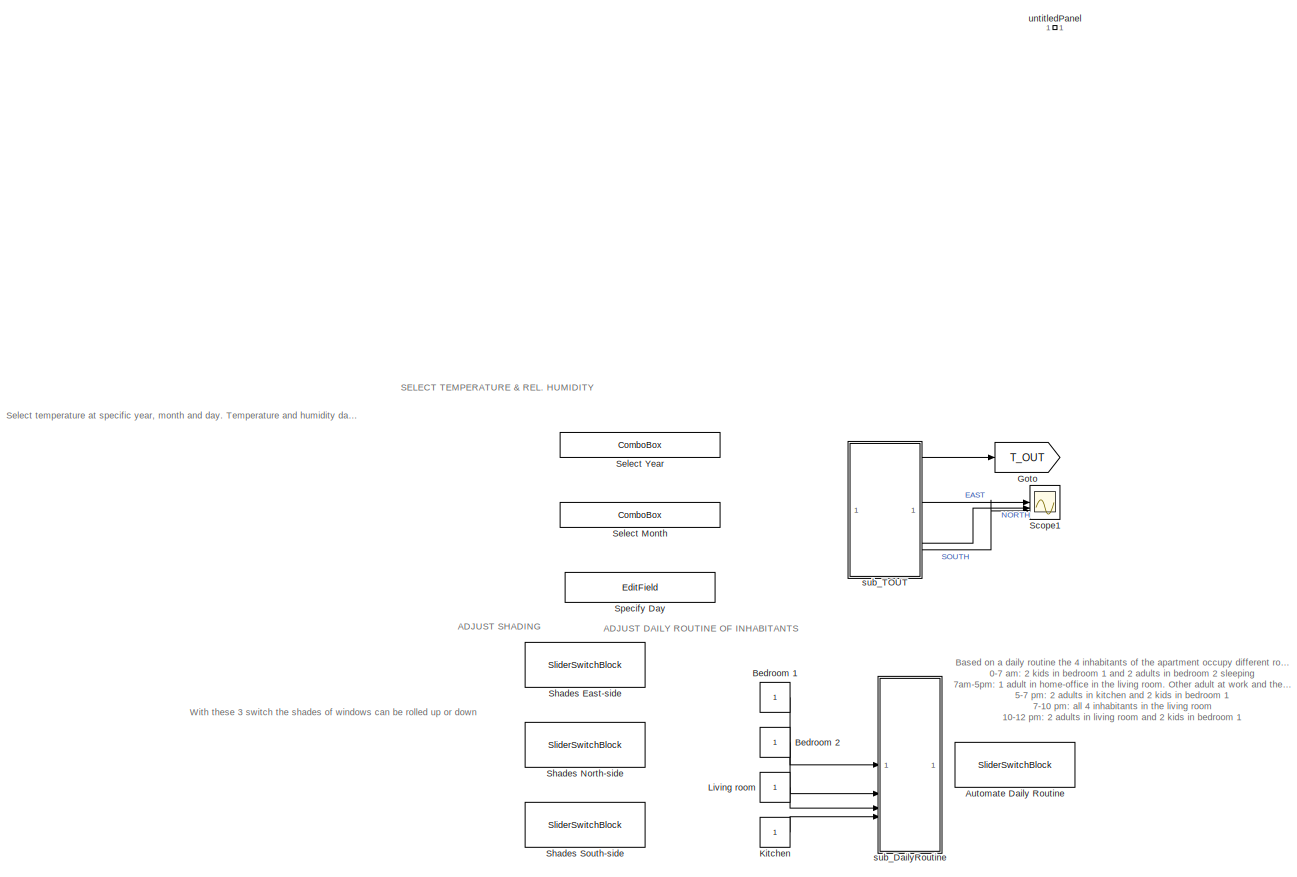
[diagram: root canvas - part 1/3, top left region]
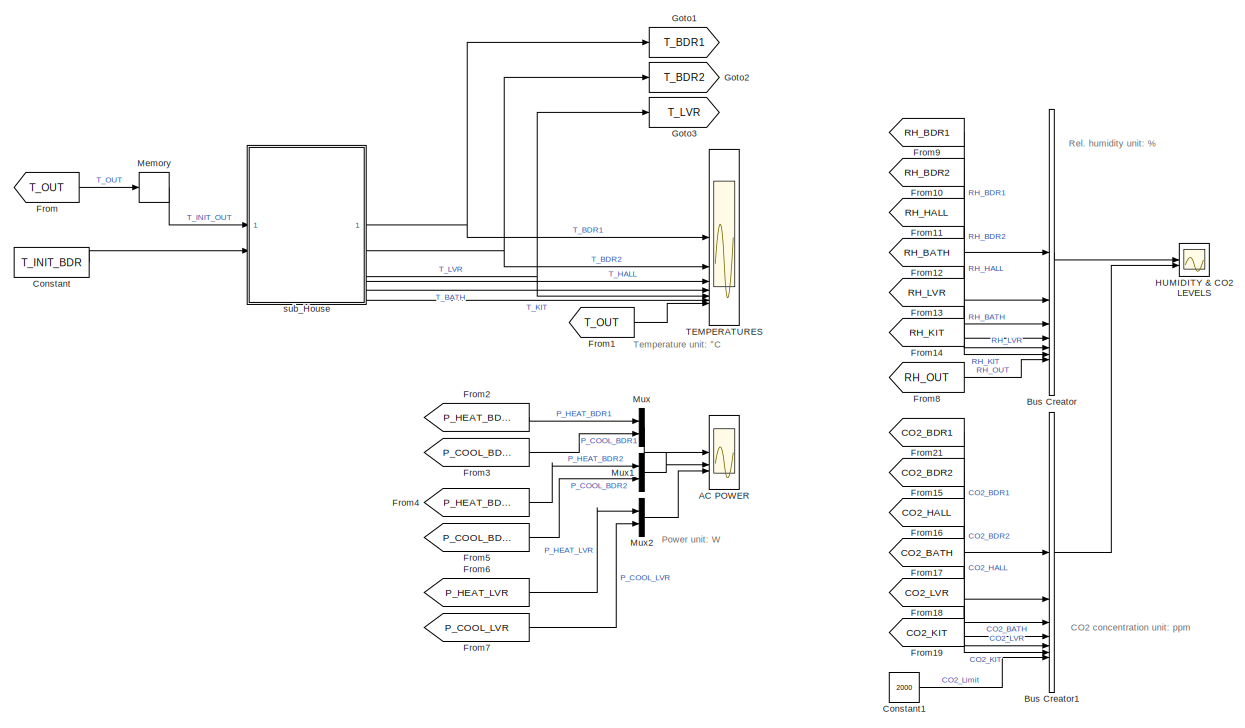
[diagram: root canvas - part 2/3, middle right region]
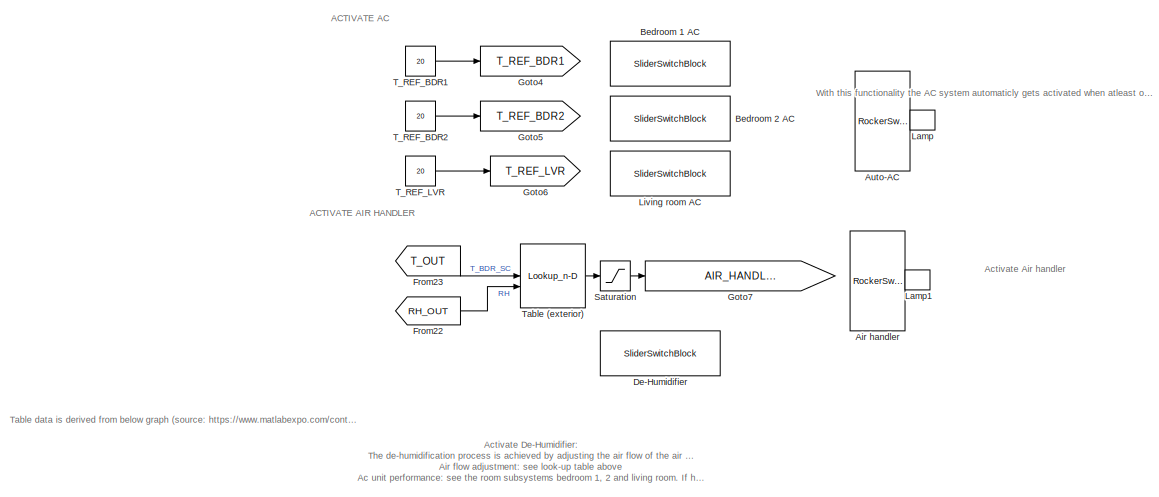
[diagram: root canvas - part 3/3, bottom left region]
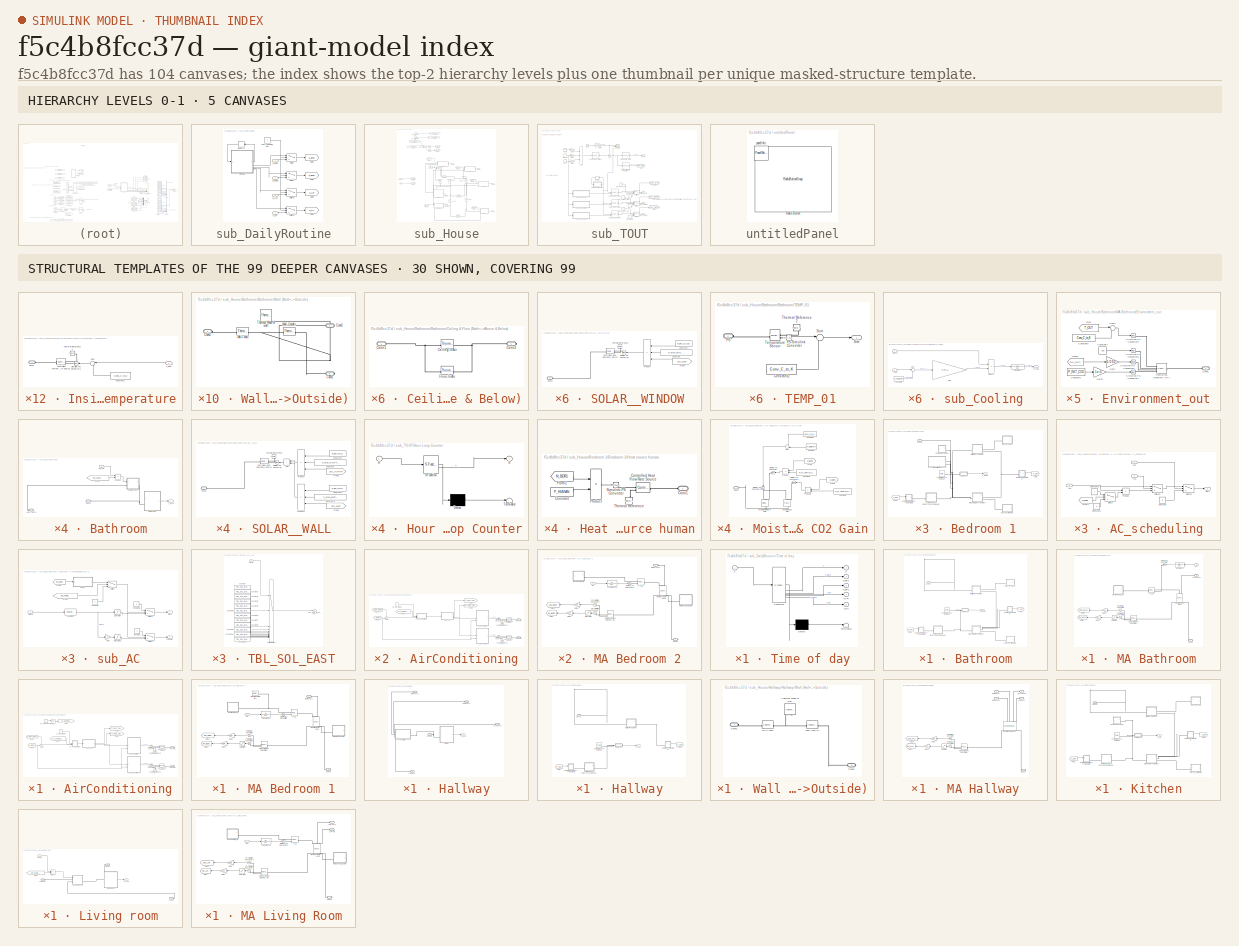
[diagram: thumbnail index - top-2 hierarchy levels (5 canvases) + 30 structural-template representatives of the remaining 99 canvases]
MODEL slx_f5c4b8fcc37d
KIND model
CONFIG AbsTol = auto
CONFIG EnableMultiTasking = off
CONFIG FixedStep = 1
CONFIG InitFcn = PARAMETERS;
CONFIG MaxStep = auto
CONFIG MinStep = auto
CONFIG RelTol = 1e-3
CONFIG SampleTimeConstraint = Unconstrained
CONFIG SolverName = ode5
CONFIG StartFcn = PARAMETERS;
CONFIG StartTime = 0.0
CONFIG StopTime = 3600*24*7
BLOCK [Scope] AC POWER
  Floating = off
  NameLocation = right
  NumInputPorts = 3
  ScopeSpecificationString = Simulink.scopes.TimeScopeBlockCfg('CurrentConfiguration', extmgr.ConfigurationSet(extmgr.Configuration('Core','General UI',true),extmgr.Configuration('Core','Source UI',true),extmgr.Configuration('Sources','WiredSimulink',true,'DataLoggingVariableName','Scope_POWER','DataLogging',true,'DataLoggingSaveFormat','StructureWithTime'),extmgr.Configuration('Visuals','Time Domain',true,'SerializedDisplays...<+2866ch>
BLOCK [RockerSwitchBlock] Air handler
  LabelPosition = Hide
BLOCK [RockerSwitchBlock] Auto-AC
  LabelPosition = Hide
BLOCK [SliderSwitchBlock] Automate Daily Routine
  LabelPosition = Hide
BLOCK [Constant] Bedroom 1
  NameLocation = left
BLOCK [SliderSwitchBlock] Bedroom 1 AC
  LabelPosition = Hide
  NameLocation = right
BLOCK [Constant] Bedroom 2
  NameLocation = left
BLOCK [SliderSwitchBlock] Bedroom 2 AC
  LabelPosition = Hide
  NameLocation = right
BLOCK [BusCreator] Bus Creator
  DisplayOption = bar
  InheritFromInputs = on
  Inputs = 7
BLOCK [BusCreator] Bus Creator1
  DisplayOption = bar
  InheritFromInputs = on
  Inputs = 7
BLOCK [Constant] Constant
  Value = T_INIT_BDR
BLOCK [Constant] Constant1
  Value = 2000
BLOCK [SliderSwitchBlock] De-Humidifier
  LabelPosition = Hide
  NameLocation = right
BLOCK [From] From
  GotoTag = T_OUT
BLOCK [From] From1
  GotoTag = T_OUT
BLOCK [From] From10
  GotoTag = RH_BDR2
  TagVisibility = global
BLOCK [From] From11
  GotoTag = RH_HALL
  TagVisibility = global
BLOCK [From] From12
  GotoTag = RH_BATH
  TagVisibility = global
BLOCK [From] From13
  GotoTag = RH_LVR
  TagVisibility = global
BLOCK [From] From14
  GotoTag = RH_KIT
  TagVisibility = global
BLOCK [From] From15
  GotoTag = CO2_BDR2
  TagVisibility = global
BLOCK [From] From16
  GotoTag = CO2_HALL
  TagVisibility = global
BLOCK [From] From17
  GotoTag = CO2_BATH
  TagVisibility = global
BLOCK [From] From18
  GotoTag = CO2_LVR
  TagVisibility = global
BLOCK [From] From19
  GotoTag = CO2_KIT
  TagVisibility = global
BLOCK [From] From2
  GotoTag = P_HEAT_BDR1
  TagVisibility = global
BLOCK [From] From21
  GotoTag = CO2_BDR1
  TagVisibility = global
BLOCK [From] From22
  GotoTag = RH_OUT
  TagVisibility = global
BLOCK [From] From23
  GotoTag = T_OUT
BLOCK [From] From3
  GotoTag = P_COOL_BDR1
  TagVisibility = global
BLOCK [From] From4
  GotoTag = P_HEAT_BDR2
  TagVisibility = global
BLOCK [From] From5
  GotoTag = P_COOL_BDR2
  TagVisibility = global
BLOCK [From] From6
  GotoTag = P_HEAT_LVR
  TagVisibility = global
BLOCK [From] From7
  GotoTag = P_COOL_LVR
  TagVisibility = global
BLOCK [From] From8
  GotoTag = RH_OUT
  TagVisibility = global
BLOCK [From] From9
  GotoTag = RH_BDR1
  TagVisibility = global
BLOCK [Goto] Goto
  GotoTag = T_OUT
BLOCK [Goto] Goto1
  GotoTag = T_BDR1
  TagVisibility = global
BLOCK [Goto] Goto2
  GotoTag = T_BDR2
  TagVisibility = global
BLOCK [Goto] Goto3
  GotoTag = T_LVR
  TagVisibility = global
BLOCK [Goto] Goto4
  GotoTag = T_REF_BDR1
  TagVisibility = global
BLOCK [Goto] Goto5
  GotoTag = T_REF_BDR2
  TagVisibility = global
BLOCK [Goto] Goto6
  GotoTag = T_REF_LVR
  TagVisibility = global
BLOCK [Goto] Goto7
  GotoTag = AIR_HANDLER_INTENSITY
  TagVisibility = global
BLOCK [Scope] HUMIDITY & CO2 LEVELS
  Floating = off
  NameLocation = right
  NumInputPorts = 2
  ScopeSpecificationString = Simulink.scopes.TimeScopeBlockCfg('CurrentConfiguration', extmgr.ConfigurationSet(extmgr.Configuration('Core','General UI',true),extmgr.Configuration('Core','Source UI',true),extmgr.Configuration('Sources','WiredSimulink',true,'DataLoggingVariableName','Scope_HUM_CO2','DataLogging',true,'DataLoggingSaveFormat','StructureWithTime'),extmgr.Configuration('Visuals','Time Domain',true,'SerializedDispla...<+2252ch>
BLOCK [Constant] Kitchen
  NameLocation = left
BLOCK [LampBlock] Lamp
  LabelPosition = Hide
BLOCK [LampBlock] Lamp1
  LabelPosition = Hide
BLOCK [Constant] Living room
  NameLocation = left
BLOCK [SliderSwitchBlock] Living room AC
  LabelPosition = Hide
  NameLocation = right
BLOCK [Memory] Memory
  InitialCondition = T_INIT_OUT
BLOCK [Mux] Mux
  DisplayOption = bar
  Inputs = 2
BLOCK [Mux] Mux1
  DisplayOption = bar
  Inputs = 2
BLOCK [Mux] Mux2
  DisplayOption = bar
  Inputs = 2
BLOCK [Saturate] Saturation
  LowerLimit = 0
  UpperLimit = inf
BLOCK [Scope] Scope1
  Floating = off
  NumInputPorts = 3
  ScopeSpecificationString = Simulink.scopes.TimeScopeBlockCfg('CurrentConfiguration', extmgr.ConfigurationSet(extmgr.Configuration('Core','General UI',true),extmgr.Configuration('Core','Source UI',true),extmgr.Configuration('Sources','WiredSimulink',true,'DataLoggingVariableName','ScopeData1'),extmgr.Configuration('Visuals','Time Domain',true,'SerializedDisplays',{struct('MinYLimReal','-34.945','MaxYLimReal','314.505','YLabe...<+1446ch>
BLOCK [ComboBox] Select Month
  LabelPosition = Hide
  NameLocation = top
  SelectedLabel = July
BLOCK [ComboBox] Select Year
  LabelPosition = Hide
  NameLocation = top
  SelectedLabel = 2023
BLOCK [SliderSwitchBlock] Shades East-side
  LabelPosition = Hide
BLOCK [SliderSwitchBlock] Shades North-side
  LabelPosition = Hide
BLOCK [SliderSwitchBlock] Shades South-side
  LabelPosition = Hide
BLOCK [EditField] Specify Day
  Alignment = Center
  LabelPosition = Hide
  NameLocation = top
  ShowInitialText = on
BLOCK [Scope] TEMPERATURES
  Floating = off
  NameLocation = right
  NumInputPorts = 7
  ScopeSpecificationString = Simulink.scopes.TimeScopeBlockCfg('CurrentConfiguration', extmgr.ConfigurationSet(extmgr.Configuration('Core','General UI',true),extmgr.Configuration('Core','Source UI',true),extmgr.Configuration('Sources','WiredSimulink',true,'DataLoggingVariableName','Scope_TEMP','DataLogging',true,'DataLoggingSaveFormat','StructureWithTime'),extmgr.Configuration('Visuals','Time Domain',true,'SerializedDisplays'...<+1796ch>
BLOCK [Constant] T_REF_BDR1
  Value = 20
BLOCK [Constant] T_REF_BDR2
  Value = 20
BLOCK [Constant] T_REF_LVR
  Value = 20
BLOCK [Lookup_n-D] Table (exterior)
  BreakpointsForDimension1 = [16;19;24;24.5]
  BreakpointsForDimension2 = [20;25;58;82]
  ExtrapMethod = Clip
  InputPortMap = u0,u1
  InternalRulePriority = Speed
  RndMeth = Simplest
  Table = [0.5 0.5 0.5 0.5;0.5 1 1 0.5;0.5 1 1 0.5;0.5 0.5 0.5 0.5]
BLOCK [SubSystem] sub_DailyRoutine
BLOCK [Constant] sub_DailyRoutine/DAILY_ROUTINE_ON
BLOCK [Goto] sub_DailyRoutine/Goto1
  GotoTag = N_BDR1
  TagVisibility = global
BLOCK [Goto] sub_DailyRoutine/Goto2
  GotoTag = N_BDR2
  TagVisibility = global
BLOCK [Goto] sub_DailyRoutine/Goto3
  GotoTag = N_LVR
  TagVisibility = global
BLOCK [Goto] sub_DailyRoutine/Goto4
  GotoTag = N_KIT
  TagVisibility = global
BLOCK [Memory] sub_DailyRoutine/Memory1
BLOCK [Inport] sub_DailyRoutine/N_BDR1
BLOCK [Inport] sub_DailyRoutine/N_BDR2
  Port = 2
BLOCK [Inport] sub_DailyRoutine/N_KIT
  Port = 4
BLOCK [Inport] sub_DailyRoutine/N_LVR
  Port = 3
BLOCK [Switch] sub_DailyRoutine/Switch
  Criteria = u2 > Threshold
  InputSameDT = off
  SaturateOnIntegerOverflow = off
BLOCK [Switch] sub_DailyRoutine/Switch1
  Criteria = u2 > Threshold
  InputSameDT = off
  SaturateOnIntegerOverflow = off
BLOCK [Switch] sub_DailyRoutine/Switch2
  Criteria = u2 > Threshold
  InputSameDT = off
  SaturateOnIntegerOverflow = off
BLOCK [Switch] sub_DailyRoutine/Switch3
  Criteria = u2 > Threshold
  InputSameDT = off
  SaturateOnIntegerOverflow = off
BLOCK [SubSystem] sub_DailyRoutine/Time of day
  ErrorFcn = Stateflow.Translate.translate
  PermitHierarchicalResolution = ExplicitOnly
  SFBlockType = MATLAB Function
  TreatAsAtomicUnit = on
BLOCK [Demux] sub_DailyRoutine/Time of day/ Demux 
  Outputs = 1
BLOCK [S-Function] sub_DailyRoutine/Time of day/ SFunction 
  EnableBusSupport = on
  FunctionName = sf_sfun
  PortCounts = [1 6]
  SFcnIsStateOwnerBlock = off
  SFunctionDeploymentMode = off
  Tag = Stateflow S-Function 3
BLOCK [Terminator] sub_DailyRoutine/Time of day/ Terminator 
BLOCK [Outport] sub_DailyRoutine/Time of day/h
BLOCK [Inport] sub_DailyRoutine/Time of day/h 
BLOCK [Outport] sub_DailyRoutine/Time of day/n_bdr1
  Port = 2
BLOCK [Outport] sub_DailyRoutine/Time of day/n_bdr2
  Port = 3
BLOCK [Outport] sub_DailyRoutine/Time of day/n_kit
  Port = 5
BLOCK [Outport] sub_DailyRoutine/Time of day/n_lvr
  Port = 4
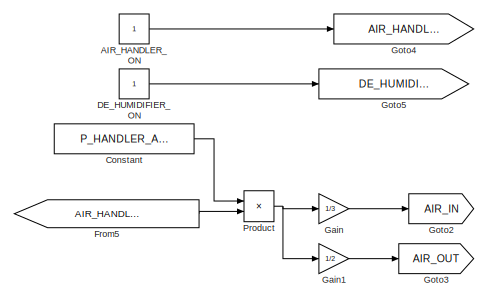
[diagram: sub_House - part 1/2, top left region]
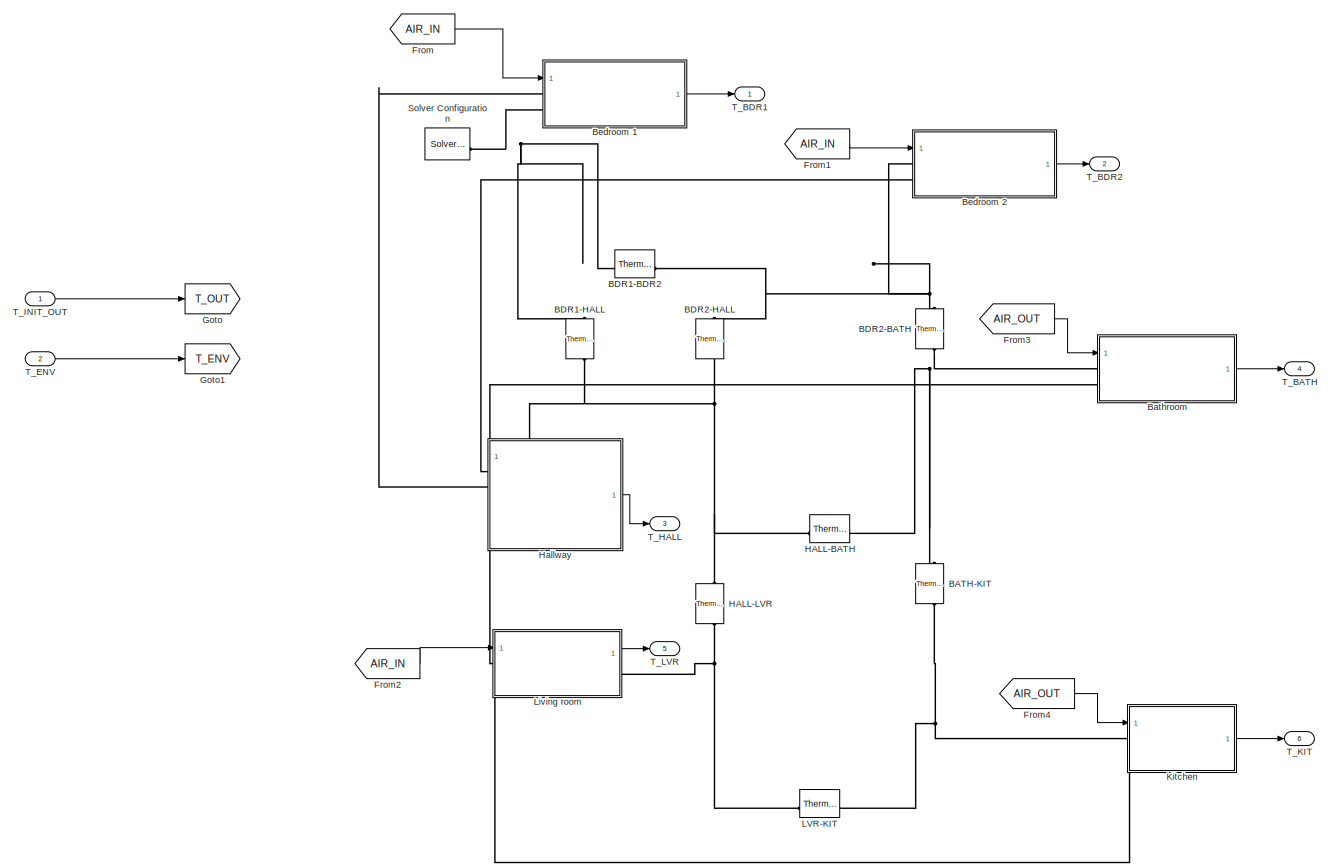
[diagram: sub_House - part 2/2, full width, middle band]
BLOCK [SubSystem] sub_House
BLOCK [Constant] sub_House/AIR_HANDLER_ON
  NameLocation = left
BLOCK [Reference] sub_House/BATH-KIT  REF=fl_lib/Thermal/Thermal Elements/Thermal Resistance
  NameLocation = right
  SourceBlock = fl_lib/Thermal/Thermal Elements/Thermal Resistance
  SourceType = Thermal Resistance
BLOCK [Reference] sub_House/BDR1-BDR2  REF=fl_lib/Thermal/Thermal Elements/Thermal Resistance
  SourceBlock = fl_lib/Thermal/Thermal Elements/Thermal Resistance
  SourceType = Thermal Resistance
BLOCK [Reference] sub_House/BDR1-HALL  REF=fl_lib/Thermal/Thermal Elements/Thermal Resistance
  NameLocation = left
  SourceBlock = fl_lib/Thermal/Thermal Elements/Thermal Resistance
  SourceType = Thermal Resistance
BLOCK [Reference] sub_House/BDR2-BATH  REF=fl_lib/Thermal/Thermal Elements/Thermal Resistance
  NameLocation = left
  SourceBlock = fl_lib/Thermal/Thermal Elements/Thermal Resistance
  SourceType = Thermal Resistance
BLOCK [Reference] sub_House/BDR2-HALL  REF=fl_lib/Thermal/Thermal Elements/Thermal Resistance
  NameLocation = left
  SourceBlock = fl_lib/Thermal/Thermal Elements/Thermal Resistance
  SourceType = Thermal Resistance
BLOCK [SubSystem] sub_House/Bathroom
BLOCK [Inport] sub_House/Bathroom/AIR_OUT
BLOCK [SubSystem] sub_House/Bathroom/Bathroom
BLOCK [SubSystem] sub_House/Bathroom/Bathroom/Ceiling & Floor (Bath<->Above & Below)
BLOCK [Reference] sub_House/Bathroom/Bathroom/Ceiling & Floor (Bath<->Above & Below)/Ceiling-InAir  REF=fl_lib/Thermal/Thermal Elements/Thermal Resistance
  SourceBlock = fl_lib/Thermal/Thermal Elements/Thermal Resistance
  SourceType = Thermal Resistance
BLOCK [PMIOPort] sub_House/Bathroom/Bathroom/Ceiling & Floor (Bath<->Above & Below)/Conn1
  Side = Left
BLOCK [PMIOPort] sub_House/Bathroom/Bathroom/Ceiling & Floor (Bath<->Above & Below)/Conn2
  Port = 2
  Side = Right
BLOCK [Reference] sub_House/Bathroom/Bathroom/Ceiling & Floor (Bath<->Above & Below)/Floor-InAir  REF=fl_lib/Thermal/Thermal Elements/Thermal Resistance
  SourceBlock = fl_lib/Thermal/Thermal Elements/Thermal Resistance
  SourceType = Thermal Resistance
BLOCK [PMIOPort] sub_House/Bathroom/Bathroom/Conn1
  Side = Left
BLOCK [From] sub_House/Bathroom/Bathroom/From
  GotoTag = T_OUT
  TagVisibility = global
BLOCK [From] sub_House/Bathroom/Bathroom/From1
  GotoTag = T_ENV
  NameLocation = top
  TagVisibility = global
BLOCK [SubSystem] sub_House/Bathroom/Bathroom/Inside Enivornment Temperature
  PortSchema = {"entries":[{"content":{"sides":[{"content":{"connectorIds":["LConn1"]},"type":"ConnectorPlacement.EquallySpacedRectSide","uuid":"d7207a88-d4d1-4eb1-8525-bfbf38cfed80"},{"content":{"connectorIds":["In1"],"side":"RIGHT"},"type":"ConnectorPlacement.EquallySpacedRectSide","uuid":"a5beddf3-616c-4e89-970e-855bf6dc3854"},{"content":{"side":"TOP"},"type":"ConnectorPlacement.EquallySpacedRectSide","uuid":...<+224ch>  <repeated x12 — deduplicated; at blocks: Inside Enivornment Temperature, Outside Temperature>
BLOCK [PMIOPort] sub_House/Bathroom/Bathroom/Inside Enivornment Temperature/Conn1
  Side = Left
BLOCK [Constant] sub_House/Bathroom/Bathroom/Inside Enivornment Temperature/Constant2
  NameLocation = top
  Value = Conv_C_to_K
BLOCK [Reference] sub_House/Bathroom/Bathroom/Inside Enivornment Temperature/Controlled Temperature Source  REF=fl_lib/Thermal/Thermal Sources/Controlled
Temperature Source
  NameLocation = top
  SourceBlock = fl_lib/Thermal/Thermal Sources/Controlled\nTemperature Source
  SourceType = Controlled\nTemperature Source
BLOCK [Reference] sub_House/Bathroom/Bathroom/Inside Enivornment Temperature/Simulink-PS Converter1  REF=nesl_utility/Simulink-PS
Converter
  NameLocation = top
  SourceBlock = nesl_utility/Simulink-PS\nConverter
  SourceType = Simulink-PS\nConverter
BLOCK [Sum] sub_House/Bathroom/Bathroom/Inside Enivornment Temperature/Sum
  Inputs = |++
  NameLocation = top
BLOCK [Inport] sub_House/Bathroom/Bathroom/Inside Enivornment Temperature/T_ENV
BLOCK [Reference] sub_House/Bathroom/Bathroom/Inside Enivornment Temperature/Thermal Reference1  REF=fl_lib/Thermal/Thermal Elements/Thermal Reference
  NameLocation = top
  SourceBlock = fl_lib/Thermal/Thermal Elements/Thermal Reference
  SourceType = Thermal Reference
BLOCK [SubSystem] sub_House/Bathroom/Bathroom/Outside Temperature
BLOCK [PMIOPort] sub_House/Bathroom/Bathroom/Outside Temperature/Conn1
  Side = Left
BLOCK [Constant] sub_House/Bathroom/Bathroom/Outside Temperature/Constant2
  NameLocation = top
  Value = Conv_C_to_K
BLOCK [Reference] sub_House/Bathroom/Bathroom/Outside Temperature/Controlled Temperature Source  REF=fl_lib/Thermal/Thermal Sources/Controlled
Temperature Source
  NameLocation = top
  SourceBlock = fl_lib/Thermal/Thermal Sources/Controlled\nTemperature Source
  SourceType = Controlled\nTemperature Source
BLOCK [Reference] sub_House/Bathroom/Bathroom/Outside Temperature/Simulink-PS Converter1  REF=nesl_utility/Simulink-PS
Converter
  NameLocation = top
  SourceBlock = nesl_utility/Simulink-PS\nConverter
  SourceType = Simulink-PS\nConverter
BLOCK [Sum] sub_House/Bathroom/Bathroom/Outside Temperature/Sum
  Inputs = |++
  NameLocation = top
BLOCK [Inport] sub_House/Bathroom/Bathroom/Outside Temperature/T_OUT
BLOCK [Reference] sub_House/Bathroom/Bathroom/Outside Temperature/Thermal Reference1  REF=fl_lib/Thermal/Thermal Elements/Thermal Reference
  NameLocation = top
  SourceBlock = fl_lib/Thermal/Thermal Elements/Thermal Reference
  SourceType = Thermal Reference
BLOCK [SubSystem] sub_House/Bathroom/Bathroom/SOLAR__WALL
BLOCK [Sum] sub_House/Bathroom/Bathroom/SOLAR__WALL/Add
  IconShape = rectangular
  NameLocation = top
BLOCK [PMIOPort] sub_House/Bathroom/Bathroom/SOLAR__WALL/Conn1
  Side = Left
BLOCK [Constant] sub_House/Bathroom/Bathroom/SOLAR__WALL/Constant
  NameLocation = top
  Value = P_AREA_NORTH_WALL_BATH
BLOCK [Constant] sub_House/Bathroom/Bathroom/SOLAR__WALL/Constant1
  NameLocation = top
  Value = P_EM_WALL
BLOCK [Constant] sub_House/Bathroom/Bathroom/SOLAR__WALL/Constant2
  NameLocation = top
  Value = P_AREA_EAST_WALL_BATH
BLOCK [Constant] sub_House/Bathroom/Bathroom/SOLAR__WALL/Constant3
  NameLocation = top
  Value = P_EM_WALL
BLOCK [Reference] sub_House/Bathroom/Bathroom/SOLAR__WALL/Controlled Heat Flow Rate Source  REF=fl_lib/Thermal/Thermal Sources/Controlled Heat Flow
Rate Source
  NameLocation = top
  SourceBlock = fl_lib/Thermal/Thermal Sources/Controlled Heat Flow\nRate Source
  SourceType = Controlled Heat Flow\nRate Source
BLOCK [From] sub_House/Bathroom/Bathroom/SOLAR__WALL/From1
  GotoTag = SOL_EAST
  NameLocation = top
  TagVisibility = global
BLOCK [From] sub_House/Bathroom/Bathroom/SOLAR__WALL/From2
  GotoTag = SOL_NORTH
  NameLocation = top
  TagVisibility = global
BLOCK [Product] sub_House/Bathroom/Bathroom/SOLAR__WALL/Product
  Inputs = 3
  NameLocation = top
BLOCK [Product] sub_House/Bathroom/Bathroom/SOLAR__WALL/Product1
  Inputs = 3
  NameLocation = top
BLOCK [Reference] sub_House/Bathroom/Bathroom/SOLAR__WALL/Simulink-PS Converter  REF=nesl_utility/Simulink-PS
Converter
  NameLocation = top
  SourceBlock = nesl_utility/Simulink-PS\nConverter
  SourceType = Simulink-PS\nConverter
BLOCK [Reference] sub_House/Bathroom/Bathroom/SOLAR__WALL/Thermal Reference  REF=fl_lib/Thermal/Thermal Elements/Thermal Reference
  NameLocation = left
  SourceBlock = fl_lib/Thermal/Thermal Elements/Thermal Reference
  SourceType = Thermal Reference
BLOCK [SubSystem] sub_House/Bathroom/Bathroom/SOLAR__WINDOW
BLOCK [PMIOPort] sub_House/Bathroom/Bathroom/SOLAR__WINDOW/Conn1
  Side = Left
BLOCK [Constant] sub_House/Bathroom/Bathroom/SOLAR__WINDOW/Constant
  NameLocation = top
  Value = P_AREA_WIN_BATH
BLOCK [Constant] sub_House/Bathroom/Bathroom/SOLAR__WINDOW/Constant1
  NameLocation = top
  Value = P_EM_GLASS
BLOCK [Reference] sub_House/Bathroom/Bathroom/SOLAR__WINDOW/Controlled Heat Flow Rate Source  REF=fl_lib/Thermal/Thermal Sources/Controlled Heat Flow
Rate Source
  NameLocation = top
  SourceBlock = fl_lib/Thermal/Thermal Sources/Controlled Heat Flow\nRate Source
  SourceType = Controlled Heat Flow\nRate Source
BLOCK [From] sub_House/Bathroom/Bathroom/SOLAR__WINDOW/From2
  GotoTag = SOL_EAST
  NameLocation = top
  TagVisibility = global
BLOCK [Product] sub_House/Bathroom/Bathroom/SOLAR__WINDOW/Product
  Inputs = 3
  NameLocation = top
BLOCK [Reference] sub_House/Bathroom/Bathroom/SOLAR__WINDOW/Simulink-PS Converter  REF=nesl_utility/Simulink-PS
Converter
  NameLocation = top
  SourceBlock = nesl_utility/Simulink-PS\nConverter
  SourceType = Simulink-PS\nConverter
BLOCK [Reference] sub_House/Bathroom/Bathroom/SOLAR__WINDOW/Thermal Reference  REF=fl_lib/Thermal/Thermal Elements/Thermal Reference
  NameLocation = left
  SourceBlock = fl_lib/Thermal/Thermal Elements/Thermal Reference
  SourceType = Thermal Reference
BLOCK [SubSystem] sub_House/Bathroom/Bathroom/TEMP_01
BLOCK [Constant] sub_House/Bathroom/Bathroom/TEMP_01/Constant2
  Value = Conv_C_to_K
BLOCK [PMIOPort] sub_House/Bathroom/Bathroom/TEMP_01/PS
  Side = Left
BLOCK [Reference] sub_House/Bathroom/Bathroom/TEMP_01/PS-Simulink Converter  REF=nesl_utility/PS-Simulink
Converter
  SourceBlock = nesl_utility/PS-Simulink\nConverter
  SourceType = PS-Simulink\nConverter
BLOCK [Outport] sub_House/Bathroom/Bathroom/TEMP_01/Sim
BLOCK [Sum] sub_House/Bathroom/Bathroom/TEMP_01/Sum
  Inputs = |+-
BLOCK [Reference] sub_House/Bathroom/Bathroom/TEMP_01/Temperature Sensor  REF=fl_lib/Thermal/Thermal Sensors/Temperature Sensor
  SourceBlock = fl_lib/Thermal/Thermal Sensors/Temperature Sensor
  SourceType = Temperature Sensor
BLOCK [Reference] sub_House/Bathroom/Bathroom/TEMP_01/Thermal Reference2  REF=fl_lib/Thermal/Thermal Elements/Thermal Reference
  NameLocation = top
  SourceBlock = fl_lib/Thermal/Thermal Elements/Thermal Reference
  SourceType = Thermal Reference
BLOCK [Outport] sub_House/Bathroom/Bathroom/T_BATH
BLOCK [Reference] sub_House/Bathroom/Bathroom/Thermal Mass of inside air  REF=fl_lib/Thermal/Thermal Elements/Thermal Mass
  NameLocation = left
  SourceBlock = fl_lib/Thermal/Thermal Elements/Thermal Mass
  SourceType = Thermal Mass
BLOCK [SubSystem] sub_House/Bathroom/Bathroom/Wall (Bath<->Outside)
BLOCK [PMIOPort] sub_House/Bathroom/Bathroom/Wall (Bath<->Outside)/Conn1
  Side = Left
BLOCK [PMIOPort] sub_House/Bathroom/Bathroom/Wall (Bath<->Outside)/Conn2
  Port = 3
  Side = Right
BLOCK [PMIOPort] sub_House/Bathroom/Bathroom/Wall (Bath<->Outside)/Conn3
  Port = 2
  Side = Right
BLOCK [Reference] sub_House/Bathroom/Bathroom/Wall (Bath<->Outside)/InAir-Wall  REF=fl_lib/Thermal/Thermal Elements/Thermal Resistance
  SourceBlock = fl_lib/Thermal/Thermal Elements/Thermal Resistance
  SourceType = Thermal Resistance
BLOCK [Reference] sub_House/Bathroom/Bathroom/Wall (Bath<->Outside)/Thermal Mass of wall  REF=fl_lib/Thermal/Thermal Elements/Thermal Mass
  NameLocation = top
  SourceBlock = fl_lib/Thermal/Thermal Elements/Thermal Mass
  SourceType = Thermal Mass
BLOCK [Reference] sub_House/Bathroom/Bathroom/Wall (Bath<->Outside)/Wall-OutAir  REF=fl_lib/Thermal/Thermal Elements/Thermal Resistance
  SourceBlock = fl_lib/Thermal/Thermal Elements/Thermal Resistance
  SourceType = Thermal Resistance
BLOCK [SubSystem] sub_House/Bathroom/Bathroom/Window (Bath<->Outside)
BLOCK [PMIOPort] sub_House/Bathroom/Bathroom/Window (Bath<->Outside)/Conn1
  Side = Right
BLOCK [PMIOPort] sub_House/Bathroom/Bathroom/Window (Bath<->Outside)/Conn2
  Port = 2
  Side = Left
BLOCK [PMIOPort] sub_House/Bathroom/Bathroom/Window (Bath<->Outside)/Conn3
  Port = 3
  Side = Right
BLOCK [Reference] sub_House/Bathroom/Bathroom/Window (Bath<->Outside)/InAir-Window  REF=fl_lib/Thermal/Thermal Elements/Thermal Resistance
  SourceBlock = fl_lib/Thermal/Thermal Elements/Thermal Resistance
  SourceType = Thermal Resistance
BLOCK [Reference] sub_House/Bathroom/Bathroom/Window (Bath<->Outside)/Thermal Mass of window  REF=fl_lib/Thermal/Thermal Elements/Thermal Mass
  SourceBlock = fl_lib/Thermal/Thermal Elements/Thermal Mass
  SourceType = Thermal Mass
BLOCK [Reference] sub_House/Bathroom/Bathroom/Window (Bath<->Outside)/Window-OutAir  REF=fl_lib/Thermal/Thermal Elements/Thermal Resistance
  SourceBlock = fl_lib/Thermal/Thermal Elements/Thermal Resistance
  SourceType = Thermal Resistance
BLOCK [PMIOPort] sub_House/Bathroom/Conn1
  Side = Left
BLOCK [From] sub_House/Bathroom/From
  GotoTag = AIR_HANDLER_ON
  TagVisibility = global
BLOCK [PMIOPort] sub_House/Bathroom/HALL-BATH
  Port = 2
  Side = Left
BLOCK [SubSystem] sub_House/Bathroom/MA Bathroom
BLOCK [PMIOPort] sub_House/Bathroom/MA Bathroom/Conn4
  Port = 2
  Side = Right
BLOCK [SubSystem] sub_House/Bathroom/MA Bathroom/Environment_out
BLOCK [PMIOPort] sub_House/Bathroom/MA Bathroom/Environment_out/Conn1
  Side = Left
BLOCK [Constant] sub_House/Bathroom/MA Bathroom/Environment_out/Constant1
  Value = P_INIT_CO2
BLOCK [Constant] sub_House/Bathroom/MA Bathroom/Environment_out/Constant4
  Value = 1e5
BLOCK [Constant] sub_House/Bathroom/MA Bathroom/Environment_out/Constant6
  Value = Conv_C_to_K
BLOCK [Reference] sub_House/Bathroom/MA Bathroom/Environment_out/Controlled Reservoir (MA)  REF=fl_lib/Moist Air/Elements/Controlled Reservoir
(MA)
  SourceBlock = fl_lib/Moist Air/Elements/Controlled Reservoir\n(MA)
  SourceType = Controlled Reservoir\n(MA)
BLOCK [From] sub_House/Bathroom/MA Bathroom/Environment_out/From
  GotoTag = T_OUT
  TagVisibility = global
BLOCK [From] sub_House/Bathroom/MA Bathroom/Environment_out/From8
  GotoTag = RH_OUT
  TagVisibility = global
BLOCK [Gain] sub_House/Bathroom/MA Bathroom/Environment_out/Gain
  Gain = 1/100
BLOCK [Gain] sub_House/Bathroom/MA Bathroom/Environment_out/Gain2
  Gain = 1e-6
BLOCK [Reference] sub_House/Bathroom/MA Bathroom/Environment_out/Simulink-PS Converter3  REF=nesl_utility/Simulink-PS
Converter
  SourceBlock = nesl_utility/Simulink-PS\nConverter
  SourceType = Simulink-PS\nConverter
BLOCK [Reference] sub_House/Bathroom/MA Bathroom/Environment_out/Simulink-PS Converter5  REF=nesl_utility/Simulink-PS
Converter
  SourceBlock = nesl_utility/Simulink-PS\nConverter
  SourceType = Simulink-PS\nConverter
BLOCK [Reference] sub_House/Bathroom/MA Bathroom/Environment_out/Simulink-PS Converter6  REF=nesl_utility/Simulink-PS
Converter
  SourceBlock = nesl_utility/Simulink-PS\nConverter
  SourceType = Simulink-PS\nConverter
BLOCK [Reference] sub_House/Bathroom/MA Bathroom/Environment_out/Simulink-PS Converter7  REF=nesl_utility/Simulink-PS
Converter
  SourceBlock = nesl_utility/Simulink-PS\nConverter
  SourceType = Simulink-PS\nConverter
BLOCK [Sum] sub_House/Bathroom/MA Bathroom/Environment_out/Sum2
  Inputs = |++
BLOCK [Gain] sub_House/Bathroom/MA Bathroom/Gain1
  Gain = 1e6
BLOCK [Gain] sub_House/Bathroom/MA Bathroom/Gain3
  Gain = 100
BLOCK [Goto] sub_House/Bathroom/MA Bathroom/Goto1
  GotoTag = RH_BATH
  NameLocation = top
  TagVisibility = global
BLOCK [Goto] sub_House/Bathroom/MA Bathroom/Goto3
  GotoTag = CO2_BATH
  NameLocation = top
  TagVisibility = global
BLOCK [PMIOPort] sub_House/Bathroom/MA Bathroom/HALL-BATH
  Side = Left
BLOCK [Inport] sub_House/Bathroom/MA Bathroom/In1
  NameLocation = top
BLOCK [Reference] sub_House/Bathroom/MA Bathroom/Measurement Selector (MA)  REF=fl_lib/Moist Air/Sensors/Measurement Selector
(MA)
  NameLocation = top
  SourceBlock = fl_lib/Moist Air/Sensors/Measurement Selector\n(MA)
  SourceType = Measurement Selector\n(MA)
BLOCK [Reference] sub_House/Bathroom/MA Bathroom/Most air volume room  REF=fl_lib/Moist Air/Elements/Constant Volume
Chamber (MA)
  NameLocation = right
  SourceBlock = fl_lib/Moist Air/Elements/Constant Volume\nChamber (MA)
  SourceType = Constant Volume\nChamber (MA)
BLOCK [Reference] sub_House/Bathroom/MA Bathroom/PS-Simulink Converter1  REF=nesl_utility/PS-Simulink
Converter
  NameLocation = top
  SourceBlock = nesl_utility/PS-Simulink\nConverter
  SourceType = PS-Simulink\nConverter
BLOCK [Reference] sub_House/Bathroom/MA Bathroom/PS-Simulink Converter2  REF=nesl_utility/PS-Simulink
Converter
  NameLocation = top
  SourceBlock = nesl_utility/PS-Simulink\nConverter
  SourceType = PS-Simulink\nConverter
BLOCK [Reference] sub_House/Bathroom/MA Bathroom/P_OUT  REF=fl_lib/Moist Air/Sources/Flow Rate Source
(MA)
  NameLocation = top
  SourceBlock = fl_lib/Moist Air/Sources/Flow Rate Source\n(MA)
  SourceType = Flow Rate Source\n(MA)
BLOCK [Saturate] sub_House/Bathroom/MA Bathroom/Saturation
  LowerLimit = 0
  NameLocation = top
  UpperLimit = 1
BLOCK [Reference] sub_House/Bathroom/MA Bathroom/Simulink-PS Converter2  REF=nesl_utility/Simulink-PS
Converter
  NameLocation = top
  SourceBlock = nesl_utility/Simulink-PS\nConverter
  SourceType = Simulink-PS\nConverter
BLOCK [TransferFcn] sub_House/Bathroom/MA Bathroom/Transfer Fcn
  Denominator = [1 1]
  NameLocation = top
BLOCK [Product] sub_House/Bathroom/Product
BLOCK [Outport] sub_House/Bathroom/T_BATH
BLOCK [SubSystem] sub_House/Bedroom 1
BLOCK [Inport] sub_House/Bedroom 1/AIR_IN
BLOCK [PMIOPort] sub_House/Bedroom 1/BDR1-HALL
  Side = Left
BLOCK [SubSystem] sub_House/Bedroom 1/Bedroom 1
BLOCK [SubSystem] sub_House/Bedroom 1/Bedroom 1/AirConditioning
BLOCK [Constant] sub_House/Bedroom 1/Bedroom 1/AirConditioning/AC_ON_BDR1
BLOCK [Constant] sub_House/Bedroom 1/Bedroom 1/AirConditioning/AC_SCHEDULING
  Value = 0
BLOCK [SubSystem] sub_House/Bedroom 1/Bedroom 1/AirConditioning/AC_scheduling
BLOCK [Constant] sub_House/Bedroom 1/Bedroom 1/AirConditioning/AC_scheduling/Constant
  Value = 0
BLOCK [Constant] sub_House/Bedroom 1/Bedroom 1/AirConditioning/AC_scheduling/Constant1
  Value = 0
BLOCK [Constant] sub_House/Bedroom 1/Bedroom 1/AirConditioning/AC_scheduling/Constant2
BLOCK [From] sub_House/Bedroom 1/Bedroom 1/AirConditioning/AC_scheduling/From2
  GotoTag = N_BDR1
  TagVisibility = global
BLOCK [Inport] sub_House/Bedroom 1/Bedroom 1/AirConditioning/AC_scheduling/In1
BLOCK [Inport] sub_House/Bedroom 1/Bedroom 1/AirConditioning/AC_scheduling/In2
  Port = 3
BLOCK [Inport] sub_House/Bedroom 1/Bedroom 1/AirConditioning/AC_scheduling/In3
  Port = 2
BLOCK [Outport] sub_House/Bedroom 1/Bedroom 1/AirConditioning/AC_scheduling/Out1
BLOCK [Product] sub_House/Bedroom 1/Bedroom 1/AirConditioning/AC_scheduling/Product
BLOCK [Switch] sub_House/Bedroom 1/Bedroom 1/AirConditioning/AC_scheduling/Switch
  Criteria = u2 > Threshold
  InputSameDT = off
  SaturateOnIntegerOverflow = off
BLOCK [Switch] sub_House/Bedroom 1/Bedroom 1/AirConditioning/AC_scheduling/Switch1
  Criteria = u2 > Threshold
  InputSameDT = off
  SaturateOnIntegerOverflow = off
BLOCK [Switch] sub_House/Bedroom 1/Bedroom 1/AirConditioning/AC_scheduling/Switch2
  Criteria = u2 > Threshold
  InputSameDT = off
  SaturateOnIntegerOverflow = off
BLOCK [PMIOPort] sub_House/Bedroom 1/Bedroom 1/AirConditioning/COOLING
  Port = 2
  Side = Right
BLOCK [From] sub_House/Bedroom 1/Bedroom 1/AirConditioning/From
  GotoTag = T_BDR1
  TagVisibility = global
BLOCK [From] sub_House/Bedroom 1/Bedroom 1/AirConditioning/From1
  GotoTag = T_REF_BDR1
  TagVisibility = global
BLOCK [From] sub_House/Bedroom 1/Bedroom 1/AirConditioning/From2
  GotoTag = AC_SCHEDULING
  TagVisibility = global
BLOCK [Reference] sub_House/Bedroom 1/Bedroom 1/AirConditioning/Generic heat source  REF=fl_lib/Thermal/Thermal Sources/Controlled Heat Flow
Rate Source
  SourceBlock = fl_lib/Thermal/Thermal Sources/Controlled Heat Flow\nRate Source
  SourceType = Controlled Heat Flow\nRate Source
BLOCK [Reference] sub_House/Bedroom 1/Bedroom 1/AirConditioning/Generic heat source1  REF=fl_lib/Thermal/Thermal Sources/Controlled Heat Flow
Rate Source
  SourceBlock = fl_lib/Thermal/Thermal Sources/Controlled Heat Flow\nRate Source
  SourceType = Controlled Heat Flow\nRate Source
BLOCK [Goto] sub_House/Bedroom 1/Bedroom 1/AirConditioning/Goto
  GotoTag = AC_SCHEDULING
  TagVisibility = global
BLOCK [Goto] sub_House/Bedroom 1/Bedroom 1/AirConditioning/Goto1
  GotoTag = P_HEAT_BDR1
  TagVisibility = global
BLOCK [Goto] sub_House/Bedroom 1/Bedroom 1/AirConditioning/Goto2
  GotoTag = P_COOL_BDR1
  TagVisibility = global
BLOCK [PMIOPort] sub_House/Bedroom 1/Bedroom 1/AirConditioning/HEATING
  Side = Right
BLOCK [Logic] sub_House/Bedroom 1/Bedroom 1/AirConditioning/NOT
  AllPortsSameDT = off
  IconShape = distinctive
  Operator = NOT
  OutDataTypeStr = boolean
BLOCK [Reference] sub_House/Bedroom 1/Bedroom 1/AirConditioning/Simulink-PS Converter  REF=nesl_utility/Simulink-PS
Converter
  SourceBlock = nesl_utility/Simulink-PS\nConverter
  SourceType = Simulink-PS\nConverter
BLOCK [Reference] sub_House/Bedroom 1/Bedroom 1/AirConditioning/Simulink-PS Converter4  REF=nesl_utility/Simulink-PS
Converter
  SourceBlock = nesl_utility/Simulink-PS\nConverter
  SourceType = Simulink-PS\nConverter
BLOCK [Sum] sub_House/Bedroom 1/Bedroom 1/AirConditioning/Sum
  Inputs = +-|
BLOCK [Reference] sub_House/Bedroom 1/Bedroom 1/AirConditioning/Thermal Reference  REF=fl_lib/Thermal/Thermal Elements/Thermal Reference
  NameLocation = right
  SourceBlock = fl_lib/Thermal/Thermal Elements/Thermal Reference
  SourceType = Thermal Reference
BLOCK [Reference] sub_House/Bedroom 1/Bedroom 1/AirConditioning/Thermal Reference4  REF=fl_lib/Thermal/Thermal Elements/Thermal Reference
  NameLocation = right
  SourceBlock = fl_lib/Thermal/Thermal Elements/Thermal Reference
  SourceType = Thermal Reference
BLOCK [SubSystem] sub_House/Bedroom 1/Bedroom 1/AirConditioning/sub_AC
BLOCK [Reference] sub_House/Bedroom 1/Bedroom 1/AirConditioning/sub_AC/AC Unit (PI)  REF=slpidlib/PID Controller
  LibrarySourceBlock = simulink/Continuous/PID Controller
  SourceBlock = slpidlib/PID Controller
  SourceType = PID 1dof
BLOCK [Outport] sub_House/Bedroom 1/Bedroom 1/AirConditioning/sub_AC/COOLING
  Port = 2
BLOCK [SubSystem] sub_House/Bedroom 1/Bedroom 1/AirConditioning/sub_AC/Chart
  ErrorFcn = Stateflow.Translate.translate
  PermitHierarchicalResolution = ExplicitOnly
  SFBlockType = Chart
  TreatAsAtomicUnit = on
BLOCK [Demux] sub_House/Bedroom 1/Bedroom 1/AirConditioning/sub_AC/Chart/ Demux 
  Outputs = 1
BLOCK [S-Function] sub_House/Bedroom 1/Bedroom 1/AirConditioning/sub_AC/Chart/ SFunction 
  EnableBusSupport = on
  FunctionName = sf_sfun
  PortCounts = [1 2]
  SFcnIsStateOwnerBlock = off
  SFunctionDeploymentMode = off
  Tag = Stateflow S-Function 1
BLOCK [Terminator] sub_House/Bedroom 1/Bedroom 1/AirConditioning/sub_AC/Chart/ Terminator 
BLOCK [Inport] sub_House/Bedroom 1/Bedroom 1/AirConditioning/sub_AC/Chart/RH
BLOCK [Outport] sub_House/Bedroom 1/Bedroom 1/AirConditioning/sub_AC/Chart/SWITCH
BLOCK [Constant] sub_House/Bedroom 1/Bedroom 1/AirConditioning/sub_AC/Constant
  Value = 0
BLOCK [Constant] sub_House/Bedroom 1/Bedroom 1/AirConditioning/sub_AC/Constant1
  Value = 0
BLOCK [Constant] sub_House/Bedroom 1/Bedroom 1/AirConditioning/sub_AC/Constant2
  Value = 0
BLOCK [From] sub_House/Bedroom 1/Bedroom 1/AirConditioning/sub_AC/From
  GotoTag = RH_BDR1
  TagVisibility = global
BLOCK [From] sub_House/Bedroom 1/Bedroom 1/AirConditioning/sub_AC/From1
  GotoTag = DE_HUMIDIFIER_ON
  TagVisibility = global
BLOCK [Gain] sub_House/Bedroom 1/Bedroom 1/AirConditioning/sub_AC/Gain
  Gain = -1
BLOCK [Outport] sub_House/Bedroom 1/Bedroom 1/AirConditioning/sub_AC/HEAT
BLOCK [Inport] sub_House/Bedroom 1/Bedroom 1/AirConditioning/sub_AC/SWITCH
BLOCK [Saturate] sub_House/Bedroom 1/Bedroom 1/AirConditioning/sub_AC/Saturation
  LowerLimit = 0
  UpperLimit = 1
BLOCK [Saturate] sub_House/Bedroom 1/Bedroom 1/AirConditioning/sub_AC/Saturation1
  LowerLimit = 0
  UpperLimit = 1
BLOCK [Switch] sub_House/Bedroom 1/Bedroom 1/AirConditioning/sub_AC/Switch
  Criteria = u2 > Threshold
  InputSameDT = off
  SaturateOnIntegerOverflow = off
BLOCK [Switch] sub_House/Bedroom 1/Bedroom 1/AirConditioning/sub_AC/Switch1
  Criteria = u2 > Threshold
  InputSameDT = off
  SaturateOnIntegerOverflow = off
BLOCK [Switch] sub_House/Bedroom 1/Bedroom 1/AirConditioning/sub_AC/Switch2
  Criteria = u2 > Threshold
  InputSameDT = off
  SaturateOnIntegerOverflow = off
BLOCK [SubSystem] sub_House/Bedroom 1/Bedroom 1/AirConditioning/sub_Cooling
BLOCK [Constant] sub_House/Bedroom 1/Bedroom 1/AirConditioning/sub_Cooling/Constant2
  Value = T_COOLER
BLOCK [Gain] sub_House/Bedroom 1/Bedroom 1/AirConditioning/sub_Cooling/Gain
  Gain = P_CP_AIR*P_AC_AIR_FLOW
BLOCK [Outport] sub_House/Bedroom 1/Bedroom 1/AirConditioning/sub_Cooling/P_COOL
BLOCK [Product] sub_House/Bedroom 1/Bedroom 1/AirConditioning/sub_Cooling/Product
BLOCK [Inport] sub_House/Bedroom 1/Bedroom 1/AirConditioning/sub_Cooling/SWITCH
BLOCK [Sum] sub_House/Bedroom 1/Bedroom 1/AirConditioning/sub_Cooling/Sum
  Inputs = |-+
BLOCK [Inport] sub_House/Bedroom 1/Bedroom 1/AirConditioning/sub_Cooling/T_BDR
  Port = 2
BLOCK [TransferFcn] sub_House/Bedroom 1/Bedroom 1/AirConditioning/sub_Cooling/Transfer Fcn
  Denominator = [1 1]
BLOCK [SubSystem] sub_House/Bedroom 1/Bedroom 1/AirConditioning/sub_Heating
BLOCK [Constant] sub_House/Bedroom 1/Bedroom 1/AirConditioning/sub_Heating/Constant2
  Value = T_HEATER
BLOCK [Gain] sub_House/Bedroom 1/Bedroom 1/AirConditioning/sub_Heating/Gain
  Gain = P_CP_AIR*P_AC_AIR_FLOW
BLOCK [Outport] sub_House/Bedroom 1/Bedroom 1/AirConditioning/sub_Heating/P_HEAT
BLOCK [Product] sub_House/Bedroom 1/Bedroom 1/AirConditioning/sub_Heating/Product
BLOCK [Inport] sub_House/Bedroom 1/Bedroom 1/AirConditioning/sub_Heating/SWITCH
BLOCK [Sum] sub_House/Bedroom 1/Bedroom 1/AirConditioning/sub_Heating/Sum
  Inputs = |-+
BLOCK [Inport] sub_House/Bedroom 1/Bedroom 1/AirConditioning/sub_Heating/T_BDR
  Port = 2
BLOCK [TransferFcn] sub_House/Bedroom 1/Bedroom 1/AirConditioning/sub_Heating/Transfer Fcn
  Denominator = [1 1]
BLOCK [SubSystem] sub_House/Bedroom 1/Bedroom 1/Ceiling & Floor (BDR1<->Above & Below)
BLOCK [Reference] sub_House/Bedroom 1/Bedroom 1/Ceiling & Floor (BDR1<->Above & Below)/Ceiling-InAir  REF=fl_lib/Thermal/Thermal Elements/Thermal Resistance
  SourceBlock = fl_lib/Thermal/Thermal Elements/Thermal Resistance
  SourceType = Thermal Resistance
BLOCK [PMIOPort] sub_House/Bedroom 1/Bedroom 1/Ceiling & Floor (BDR1<->Above & Below)/Conn1
  Side = Left
BLOCK [PMIOPort] sub_House/Bedroom 1/Bedroom 1/Ceiling & Floor (BDR1<->Above & Below)/Conn2
  Port = 2
  Side = Right
BLOCK [Reference] sub_House/Bedroom 1/Bedroom 1/Ceiling & Floor (BDR1<->Above & Below)/Floor-InAir  REF=fl_lib/Thermal/Thermal Elements/Thermal Resistance
  SourceBlock = fl_lib/Thermal/Thermal Elements/Thermal Resistance
  SourceType = Thermal Resistance
BLOCK [PMIOPort] sub_House/Bedroom 1/Bedroom 1/Conn1
  Side = Left
BLOCK [From] sub_House/Bedroom 1/Bedroom 1/From
  GotoTag = T_OUT
  TagVisibility = global
BLOCK [From] sub_House/Bedroom 1/Bedroom 1/From1
  GotoTag = T_ENV
  NameLocation = top
  TagVisibility = global
BLOCK [SubSystem] sub_House/Bedroom 1/Bedroom 1/Heat source human
BLOCK [PMIOPort] sub_House/Bedroom 1/Bedroom 1/Heat source human/Conn1
  Side = Left
BLOCK [Constant] sub_House/Bedroom 1/Bedroom 1/Heat source human/Constant
  Value = P_HUMAN
BLOCK [Reference] sub_House/Bedroom 1/Bedroom 1/Heat source human/Controlled Heat Flow Rate Source  REF=fl_lib/Thermal/Thermal Sources/Controlled Heat Flow
Rate Source
  SourceBlock = fl_lib/Thermal/Thermal Sources/Controlled Heat Flow\nRate Source
  SourceType = Controlled Heat Flow\nRate Source
BLOCK [From] sub_House/Bedroom 1/Bedroom 1/Heat source human/From2
  GotoTag = N_BDR1
  TagVisibility = global
BLOCK [Product] sub_House/Bedroom 1/Bedroom 1/Heat source human/Product
BLOCK [Reference] sub_House/Bedroom 1/Bedroom 1/Heat source human/Simulink-PS Converter  REF=nesl_utility/Simulink-PS
Converter
  SourceBlock = nesl_utility/Simulink-PS\nConverter
  SourceType = Simulink-PS\nConverter
BLOCK [Reference] sub_House/Bedroom 1/Bedroom 1/Heat source human/Thermal Reference  REF=fl_lib/Thermal/Thermal Elements/Thermal Reference
  NameLocation = right
  SourceBlock = fl_lib/Thermal/Thermal Elements/Thermal Reference
  SourceType = Thermal Reference
BLOCK [SubSystem] sub_House/Bedroom 1/Bedroom 1/Inside Enivornment Temperature
BLOCK [PMIOPort] sub_House/Bedroom 1/Bedroom 1/Inside Enivornment Temperature/Conn1
  Side = Left
BLOCK [Constant] sub_House/Bedroom 1/Bedroom 1/Inside Enivornment Temperature/Constant2
  NameLocation = top
  Value = Conv_C_to_K
BLOCK [Reference] sub_House/Bedroom 1/Bedroom 1/Inside Enivornment Temperature/Controlled Temperature Source  REF=fl_lib/Thermal/Thermal Sources/Controlled
Temperature Source
  NameLocation = top
  SourceBlock = fl_lib/Thermal/Thermal Sources/Controlled\nTemperature Source
  SourceType = Controlled\nTemperature Source
BLOCK [Reference] sub_House/Bedroom 1/Bedroom 1/Inside Enivornment Temperature/Simulink-PS Converter1  REF=nesl_utility/Simulink-PS
Converter
  NameLocation = top
  SourceBlock = nesl_utility/Simulink-PS\nConverter
  SourceType = Simulink-PS\nConverter
BLOCK [Sum] sub_House/Bedroom 1/Bedroom 1/Inside Enivornment Temperature/Sum
  Inputs = |++
  NameLocation = top
BLOCK [Inport] sub_House/Bedroom 1/Bedroom 1/Inside Enivornment Temperature/T_ENV
BLOCK [Reference] sub_House/Bedroom 1/Bedroom 1/Inside Enivornment Temperature/Thermal Reference1  REF=fl_lib/Thermal/Thermal Elements/Thermal Reference
  NameLocation = top
  SourceBlock = fl_lib/Thermal/Thermal Elements/Thermal Reference
  SourceType = Thermal Reference
BLOCK [SubSystem] sub_House/Bedroom 1/Bedroom 1/Outside Temperature
BLOCK [PMIOPort] sub_House/Bedroom 1/Bedroom 1/Outside Temperature/Conn1
  Side = Left
BLOCK [Constant] sub_House/Bedroom 1/Bedroom 1/Outside Temperature/Constant2
  NameLocation = top
  Value = Conv_C_to_K
BLOCK [Reference] sub_House/Bedroom 1/Bedroom 1/Outside Temperature/Controlled Temperature Source  REF=fl_lib/Thermal/Thermal Sources/Controlled
Temperature Source
  NameLocation = top
  SourceBlock = fl_lib/Thermal/Thermal Sources/Controlled\nTemperature Source
  SourceType = Controlled\nTemperature Source
BLOCK [Reference] sub_House/Bedroom 1/Bedroom 1/Outside Temperature/Simulink-PS Converter1  REF=nesl_utility/Simulink-PS
Converter
  NameLocation = top
  SourceBlock = nesl_utility/Simulink-PS\nConverter
  SourceType = Simulink-PS\nConverter
BLOCK [Sum] sub_House/Bedroom 1/Bedroom 1/Outside Temperature/Sum
  Inputs = |++
  NameLocation = top
BLOCK [Inport] sub_House/Bedroom 1/Bedroom 1/Outside Temperature/T_OUT
BLOCK [Reference] sub_House/Bedroom 1/Bedroom 1/Outside Temperature/Thermal Reference1  REF=fl_lib/Thermal/Thermal Elements/Thermal Reference
  NameLocation = top
  SourceBlock = fl_lib/Thermal/Thermal Elements/Thermal Reference
  SourceType = Thermal Reference
BLOCK [SubSystem] sub_House/Bedroom 1/Bedroom 1/SOLAR__WALL
BLOCK [PMIOPort] sub_House/Bedroom 1/Bedroom 1/SOLAR__WALL/Conn1
  Side = Left
BLOCK [Constant] sub_House/Bedroom 1/Bedroom 1/SOLAR__WALL/Constant
  NameLocation = top
  Value = P_AREA_NORTH_WALL_BDR1
BLOCK [Constant] sub_House/Bedroom 1/Bedroom 1/SOLAR__WALL/Constant1
  NameLocation = top
  Value = P_EM_WALL
BLOCK [Reference] sub_House/Bedroom 1/Bedroom 1/SOLAR__WALL/Controlled Heat Flow Rate Source  REF=fl_lib/Thermal/Thermal Sources/Controlled Heat Flow
Rate Source
  NameLocation = top
  SourceBlock = fl_lib/Thermal/Thermal Sources/Controlled Heat Flow\nRate Source
  SourceType = Controlled Heat Flow\nRate Source
BLOCK [From] sub_House/Bedroom 1/Bedroom 1/SOLAR__WALL/From2
  GotoTag = SOL_NORTH
  NameLocation = top
  TagVisibility = global
BLOCK [Product] sub_House/Bedroom 1/Bedroom 1/SOLAR__WALL/Product
  Inputs = 3
  NameLocation = top
BLOCK [Reference] sub_House/Bedroom 1/Bedroom 1/SOLAR__WALL/Simulink-PS Converter  REF=nesl_utility/Simulink-PS
Converter
  NameLocation = top
  SourceBlock = nesl_utility/Simulink-PS\nConverter
  SourceType = Simulink-PS\nConverter
BLOCK [Reference] sub_House/Bedroom 1/Bedroom 1/SOLAR__WALL/Thermal Reference  REF=fl_lib/Thermal/Thermal Elements/Thermal Reference
  NameLocation = left
  SourceBlock = fl_lib/Thermal/Thermal Elements/Thermal Reference
  SourceType = Thermal Reference
BLOCK [SubSystem] sub_House/Bedroom 1/Bedroom 1/SOLAR__WINDOW
BLOCK [PMIOPort] sub_House/Bedroom 1/Bedroom 1/SOLAR__WINDOW/Conn1
  Side = Left
BLOCK [Constant] sub_House/Bedroom 1/Bedroom 1/SOLAR__WINDOW/Constant
  NameLocation = top
  Value = P_AREA_WIN_BDRS
BLOCK [Constant] sub_House/Bedroom 1/Bedroom 1/SOLAR__WINDOW/Constant1
  NameLocation = top
  Value = P_EM_GLASS
BLOCK [Reference] sub_House/Bedroom 1/Bedroom 1/SOLAR__WINDOW/Controlled Heat Flow Rate Source  REF=fl_lib/Thermal/Thermal Sources/Controlled Heat Flow
Rate Source
  NameLocation = top
  SourceBlock = fl_lib/Thermal/Thermal Sources/Controlled Heat Flow\nRate Source
  SourceType = Controlled Heat Flow\nRate Source
BLOCK [From] sub_House/Bedroom 1/Bedroom 1/SOLAR__WINDOW/From2
  GotoTag = SOL_NORTH
  NameLocation = top
  TagVisibility = global
BLOCK [Product] sub_House/Bedroom 1/Bedroom 1/SOLAR__WINDOW/Product
  Inputs = 3
  NameLocation = top
BLOCK [Reference] sub_House/Bedroom 1/Bedroom 1/SOLAR__WINDOW/Simulink-PS Converter  REF=nesl_utility/Simulink-PS
Converter
  NameLocation = top
  SourceBlock = nesl_utility/Simulink-PS\nConverter
  SourceType = Simulink-PS\nConverter
BLOCK [Reference] sub_House/Bedroom 1/Bedroom 1/SOLAR__WINDOW/Thermal Reference  REF=fl_lib/Thermal/Thermal Elements/Thermal Reference
  NameLocation = left
  SourceBlock = fl_lib/Thermal/Thermal Elements/Thermal Reference
  SourceType = Thermal Reference
BLOCK [SubSystem] sub_House/Bedroom 1/Bedroom 1/TEMP_01
BLOCK [Constant] sub_House/Bedroom 1/Bedroom 1/TEMP_01/Constant2
  Value = Conv_C_to_K
BLOCK [PMIOPort] sub_House/Bedroom 1/Bedroom 1/TEMP_01/PS
  Side = Left
BLOCK [Reference] sub_House/Bedroom 1/Bedroom 1/TEMP_01/PS-Simulink Converter  REF=nesl_utility/PS-Simulink
Converter
  SourceBlock = nesl_utility/PS-Simulink\nConverter
  SourceType = PS-Simulink\nConverter
BLOCK [Outport] sub_House/Bedroom 1/Bedroom 1/TEMP_01/Sim
BLOCK [Sum] sub_House/Bedroom 1/Bedroom 1/TEMP_01/Sum
  Inputs = |+-
BLOCK [Reference] sub_House/Bedroom 1/Bedroom 1/TEMP_01/Temperature Sensor  REF=fl_lib/Thermal/Thermal Sensors/Temperature Sensor
  SourceBlock = fl_lib/Thermal/Thermal Sensors/Temperature Sensor
  SourceType = Temperature Sensor
BLOCK [Reference] sub_House/Bedroom 1/Bedroom 1/TEMP_01/Thermal Reference2  REF=fl_lib/Thermal/Thermal Elements/Thermal Reference
  NameLocation = top
  SourceBlock = fl_lib/Thermal/Thermal Elements/Thermal Reference
  SourceType = Thermal Reference
BLOCK [Outport] sub_House/Bedroom 1/Bedroom 1/T_BDR1
BLOCK [Reference] sub_House/Bedroom 1/Bedroom 1/Thermal Mass of inside air  REF=fl_lib/Thermal/Thermal Elements/Thermal Mass
  NameLocation = left
  SourceBlock = fl_lib/Thermal/Thermal Elements/Thermal Mass
  SourceType = Thermal Mass
BLOCK [SubSystem] sub_House/Bedroom 1/Bedroom 1/Wall (BDR1<->Outside)
BLOCK [PMIOPort] sub_House/Bedroom 1/Bedroom 1/Wall (BDR1<->Outside)/Conn1
  Side = Left
BLOCK [PMIOPort] sub_House/Bedroom 1/Bedroom 1/Wall (BDR1<->Outside)/Conn2
  Port = 3
  Side = Right
BLOCK [PMIOPort] sub_House/Bedroom 1/Bedroom 1/Wall (BDR1<->Outside)/Conn3
  Port = 2
  Side = Right
BLOCK [Reference] sub_House/Bedroom 1/Bedroom 1/Wall (BDR1<->Outside)/InAir-Wall  REF=fl_lib/Thermal/Thermal Elements/Thermal Resistance
  SourceBlock = fl_lib/Thermal/Thermal Elements/Thermal Resistance
  SourceType = Thermal Resistance
BLOCK [Reference] sub_House/Bedroom 1/Bedroom 1/Wall (BDR1<->Outside)/Thermal Mass of wall  REF=fl_lib/Thermal/Thermal Elements/Thermal Mass
  NameLocation = top
  SourceBlock = fl_lib/Thermal/Thermal Elements/Thermal Mass
  SourceType = Thermal Mass
BLOCK [Reference] sub_House/Bedroom 1/Bedroom 1/Wall (BDR1<->Outside)/Wall-OutAir  REF=fl_lib/Thermal/Thermal Elements/Thermal Resistance
  SourceBlock = fl_lib/Thermal/Thermal Elements/Thermal Resistance
  SourceType = Thermal Resistance
BLOCK [SubSystem] sub_House/Bedroom 1/Bedroom 1/Window (BDR1<->Outside)
BLOCK [PMIOPort] sub_House/Bedroom 1/Bedroom 1/Window (BDR1<->Outside)/Conn1
  Side = Right
BLOCK [PMIOPort] sub_House/Bedroom 1/Bedroom 1/Window (BDR1<->Outside)/Conn2
  Port = 2
  Side = Left
BLOCK [PMIOPort] sub_House/Bedroom 1/Bedroom 1/Window (BDR1<->Outside)/Conn3
  Port = 3
  Side = Right
BLOCK [Reference] sub_House/Bedroom 1/Bedroom 1/Window (BDR1<->Outside)/InAir-Window  REF=fl_lib/Thermal/Thermal Elements/Thermal Resistance
  SourceBlock = fl_lib/Thermal/Thermal Elements/Thermal Resistance
  SourceType = Thermal Resistance
BLOCK [Reference] sub_House/Bedroom 1/Bedroom 1/Window (BDR1<->Outside)/Thermal Mass of window  REF=fl_lib/Thermal/Thermal Elements/Thermal Mass
  SourceBlock = fl_lib/Thermal/Thermal Elements/Thermal Mass
  SourceType = Thermal Mass
BLOCK [Reference] sub_House/Bedroom 1/Bedroom 1/Window (BDR1<->Outside)/Window-OutAir  REF=fl_lib/Thermal/Thermal Elements/Thermal Resistance
  SourceBlock = fl_lib/Thermal/Thermal Elements/Thermal Resistance
  SourceType = Thermal Resistance
BLOCK [PMIOPort] sub_House/Bedroom 1/Conn1
  Port = 2
  Side = Left
BLOCK [From] sub_House/Bedroom 1/From
  GotoTag = AIR_HANDLER_ON
  TagVisibility = global
BLOCK [SubSystem] sub_House/Bedroom 1/MA Bedroom 1
BLOCK [PMIOPort] sub_House/Bedroom 1/MA Bedroom 1/BDR1-HALL
  Side = Left
BLOCK [PMIOPort] sub_House/Bedroom 1/MA Bedroom 1/Conn4
  Port = 2
  Side = Right
BLOCK [SubSystem] sub_House/Bedroom 1/MA Bedroom 1/Environment_in
BLOCK [PMIOPort] sub_House/Bedroom 1/MA Bedroom 1/Environment_in/Conn1
  Side = Left
BLOCK [Constant] sub_House/Bedroom 1/MA Bedroom 1/Environment_in/Constant1
  Value = P_INIT_CO2
BLOCK [Constant] sub_House/Bedroom 1/MA Bedroom 1/Environment_in/Constant4
  Value = 1e5
BLOCK [Constant] sub_House/Bedroom 1/MA Bedroom 1/Environment_in/Constant6
  Value = Conv_C_to_K
BLOCK [Reference] sub_House/Bedroom 1/MA Bedroom 1/Environment_in/Controlled Reservoir (MA)  REF=fl_lib/Moist Air/Elements/Controlled Reservoir
(MA)
  SourceBlock = fl_lib/Moist Air/Elements/Controlled Reservoir\n(MA)
  SourceType = Controlled Reservoir\n(MA)
BLOCK [From] sub_House/Bedroom 1/MA Bedroom 1/Environment_in/From
  GotoTag = T_OUT
  TagVisibility = global
BLOCK [From] sub_House/Bedroom 1/MA Bedroom 1/Environment_in/From8
  GotoTag = RH_OUT
  TagVisibility = global
BLOCK [Gain] sub_House/Bedroom 1/MA Bedroom 1/Environment_in/Gain
  Gain = 1/100
BLOCK [Gain] sub_House/Bedroom 1/MA Bedroom 1/Environment_in/Gain2
  Gain = 1e-6
BLOCK [Reference] sub_House/Bedroom 1/MA Bedroom 1/Environment_in/Simulink-PS Converter3  REF=nesl_utility/Simulink-PS
Converter
  SourceBlock = nesl_utility/Simulink-PS\nConverter
  SourceType = Simulink-PS\nConverter
BLOCK [Reference] sub_House/Bedroom 1/MA Bedroom 1/Environment_in/Simulink-PS Converter5  REF=nesl_utility/Simulink-PS
Converter
  SourceBlock = nesl_utility/Simulink-PS\nConverter
  SourceType = Simulink-PS\nConverter
BLOCK [Reference] sub_House/Bedroom 1/MA Bedroom 1/Environment_in/Simulink-PS Converter6  REF=nesl_utility/Simulink-PS
Converter
  SourceBlock = nesl_utility/Simulink-PS\nConverter
  SourceType = Simulink-PS\nConverter
BLOCK [Reference] sub_House/Bedroom 1/MA Bedroom 1/Environment_in/Simulink-PS Converter7  REF=nesl_utility/Simulink-PS
Converter
  SourceBlock = nesl_utility/Simulink-PS\nConverter
  SourceType = Simulink-PS\nConverter
BLOCK [Sum] sub_House/Bedroom 1/MA Bedroom 1/Environment_in/Sum2
  Inputs = |++
BLOCK [Gain] sub_House/Bedroom 1/MA Bedroom 1/Gain1
  Gain = 1e6
BLOCK [Gain] sub_House/Bedroom 1/MA Bedroom 1/Gain3
  Gain = 100
BLOCK [Goto] sub_House/Bedroom 1/MA Bedroom 1/Goto1
  GotoTag = RH_BDR1
  NameLocation = top
  TagVisibility = global
BLOCK [Goto] sub_House/Bedroom 1/MA Bedroom 1/Goto3
  GotoTag = CO2_BDR1
  NameLocation = top
  TagVisibility = global
BLOCK [Inport] sub_House/Bedroom 1/MA Bedroom 1/In1
BLOCK [Reference] sub_House/Bedroom 1/MA Bedroom 1/Measurement Selector (MA)  REF=fl_lib/Moist Air/Sensors/Measurement Selector
(MA)
  NameLocation = top
  SourceBlock = fl_lib/Moist Air/Sensors/Measurement Selector\n(MA)
  SourceType = Measurement Selector\n(MA)
BLOCK [Reference] sub_House/Bedroom 1/MA Bedroom 1/Moist Air Properties (MA)  REF=fl_lib/Moist Air/Utilities/Moist Air Properties
(MA)
  SourceBlock = fl_lib/Moist Air/Utilities/Moist Air Properties\n(MA)
  SourceType = Moist Air Properties\n(MA)
BLOCK [SubSystem] sub_House/Bedroom 1/MA Bedroom 1/Moisture & CO2 Gain
BLOCK [PMIOPort] sub_House/Bedroom 1/MA Bedroom 1/Moisture & CO2 Gain/Conn1
  Side = Left
BLOCK [Constant] sub_House/Bedroom 1/MA Bedroom 1/Moisture & CO2 Gain/Constant
  NameLocation = top
  Value = T_BREATH
BLOCK [Constant] sub_House/Bedroom 1/MA Bedroom 1/Moisture & CO2 Gain/Constant1
  NameLocation = top
  Value = P_M_HUMAN_VAPOR
BLOCK [Constant] sub_House/Bedroom 1/MA Bedroom 1/Moisture & CO2 Gain/Constant2
  NameLocation = top
  Value = P_M_HUMAN_CO2
BLOCK [Constant] sub_House/Bedroom 1/MA Bedroom 1/Moisture & CO2 Gain/Constant3
  NameLocation = top
  Value = Conv_C_to_K
BLOCK [From] sub_House/Bedroom 1/MA Bedroom 1/Moisture & CO2 Gain/From
  GotoTag = N_BDR1
  NameLocation = top
  TagVisibility = global
BLOCK [From] sub_House/Bedroom 1/MA Bedroom 1/Moisture & CO2 Gain/From1
  GotoTag = N_BDR1
  NameLocation = top
  TagVisibility = global
BLOCK [Reference] sub_House/Bedroom 1/MA Bedroom 1/Moisture & CO2 Gain/Inhabitant CO2 Gain  REF=fl_lib/Moist Air/Sources/Moisture & Trace Gas
Sources/Trace Gas Source
(MA)
  NameLocation = left
  SourceBlock = fl_lib/Moist Air/Sources/Moisture & Trace Gas\nSources/Trace Gas Source\n(MA)
  SourceType = Trace Gas Source\n(MA)
BLOCK [Reference] sub_House/Bedroom 1/MA Bedroom 1/Moisture & CO2 Gain/Inhabitant Moisture Gain  REF=fl_lib/Moist Air/Sources/Moisture & Trace Gas
Sources/Moisture Source (MA)
  NameLocation = left
  SourceBlock = fl_lib/Moist Air/Sources/Moisture & Trace Gas\nSources/Moisture Source (MA)
  SourceType = Moisture Source (MA)
BLOCK [Product] sub_House/Bedroom 1/MA Bedroom 1/Moisture & CO2 Gain/Product
  NameLocation = top
BLOCK [Product] sub_House/Bedroom 1/MA Bedroom 1/Moisture & CO2 Gain/Product1
  NameLocation = top
BLOCK [Reference] sub_House/Bedroom 1/MA Bedroom 1/Moisture & CO2 Gain/Simulink-PS Converter  REF=nesl_utility/Simulink-PS
Converter
  NameLocation = top
  SourceBlock = nesl_utility/Simulink-PS\nConverter
  SourceType = Simulink-PS\nConverter
BLOCK [Reference] sub_House/Bedroom 1/MA Bedroom 1/Moisture & CO2 Gain/Simulink-PS Converter1  REF=nesl_utility/Simulink-PS
Converter
  NameLocation = left
  SourceBlock = nesl_utility/Simulink-PS\nConverter
  SourceType = Simulink-PS\nConverter
BLOCK [Reference] sub_House/Bedroom 1/MA Bedroom 1/Moisture & CO2 Gain/Simulink-PS Converter3  REF=nesl_utility/Simulink-PS
Converter
  NameLocation = top
  SourceBlock = nesl_utility/Simulink-PS\nConverter
  SourceType = Simulink-PS\nConverter
BLOCK [Sum] sub_House/Bedroom 1/MA Bedroom 1/Moisture & CO2 Gain/Sum
  Inputs = ++|
  NameLocation = top
BLOCK [Reference] sub_House/Bedroom 1/MA Bedroom 1/Most air volume room  REF=fl_lib/Moist Air/Elements/Constant Volume
Chamber (MA)
  NameLocation = right
  SourceBlock = fl_lib/Moist Air/Elements/Constant Volume\nChamber (MA)
  SourceType = Constant Volume\nChamber (MA)
BLOCK [Reference] sub_House/Bedroom 1/MA Bedroom 1/PS-Simulink Converter1  REF=nesl_utility/PS-Simulink
Converter
  NameLocation = top
  SourceBlock = nesl_utility/PS-Simulink\nConverter
  SourceType = PS-Simulink\nConverter
BLOCK [Reference] sub_House/Bedroom 1/MA Bedroom 1/PS-Simulink Converter2  REF=nesl_utility/PS-Simulink
Converter
  NameLocation = top
  SourceBlock = nesl_utility/PS-Simulink\nConverter
  SourceType = PS-Simulink\nConverter
BLOCK [Reference] sub_House/Bedroom 1/MA Bedroom 1/P_IN  REF=fl_lib/Moist Air/Sources/Flow Rate Source
(MA)
  SourceBlock = fl_lib/Moist Air/Sources/Flow Rate Source\n(MA)
  SourceType = Flow Rate Source\n(MA)
BLOCK [Saturate] sub_House/Bedroom 1/MA Bedroom 1/Saturation
  LowerLimit = 0
  NameLocation = top
  UpperLimit = 1
BLOCK [Reference] sub_House/Bedroom 1/MA Bedroom 1/Simulink-PS Converter2  REF=nesl_utility/Simulink-PS
Converter
  SourceBlock = nesl_utility/Simulink-PS\nConverter
  SourceType = Simulink-PS\nConverter
BLOCK [TransferFcn] sub_House/Bedroom 1/MA Bedroom 1/Transfer Fcn
  Denominator = [1 1]
BLOCK [Product] sub_House/Bedroom 1/Product
BLOCK [Outport] sub_House/Bedroom 1/T_BDR1
BLOCK [SubSystem] sub_House/Bedroom 2
BLOCK [Inport] sub_House/Bedroom 2/AIR_IN
BLOCK [PMIOPort] sub_House/Bedroom 2/BDR2-HALL
  Port = 2
  Side = Left
BLOCK [SubSystem] sub_House/Bedroom 2/Bedroom 2
BLOCK [SubSystem] sub_House/Bedroom 2/Bedroom 2/AirConditioning
BLOCK [Constant] sub_House/Bedroom 2/Bedroom 2/AirConditioning/AC_ON_BDR2
BLOCK [SubSystem] sub_House/Bedroom 2/Bedroom 2/AirConditioning/AC_scheduling1
BLOCK [Constant] sub_House/Bedroom 2/Bedroom 2/AirConditioning/AC_scheduling1/Constant
  Value = 0
BLOCK [Constant] sub_House/Bedroom 2/Bedroom 2/AirConditioning/AC_scheduling1/Constant1
  Value = 0
BLOCK [Constant] sub_House/Bedroom 2/Bedroom 2/AirConditioning/AC_scheduling1/Constant2
BLOCK [From] sub_House/Bedroom 2/Bedroom 2/AirConditioning/AC_scheduling1/From2
  GotoTag = N_BDR1
  TagVisibility = global
BLOCK [Inport] sub_House/Bedroom 2/Bedroom 2/AirConditioning/AC_scheduling1/In1
BLOCK [Inport] sub_House/Bedroom 2/Bedroom 2/AirConditioning/AC_scheduling1/In2
  Port = 3
BLOCK [Inport] sub_House/Bedroom 2/Bedroom 2/AirConditioning/AC_scheduling1/In3
  Port = 2
BLOCK [Product] sub_House/Bedroom 2/Bedroom 2/AirConditioning/AC_scheduling1/Product
BLOCK [Outport] sub_House/Bedroom 2/Bedroom 2/AirConditioning/AC_scheduling1/SWITCH
BLOCK [Switch] sub_House/Bedroom 2/Bedroom 2/AirConditioning/AC_scheduling1/Switch
  Criteria = u2 > Threshold
  InputSameDT = off
  SaturateOnIntegerOverflow = off
BLOCK [Switch] sub_House/Bedroom 2/Bedroom 2/AirConditioning/AC_scheduling1/Switch1
  Criteria = u2 > Threshold
  InputSameDT = off
  SaturateOnIntegerOverflow = off
BLOCK [Switch] sub_House/Bedroom 2/Bedroom 2/AirConditioning/AC_scheduling1/Switch2
  Criteria = u2 > Threshold
  InputSameDT = off
  SaturateOnIntegerOverflow = off
BLOCK [PMIOPort] sub_House/Bedroom 2/Bedroom 2/AirConditioning/COOLING
  Port = 2
  Side = Right
BLOCK [From] sub_House/Bedroom 2/Bedroom 2/AirConditioning/From
  GotoTag = T_BDR2
  TagVisibility = global
BLOCK [From] sub_House/Bedroom 2/Bedroom 2/AirConditioning/From1
  GotoTag = T_REF_BDR2
  TagVisibility = global
BLOCK [From] sub_House/Bedroom 2/Bedroom 2/AirConditioning/From2
  GotoTag = AC_SCHEDULING
  TagVisibility = global
BLOCK [Reference] sub_House/Bedroom 2/Bedroom 2/AirConditioning/Generic heat source  REF=fl_lib/Thermal/Thermal Sources/Controlled Heat Flow
Rate Source
  SourceBlock = fl_lib/Thermal/Thermal Sources/Controlled Heat Flow\nRate Source
  SourceType = Controlled Heat Flow\nRate Source
BLOCK [Reference] sub_House/Bedroom 2/Bedroom 2/AirConditioning/Generic heat source1  REF=fl_lib/Thermal/Thermal Sources/Controlled Heat Flow
Rate Source
  SourceBlock = fl_lib/Thermal/Thermal Sources/Controlled Heat Flow\nRate Source
  SourceType = Controlled Heat Flow\nRate Source
BLOCK [Goto] sub_House/Bedroom 2/Bedroom 2/AirConditioning/Goto1
  GotoTag = P_HEAT_BDR2
  TagVisibility = global
BLOCK [Goto] sub_House/Bedroom 2/Bedroom 2/AirConditioning/Goto2
  GotoTag = P_COOL_BDR2
  TagVisibility = global
BLOCK [PMIOPort] sub_House/Bedroom 2/Bedroom 2/AirConditioning/HEATING
  Side = Right
BLOCK [Reference] sub_House/Bedroom 2/Bedroom 2/AirConditioning/Simulink-PS Converter  REF=nesl_utility/Simulink-PS
Converter
  SourceBlock = nesl_utility/Simulink-PS\nConverter
  SourceType = Simulink-PS\nConverter
BLOCK [Reference] sub_House/Bedroom 2/Bedroom 2/AirConditioning/Simulink-PS Converter4  REF=nesl_utility/Simulink-PS
Converter
  SourceBlock = nesl_utility/Simulink-PS\nConverter
  SourceType = Simulink-PS\nConverter
BLOCK [Sum] sub_House/Bedroom 2/Bedroom 2/AirConditioning/Sum
  Inputs = +-|
BLOCK [Reference] sub_House/Bedroom 2/Bedroom 2/AirConditioning/Thermal Reference  REF=fl_lib/Thermal/Thermal Elements/Thermal Reference
  NameLocation = right
  SourceBlock = fl_lib/Thermal/Thermal Elements/Thermal Reference
  SourceType = Thermal Reference
BLOCK [Reference] sub_House/Bedroom 2/Bedroom 2/AirConditioning/Thermal Reference4  REF=fl_lib/Thermal/Thermal Elements/Thermal Reference
  NameLocation = right
  SourceBlock = fl_lib/Thermal/Thermal Elements/Thermal Reference
  SourceType = Thermal Reference
BLOCK [SubSystem] sub_House/Bedroom 2/Bedroom 2/AirConditioning/sub_AC
BLOCK [Reference] sub_House/Bedroom 2/Bedroom 2/AirConditioning/sub_AC/AC Unit (PI)  REF=slpidlib/PID Controller
  LibrarySourceBlock = simulink/Continuous/PID Controller
  SourceBlock = slpidlib/PID Controller
  SourceType = PID 1dof
BLOCK [Outport] sub_House/Bedroom 2/Bedroom 2/AirConditioning/sub_AC/COOLING
  Port = 2
BLOCK [SubSystem] sub_House/Bedroom 2/Bedroom 2/AirConditioning/sub_AC/Chart
  ErrorFcn = Stateflow.Translate.translate
  PermitHierarchicalResolution = ExplicitOnly
  SFBlockType = Chart
  TreatAsAtomicUnit = on
BLOCK [Demux] sub_House/Bedroom 2/Bedroom 2/AirConditioning/sub_AC/Chart/ Demux 
  Outputs = 1
BLOCK [S-Function] sub_House/Bedroom 2/Bedroom 2/AirConditioning/sub_AC/Chart/ SFunction 
  EnableBusSupport = on
  FunctionName = sf_sfun
  PortCounts = [1 2]
  SFcnIsStateOwnerBlock = off
  SFunctionDeploymentMode = off
  Tag = Stateflow S-Function 4
BLOCK [Terminator] sub_House/Bedroom 2/Bedroom 2/AirConditioning/sub_AC/Chart/ Terminator 
BLOCK [Inport] sub_House/Bedroom 2/Bedroom 2/AirConditioning/sub_AC/Chart/RH
BLOCK [Outport] sub_House/Bedroom 2/Bedroom 2/AirConditioning/sub_AC/Chart/SWITCH
BLOCK [Constant] sub_House/Bedroom 2/Bedroom 2/AirConditioning/sub_AC/Constant
  Value = 0
BLOCK [Constant] sub_House/Bedroom 2/Bedroom 2/AirConditioning/sub_AC/Constant1
  Value = 0
BLOCK [Constant] sub_House/Bedroom 2/Bedroom 2/AirConditioning/sub_AC/Constant2
  Value = 0
BLOCK [From] sub_House/Bedroom 2/Bedroom 2/AirConditioning/sub_AC/From
  GotoTag = RH_BDR2
  TagVisibility = global
BLOCK [From] sub_House/Bedroom 2/Bedroom 2/AirConditioning/sub_AC/From1
  GotoTag = DE_HUMIDIFIER_ON
  TagVisibility = global
BLOCK [Gain] sub_House/Bedroom 2/Bedroom 2/AirConditioning/sub_AC/Gain
  Gain = -1
BLOCK [Outport] sub_House/Bedroom 2/Bedroom 2/AirConditioning/sub_AC/HEAT
BLOCK [Inport] sub_House/Bedroom 2/Bedroom 2/AirConditioning/sub_AC/SWITCH
BLOCK [Saturate] sub_House/Bedroom 2/Bedroom 2/AirConditioning/sub_AC/Saturation
  LowerLimit = 0
  UpperLimit = 1
BLOCK [Saturate] sub_House/Bedroom 2/Bedroom 2/AirConditioning/sub_AC/Saturation1
  LowerLimit = 0
  UpperLimit = 1
BLOCK [Switch] sub_House/Bedroom 2/Bedroom 2/AirConditioning/sub_AC/Switch
  Criteria = u2 > Threshold
  InputSameDT = off
  SaturateOnIntegerOverflow = off
BLOCK [Switch] sub_House/Bedroom 2/Bedroom 2/AirConditioning/sub_AC/Switch1
  Criteria = u2 > Threshold
  InputSameDT = off
  SaturateOnIntegerOverflow = off
BLOCK [Switch] sub_House/Bedroom 2/Bedroom 2/AirConditioning/sub_AC/Switch2
  Criteria = u2 > Threshold
  InputSameDT = off
  SaturateOnIntegerOverflow = off
BLOCK [SubSystem] sub_House/Bedroom 2/Bedroom 2/AirConditioning/sub_Cooling
BLOCK [Constant] sub_House/Bedroom 2/Bedroom 2/AirConditioning/sub_Cooling/Constant2
  Value = T_COOLER
BLOCK [Gain] sub_House/Bedroom 2/Bedroom 2/AirConditioning/sub_Cooling/Gain
  Gain = P_CP_AIR*P_AC_AIR_FLOW
BLOCK [Outport] sub_House/Bedroom 2/Bedroom 2/AirConditioning/sub_Cooling/P_COOL
BLOCK [Product] sub_House/Bedroom 2/Bedroom 2/AirConditioning/sub_Cooling/Product
BLOCK [Inport] sub_House/Bedroom 2/Bedroom 2/AirConditioning/sub_Cooling/SWITCH
BLOCK [Sum] sub_House/Bedroom 2/Bedroom 2/AirConditioning/sub_Cooling/Sum
  Inputs = |-+
BLOCK [Inport] sub_House/Bedroom 2/Bedroom 2/AirConditioning/sub_Cooling/T_BDR
  Port = 2
BLOCK [TransferFcn] sub_House/Bedroom 2/Bedroom 2/AirConditioning/sub_Cooling/Transfer Fcn
  Denominator = [1 1]
BLOCK [SubSystem] sub_House/Bedroom 2/Bedroom 2/AirConditioning/sub_Heating
BLOCK [Constant] sub_House/Bedroom 2/Bedroom 2/AirConditioning/sub_Heating/Constant2
  Value = T_HEATER
BLOCK [Gain] sub_House/Bedroom 2/Bedroom 2/AirConditioning/sub_Heating/Gain
  Gain = P_CP_AIR*P_AC_AIR_FLOW
BLOCK [Outport] sub_House/Bedroom 2/Bedroom 2/AirConditioning/sub_Heating/P_HEAT
BLOCK [Product] sub_House/Bedroom 2/Bedroom 2/AirConditioning/sub_Heating/Product
BLOCK [Inport] sub_House/Bedroom 2/Bedroom 2/AirConditioning/sub_Heating/SWITCH
BLOCK [Sum] sub_House/Bedroom 2/Bedroom 2/AirConditioning/sub_Heating/Sum
  Inputs = |-+
BLOCK [Inport] sub_House/Bedroom 2/Bedroom 2/AirConditioning/sub_Heating/T_BDR
  Port = 2
BLOCK [TransferFcn] sub_House/Bedroom 2/Bedroom 2/AirConditioning/sub_Heating/Transfer Fcn
  Denominator = [1 1]
BLOCK [SubSystem] sub_House/Bedroom 2/Bedroom 2/Ceiling & Floor (BDR2<->Above & Below)
BLOCK [Reference] sub_House/Bedroom 2/Bedroom 2/Ceiling & Floor (BDR2<->Above & Below)/Ceiling-InAir  REF=fl_lib/Thermal/Thermal Elements/Thermal Resistance
  SourceBlock = fl_lib/Thermal/Thermal Elements/Thermal Resistance
  SourceType = Thermal Resistance
BLOCK [PMIOPort] sub_House/Bedroom 2/Bedroom 2/Ceiling & Floor (BDR2<->Above & Below)/Conn1
  Side = Left
BLOCK [PMIOPort] sub_House/Bedroom 2/Bedroom 2/Ceiling & Floor (BDR2<->Above & Below)/Conn2
  Port = 2
  Side = Right
BLOCK [Reference] sub_House/Bedroom 2/Bedroom 2/Ceiling & Floor (BDR2<->Above & Below)/Floor-InAir  REF=fl_lib/Thermal/Thermal Elements/Thermal Resistance
  SourceBlock = fl_lib/Thermal/Thermal Elements/Thermal Resistance
  SourceType = Thermal Resistance
BLOCK [PMIOPort] sub_House/Bedroom 2/Bedroom 2/Conn1
  Side = Left
BLOCK [From] sub_House/Bedroom 2/Bedroom 2/From
  GotoTag = T_OUT
  TagVisibility = global
BLOCK [From] sub_House/Bedroom 2/Bedroom 2/From1
  GotoTag = T_ENV
  NameLocation = top
  TagVisibility = global
BLOCK [SubSystem] sub_House/Bedroom 2/Bedroom 2/Heat source human
BLOCK [PMIOPort] sub_House/Bedroom 2/Bedroom 2/Heat source human/Conn1
  Side = Left
BLOCK [Constant] sub_House/Bedroom 2/Bedroom 2/Heat source human/Constant
  Value = P_HUMAN
BLOCK [Reference] sub_House/Bedroom 2/Bedroom 2/Heat source human/Controlled Heat Flow Rate Source  REF=fl_lib/Thermal/Thermal Sources/Controlled Heat Flow
Rate Source
  SourceBlock = fl_lib/Thermal/Thermal Sources/Controlled Heat Flow\nRate Source
  SourceType = Controlled Heat Flow\nRate Source
BLOCK [From] sub_House/Bedroom 2/Bedroom 2/Heat source human/From2
  GotoTag = N_BDR2
  TagVisibility = global
BLOCK [Product] sub_House/Bedroom 2/Bedroom 2/Heat source human/Product
BLOCK [Reference] sub_House/Bedroom 2/Bedroom 2/Heat source human/Simulink-PS Converter  REF=nesl_utility/Simulink-PS
Converter
  SourceBlock = nesl_utility/Simulink-PS\nConverter
  SourceType = Simulink-PS\nConverter
BLOCK [Reference] sub_House/Bedroom 2/Bedroom 2/Heat source human/Thermal Reference  REF=fl_lib/Thermal/Thermal Elements/Thermal Reference
  NameLocation = right
  SourceBlock = fl_lib/Thermal/Thermal Elements/Thermal Reference
  SourceType = Thermal Reference
BLOCK [SubSystem] sub_House/Bedroom 2/Bedroom 2/Inside Enivornment Temperature
BLOCK [PMIOPort] sub_House/Bedroom 2/Bedroom 2/Inside Enivornment Temperature/Conn1
  Side = Left
BLOCK [Constant] sub_House/Bedroom 2/Bedroom 2/Inside Enivornment Temperature/Constant2
  NameLocation = top
  Value = Conv_C_to_K
BLOCK [Reference] sub_House/Bedroom 2/Bedroom 2/Inside Enivornment Temperature/Controlled Temperature Source  REF=fl_lib/Thermal/Thermal Sources/Controlled
Temperature Source
  NameLocation = top
  SourceBlock = fl_lib/Thermal/Thermal Sources/Controlled\nTemperature Source
  SourceType = Controlled\nTemperature Source
BLOCK [Reference] sub_House/Bedroom 2/Bedroom 2/Inside Enivornment Temperature/Simulink-PS Converter1  REF=nesl_utility/Simulink-PS
Converter
  NameLocation = top
  SourceBlock = nesl_utility/Simulink-PS\nConverter
  SourceType = Simulink-PS\nConverter
BLOCK [Sum] sub_House/Bedroom 2/Bedroom 2/Inside Enivornment Temperature/Sum
  Inputs = |++
  NameLocation = top
BLOCK [Inport] sub_House/Bedroom 2/Bedroom 2/Inside Enivornment Temperature/T_ENV
BLOCK [Reference] sub_House/Bedroom 2/Bedroom 2/Inside Enivornment Temperature/Thermal Reference1  REF=fl_lib/Thermal/Thermal Elements/Thermal Reference
  NameLocation = top
  SourceBlock = fl_lib/Thermal/Thermal Elements/Thermal Reference
  SourceType = Thermal Reference
BLOCK [SubSystem] sub_House/Bedroom 2/Bedroom 2/Outside Temperature
BLOCK [PMIOPort] sub_House/Bedroom 2/Bedroom 2/Outside Temperature/Conn1
  Side = Left
BLOCK [Constant] sub_House/Bedroom 2/Bedroom 2/Outside Temperature/Constant2
  NameLocation = top
  Value = Conv_C_to_K
BLOCK [Reference] sub_House/Bedroom 2/Bedroom 2/Outside Temperature/Controlled Temperature Source  REF=fl_lib/Thermal/Thermal Sources/Controlled
Temperature Source
  NameLocation = top
  SourceBlock = fl_lib/Thermal/Thermal Sources/Controlled\nTemperature Source
  SourceType = Controlled\nTemperature Source
BLOCK [Reference] sub_House/Bedroom 2/Bedroom 2/Outside Temperature/Simulink-PS Converter1  REF=nesl_utility/Simulink-PS
Converter
  NameLocation = top
  SourceBlock = nesl_utility/Simulink-PS\nConverter
  SourceType = Simulink-PS\nConverter
BLOCK [Sum] sub_House/Bedroom 2/Bedroom 2/Outside Temperature/Sum
  Inputs = |++
  NameLocation = top
BLOCK [Inport] sub_House/Bedroom 2/Bedroom 2/Outside Temperature/T_OUT
BLOCK [Reference] sub_House/Bedroom 2/Bedroom 2/Outside Temperature/Thermal Reference1  REF=fl_lib/Thermal/Thermal Elements/Thermal Reference
  NameLocation = top
  SourceBlock = fl_lib/Thermal/Thermal Elements/Thermal Reference
  SourceType = Thermal Reference
BLOCK [SubSystem] sub_House/Bedroom 2/Bedroom 2/SOLAR__WALL
BLOCK [Sum] sub_House/Bedroom 2/Bedroom 2/SOLAR__WALL/Add
  IconShape = rectangular
  NameLocation = top
BLOCK [PMIOPort] sub_House/Bedroom 2/Bedroom 2/SOLAR__WALL/Conn1
  Side = Left
BLOCK [Constant] sub_House/Bedroom 2/Bedroom 2/SOLAR__WALL/Constant
  NameLocation = top
  Value = P_AREA_NORTH_WALL_BDR2
BLOCK [Constant] sub_House/Bedroom 2/Bedroom 2/SOLAR__WALL/Constant1
  NameLocation = top
  Value = P_EM_WALL
BLOCK [Constant] sub_House/Bedroom 2/Bedroom 2/SOLAR__WALL/Constant2
  NameLocation = top
  Value = P_AREA_EAST_WALL_BDR2
BLOCK [Constant] sub_House/Bedroom 2/Bedroom 2/SOLAR__WALL/Constant3
  NameLocation = top
  Value = P_EM_WALL
BLOCK [Reference] sub_House/Bedroom 2/Bedroom 2/SOLAR__WALL/Controlled Heat Flow Rate Source  REF=fl_lib/Thermal/Thermal Sources/Controlled Heat Flow
Rate Source
  NameLocation = top
  SourceBlock = fl_lib/Thermal/Thermal Sources/Controlled Heat Flow\nRate Source
  SourceType = Controlled Heat Flow\nRate Source
BLOCK [From] sub_House/Bedroom 2/Bedroom 2/SOLAR__WALL/From1
  GotoTag = SOL_EAST
  NameLocation = top
  TagVisibility = global
BLOCK [From] sub_House/Bedroom 2/Bedroom 2/SOLAR__WALL/From2
  GotoTag = SOL_NORTH
  NameLocation = top
  TagVisibility = global
BLOCK [Product] sub_House/Bedroom 2/Bedroom 2/SOLAR__WALL/Product
  Inputs = 3
  NameLocation = top
BLOCK [Product] sub_House/Bedroom 2/Bedroom 2/SOLAR__WALL/Product1
  Inputs = 3
  NameLocation = top
BLOCK [Reference] sub_House/Bedroom 2/Bedroom 2/SOLAR__WALL/Simulink-PS Converter  REF=nesl_utility/Simulink-PS
Converter
  NameLocation = top
  SourceBlock = nesl_utility/Simulink-PS\nConverter
  SourceType = Simulink-PS\nConverter
BLOCK [Reference] sub_House/Bedroom 2/Bedroom 2/SOLAR__WALL/Thermal Reference  REF=fl_lib/Thermal/Thermal Elements/Thermal Reference
  NameLocation = left
  SourceBlock = fl_lib/Thermal/Thermal Elements/Thermal Reference
  SourceType = Thermal Reference
BLOCK [SubSystem] sub_House/Bedroom 2/Bedroom 2/SOLAR__WINDOW
BLOCK [Sum] sub_House/Bedroom 2/Bedroom 2/SOLAR__WINDOW/Add
  IconShape = rectangular
  NameLocation = top
BLOCK [PMIOPort] sub_House/Bedroom 2/Bedroom 2/SOLAR__WINDOW/Conn1
  Side = Left
BLOCK [Constant] sub_House/Bedroom 2/Bedroom 2/SOLAR__WINDOW/Constant
  NameLocation = top
  Value = P_AREA_WIN_BDRS
BLOCK [Constant] sub_House/Bedroom 2/Bedroom 2/SOLAR__WINDOW/Constant1
  NameLocation = top
  Value = P_EM_GLASS
BLOCK [Constant] sub_House/Bedroom 2/Bedroom 2/SOLAR__WINDOW/Constant2
  NameLocation = top
  Value = P_AREA_WIN_BDRS
BLOCK [Constant] sub_House/Bedroom 2/Bedroom 2/SOLAR__WINDOW/Constant3
  NameLocation = top
  Value = P_EM_GLASS
BLOCK [Reference] sub_House/Bedroom 2/Bedroom 2/SOLAR__WINDOW/Controlled Heat Flow Rate Source  REF=fl_lib/Thermal/Thermal Sources/Controlled Heat Flow
Rate Source
  NameLocation = top
  SourceBlock = fl_lib/Thermal/Thermal Sources/Controlled Heat Flow\nRate Source
  SourceType = Controlled Heat Flow\nRate Source
BLOCK [From] sub_House/Bedroom 2/Bedroom 2/SOLAR__WINDOW/From1
  GotoTag = SOL_EAST
  NameLocation = top
  TagVisibility = global
BLOCK [From] sub_House/Bedroom 2/Bedroom 2/SOLAR__WINDOW/From2
  GotoTag = SOL_NORTH
  NameLocation = top
  TagVisibility = global
BLOCK [Product] sub_House/Bedroom 2/Bedroom 2/SOLAR__WINDOW/Product
  Inputs = 3
  NameLocation = top
BLOCK [Product] sub_House/Bedroom 2/Bedroom 2/SOLAR__WINDOW/Product1
  Inputs = 3
  NameLocation = top
BLOCK [Reference] sub_House/Bedroom 2/Bedroom 2/SOLAR__WINDOW/Simulink-PS Converter  REF=nesl_utility/Simulink-PS
Converter
  NameLocation = top
  SourceBlock = nesl_utility/Simulink-PS\nConverter
  SourceType = Simulink-PS\nConverter
BLOCK [Reference] sub_House/Bedroom 2/Bedroom 2/SOLAR__WINDOW/Thermal Reference  REF=fl_lib/Thermal/Thermal Elements/Thermal Reference
  NameLocation = left
  SourceBlock = fl_lib/Thermal/Thermal Elements/Thermal Reference
  SourceType = Thermal Reference
BLOCK [SubSystem] sub_House/Bedroom 2/Bedroom 2/TEMP_01
BLOCK [Constant] sub_House/Bedroom 2/Bedroom 2/TEMP_01/Constant2
  Value = Conv_C_to_K
BLOCK [PMIOPort] sub_House/Bedroom 2/Bedroom 2/TEMP_01/PS
  Side = Left
BLOCK [Reference] sub_House/Bedroom 2/Bedroom 2/TEMP_01/PS-Simulink Converter  REF=nesl_utility/PS-Simulink
Converter
  SourceBlock = nesl_utility/PS-Simulink\nConverter
  SourceType = PS-Simulink\nConverter
BLOCK [Outport] sub_House/Bedroom 2/Bedroom 2/TEMP_01/Sim
BLOCK [Sum] sub_House/Bedroom 2/Bedroom 2/TEMP_01/Sum
  Inputs = |+-
BLOCK [Reference] sub_House/Bedroom 2/Bedroom 2/TEMP_01/Temperature Sensor  REF=fl_lib/Thermal/Thermal Sensors/Temperature Sensor
  SourceBlock = fl_lib/Thermal/Thermal Sensors/Temperature Sensor
  SourceType = Temperature Sensor
BLOCK [Reference] sub_House/Bedroom 2/Bedroom 2/TEMP_01/Thermal Reference2  REF=fl_lib/Thermal/Thermal Elements/Thermal Reference
  NameLocation = top
  SourceBlock = fl_lib/Thermal/Thermal Elements/Thermal Reference
  SourceType = Thermal Reference
BLOCK [Outport] sub_House/Bedroom 2/Bedroom 2/T_BDR2
BLOCK [Reference] sub_House/Bedroom 2/Bedroom 2/Thermal Mass of inside air  REF=fl_lib/Thermal/Thermal Elements/Thermal Mass
  NameLocation = left
  SourceBlock = fl_lib/Thermal/Thermal Elements/Thermal Mass
  SourceType = Thermal Mass
BLOCK [SubSystem] sub_House/Bedroom 2/Bedroom 2/Wall (BDR2<->Outside)
BLOCK [PMIOPort] sub_House/Bedroom 2/Bedroom 2/Wall (BDR2<->Outside)/Conn1
  Side = Left
BLOCK [PMIOPort] sub_House/Bedroom 2/Bedroom 2/Wall (BDR2<->Outside)/Conn2
  Port = 3
  Side = Right
BLOCK [PMIOPort] sub_House/Bedroom 2/Bedroom 2/Wall (BDR2<->Outside)/Conn3
  Port = 2
  Side = Right
BLOCK [Reference] sub_House/Bedroom 2/Bedroom 2/Wall (BDR2<->Outside)/InAir-Wall  REF=fl_lib/Thermal/Thermal Elements/Thermal Resistance
  SourceBlock = fl_lib/Thermal/Thermal Elements/Thermal Resistance
  SourceType = Thermal Resistance
BLOCK [Reference] sub_House/Bedroom 2/Bedroom 2/Wall (BDR2<->Outside)/Thermal Mass of wall  REF=fl_lib/Thermal/Thermal Elements/Thermal Mass
  NameLocation = top
  SourceBlock = fl_lib/Thermal/Thermal Elements/Thermal Mass
  SourceType = Thermal Mass
BLOCK [Reference] sub_House/Bedroom 2/Bedroom 2/Wall (BDR2<->Outside)/Wall-OutAir  REF=fl_lib/Thermal/Thermal Elements/Thermal Resistance
  SourceBlock = fl_lib/Thermal/Thermal Elements/Thermal Resistance
  SourceType = Thermal Resistance
BLOCK [SubSystem] sub_House/Bedroom 2/Bedroom 2/Window (BDR2<->Outside)
BLOCK [PMIOPort] sub_House/Bedroom 2/Bedroom 2/Window (BDR2<->Outside)/Conn1
  Side = Right
BLOCK [PMIOPort] sub_House/Bedroom 2/Bedroom 2/Window (BDR2<->Outside)/Conn2
  Port = 2
  Side = Left
BLOCK [PMIOPort] sub_House/Bedroom 2/Bedroom 2/Window (BDR2<->Outside)/Conn3
  Port = 3
  Side = Right
BLOCK [Reference] sub_House/Bedroom 2/Bedroom 2/Window (BDR2<->Outside)/InAir-Window  REF=fl_lib/Thermal/Thermal Elements/Thermal Resistance
  SourceBlock = fl_lib/Thermal/Thermal Elements/Thermal Resistance
  SourceType = Thermal Resistance
BLOCK [Reference] sub_House/Bedroom 2/Bedroom 2/Window (BDR2<->Outside)/Thermal Mass of window  REF=fl_lib/Thermal/Thermal Elements/Thermal Mass
  SourceBlock = fl_lib/Thermal/Thermal Elements/Thermal Mass
  SourceType = Thermal Mass
BLOCK [Reference] sub_House/Bedroom 2/Bedroom 2/Window (BDR2<->Outside)/Window-OutAir  REF=fl_lib/Thermal/Thermal Elements/Thermal Resistance
  SourceBlock = fl_lib/Thermal/Thermal Elements/Thermal Resistance
  SourceType = Thermal Resistance
BLOCK [PMIOPort] sub_House/Bedroom 2/Conn1
  Side = Left
BLOCK [From] sub_House/Bedroom 2/From
  GotoTag = AIR_HANDLER_ON
  TagVisibility = global
BLOCK [SubSystem] sub_House/Bedroom 2/MA Bedroom 2
BLOCK [PMIOPort] sub_House/Bedroom 2/MA Bedroom 2/BDR2-HALL
  Side = Left
BLOCK [PMIOPort] sub_House/Bedroom 2/MA Bedroom 2/Conn4
  Port = 2
  Side = Right
BLOCK [SubSystem] sub_House/Bedroom 2/MA Bedroom 2/Environment_in
BLOCK [PMIOPort] sub_House/Bedroom 2/MA Bedroom 2/Environment_in/Conn1
  Side = Left
BLOCK [Constant] sub_House/Bedroom 2/MA Bedroom 2/Environment_in/Constant1
  Value = P_INIT_CO2
BLOCK [Constant] sub_House/Bedroom 2/MA Bedroom 2/Environment_in/Constant4
  Value = 1e5
BLOCK [Constant] sub_House/Bedroom 2/MA Bedroom 2/Environment_in/Constant6
  Value = Conv_C_to_K
BLOCK [Reference] sub_House/Bedroom 2/MA Bedroom 2/Environment_in/Controlled Reservoir (MA)  REF=fl_lib/Moist Air/Elements/Controlled Reservoir
(MA)
  SourceBlock = fl_lib/Moist Air/Elements/Controlled Reservoir\n(MA)
  SourceType = Controlled Reservoir\n(MA)
BLOCK [From] sub_House/Bedroom 2/MA Bedroom 2/Environment_in/From
  GotoTag = T_OUT
  TagVisibility = global
BLOCK [From] sub_House/Bedroom 2/MA Bedroom 2/Environment_in/From8
  GotoTag = RH_OUT
  TagVisibility = global
BLOCK [Gain] sub_House/Bedroom 2/MA Bedroom 2/Environment_in/Gain
  Gain = 1/100
BLOCK [Gain] sub_House/Bedroom 2/MA Bedroom 2/Environment_in/Gain2
  Gain = 1e-6
BLOCK [Reference] sub_House/Bedroom 2/MA Bedroom 2/Environment_in/Simulink-PS Converter3  REF=nesl_utility/Simulink-PS
Converter
  SourceBlock = nesl_utility/Simulink-PS\nConverter
  SourceType = Simulink-PS\nConverter
BLOCK [Reference] sub_House/Bedroom 2/MA Bedroom 2/Environment_in/Simulink-PS Converter5  REF=nesl_utility/Simulink-PS
Converter
  SourceBlock = nesl_utility/Simulink-PS\nConverter
  SourceType = Simulink-PS\nConverter
BLOCK [Reference] sub_House/Bedroom 2/MA Bedroom 2/Environment_in/Simulink-PS Converter6  REF=nesl_utility/Simulink-PS
Converter
  SourceBlock = nesl_utility/Simulink-PS\nConverter
  SourceType = Simulink-PS\nConverter
BLOCK [Reference] sub_House/Bedroom 2/MA Bedroom 2/Environment_in/Simulink-PS Converter7  REF=nesl_utility/Simulink-PS
Converter
  SourceBlock = nesl_utility/Simulink-PS\nConverter
  SourceType = Simulink-PS\nConverter
BLOCK [Sum] sub_House/Bedroom 2/MA Bedroom 2/Environment_in/Sum2
  Inputs = |++
BLOCK [Gain] sub_House/Bedroom 2/MA Bedroom 2/Gain1
  Gain = 1e6
BLOCK [Gain] sub_House/Bedroom 2/MA Bedroom 2/Gain3
  Gain = 100
BLOCK [Goto] sub_House/Bedroom 2/MA Bedroom 2/Goto1
  GotoTag = RH_BDR2
  NameLocation = top
  TagVisibility = global
BLOCK [Goto] sub_House/Bedroom 2/MA Bedroom 2/Goto3
  GotoTag = CO2_BDR2
  NameLocation = top
  TagVisibility = global
BLOCK [Inport] sub_House/Bedroom 2/MA Bedroom 2/In1
BLOCK [Reference] sub_House/Bedroom 2/MA Bedroom 2/Measurement Selector (MA)  REF=fl_lib/Moist Air/Sensors/Measurement Selector
(MA)
  NameLocation = top
  SourceBlock = fl_lib/Moist Air/Sensors/Measurement Selector\n(MA)
  SourceType = Measurement Selector\n(MA)
BLOCK [SubSystem] sub_House/Bedroom 2/MA Bedroom 2/Moisture & CO2 Gain
BLOCK [PMIOPort] sub_House/Bedroom 2/MA Bedroom 2/Moisture & CO2 Gain/Conn1
  Side = Left
BLOCK [Constant] sub_House/Bedroom 2/MA Bedroom 2/Moisture & CO2 Gain/Constant
  NameLocation = top
  Value = T_BREATH
BLOCK [Constant] sub_House/Bedroom 2/MA Bedroom 2/Moisture & CO2 Gain/Constant1
  NameLocation = top
  Value = P_M_HUMAN_VAPOR
BLOCK [Constant] sub_House/Bedroom 2/MA Bedroom 2/Moisture & CO2 Gain/Constant2
  NameLocation = top
  Value = P_M_HUMAN_CO2
BLOCK [Constant] sub_House/Bedroom 2/MA Bedroom 2/Moisture & CO2 Gain/Constant3
  NameLocation = top
  Value = Conv_C_to_K
BLOCK [From] sub_House/Bedroom 2/MA Bedroom 2/Moisture & CO2 Gain/From
  GotoTag = N_BDR2
  NameLocation = top
  TagVisibility = global
BLOCK [From] sub_House/Bedroom 2/MA Bedroom 2/Moisture & CO2 Gain/From1
  GotoTag = N_BDR2
  NameLocation = top
  TagVisibility = global
BLOCK [Reference] sub_House/Bedroom 2/MA Bedroom 2/Moisture & CO2 Gain/Inhabitant CO2 Gain  REF=fl_lib/Moist Air/Sources/Moisture & Trace Gas
Sources/Trace Gas Source
(MA)
  NameLocation = left
  SourceBlock = fl_lib/Moist Air/Sources/Moisture & Trace Gas\nSources/Trace Gas Source\n(MA)
  SourceType = Trace Gas Source\n(MA)
BLOCK [Reference] sub_House/Bedroom 2/MA Bedroom 2/Moisture & CO2 Gain/Inhabitant Moisture Gain  REF=fl_lib/Moist Air/Sources/Moisture & Trace Gas
Sources/Moisture Source (MA)
  NameLocation = left
  SourceBlock = fl_lib/Moist Air/Sources/Moisture & Trace Gas\nSources/Moisture Source (MA)
  SourceType = Moisture Source (MA)
BLOCK [Product] sub_House/Bedroom 2/MA Bedroom 2/Moisture & CO2 Gain/Product
  NameLocation = top
BLOCK [Product] sub_House/Bedroom 2/MA Bedroom 2/Moisture & CO2 Gain/Product1
  NameLocation = top
BLOCK [Reference] sub_House/Bedroom 2/MA Bedroom 2/Moisture & CO2 Gain/Simulink-PS Converter  REF=nesl_utility/Simulink-PS
Converter
  NameLocation = top
  SourceBlock = nesl_utility/Simulink-PS\nConverter
  SourceType = Simulink-PS\nConverter
BLOCK [Reference] sub_House/Bedroom 2/MA Bedroom 2/Moisture & CO2 Gain/Simulink-PS Converter1  REF=nesl_utility/Simulink-PS
Converter
  NameLocation = left
  SourceBlock = nesl_utility/Simulink-PS\nConverter
  SourceType = Simulink-PS\nConverter
BLOCK [Reference] sub_House/Bedroom 2/MA Bedroom 2/Moisture & CO2 Gain/Simulink-PS Converter3  REF=nesl_utility/Simulink-PS
Converter
  NameLocation = top
  SourceBlock = nesl_utility/Simulink-PS\nConverter
  SourceType = Simulink-PS\nConverter
BLOCK [Sum] sub_House/Bedroom 2/MA Bedroom 2/Moisture & CO2 Gain/Sum
  Inputs = ++|
  NameLocation = top
BLOCK [Reference] sub_House/Bedroom 2/MA Bedroom 2/Most air volume room  REF=fl_lib/Moist Air/Elements/Constant Volume
Chamber (MA)
  NameLocation = right
  SourceBlock = fl_lib/Moist Air/Elements/Constant Volume\nChamber (MA)
  SourceType = Constant Volume\nChamber (MA)
BLOCK [Reference] sub_House/Bedroom 2/MA Bedroom 2/PS-Simulink Converter1  REF=nesl_utility/PS-Simulink
Converter
  NameLocation = top
  SourceBlock = nesl_utility/PS-Simulink\nConverter
  SourceType = PS-Simulink\nConverter
BLOCK [Reference] sub_House/Bedroom 2/MA Bedroom 2/PS-Simulink Converter2  REF=nesl_utility/PS-Simulink
Converter
  NameLocation = top
  SourceBlock = nesl_utility/PS-Simulink\nConverter
  SourceType = PS-Simulink\nConverter
BLOCK [Reference] sub_House/Bedroom 2/MA Bedroom 2/P_IN  REF=fl_lib/Moist Air/Sources/Flow Rate Source
(MA)
  SourceBlock = fl_lib/Moist Air/Sources/Flow Rate Source\n(MA)
  SourceType = Flow Rate Source\n(MA)
BLOCK [Saturate] sub_House/Bedroom 2/MA Bedroom 2/Saturation
  LowerLimit = 0
  NameLocation = top
  UpperLimit = 1
BLOCK [Reference] sub_House/Bedroom 2/MA Bedroom 2/Simulink-PS Converter2  REF=nesl_utility/Simulink-PS
Converter
  SourceBlock = nesl_utility/Simulink-PS\nConverter
  SourceType = Simulink-PS\nConverter
BLOCK [TransferFcn] sub_House/Bedroom 2/MA Bedroom 2/Transfer Fcn
  Denominator = [1 1]
BLOCK [Product] sub_House/Bedroom 2/Product
BLOCK [Outport] sub_House/Bedroom 2/T_BDR2
BLOCK [Constant] sub_House/Constant
  Value = P_HANDLER_AIR_FLOW
BLOCK [Constant] sub_House/DE_HUMIDIFIER_ON
  NameLocation = left
BLOCK [From] sub_House/From
  GotoTag = AIR_IN
BLOCK [From] sub_House/From1
  GotoTag = AIR_IN
BLOCK [From] sub_House/From2
  GotoTag = AIR_IN
BLOCK [From] sub_House/From3
  GotoTag = AIR_OUT
BLOCK [From] sub_House/From4
  GotoTag = AIR_OUT
BLOCK [From] sub_House/From5
  GotoTag = AIR_HANDLER_INTENSITY
  TagVisibility = global
BLOCK [Gain] sub_House/Gain
  Gain = 1/3
BLOCK [Gain] sub_House/Gain1
  Gain = 1/2
BLOCK [Goto] sub_House/Goto
  GotoTag = T_OUT
  TagVisibility = global
BLOCK [Goto] sub_House/Goto1
  GotoTag = T_ENV
  TagVisibility = global
BLOCK [Goto] sub_House/Goto2
  GotoTag = AIR_IN
BLOCK [Goto] sub_House/Goto3
  GotoTag = AIR_OUT
BLOCK [Goto] sub_House/Goto4
  GotoTag = AIR_HANDLER_ON
  TagVisibility = global
BLOCK [Goto] sub_House/Goto5
  GotoTag = DE_HUMIDIFIER_ON
  TagVisibility = global
BLOCK [Reference] sub_House/HALL-BATH  REF=fl_lib/Thermal/Thermal Elements/Thermal Resistance
  SourceBlock = fl_lib/Thermal/Thermal Elements/Thermal Resistance
  SourceType = Thermal Resistance
BLOCK [Reference] sub_House/HALL-LVR  REF=fl_lib/Thermal/Thermal Elements/Thermal Resistance
  NameLocation = right
  SourceBlock = fl_lib/Thermal/Thermal Elements/Thermal Resistance
  SourceType = Thermal Resistance
BLOCK [SubSystem] sub_House/Hallway
  PortSchema = {"entries":[{"content":{"sides":[{"content":{"connectorIds":["LConn1","LConn2","LConn3"]},"type":"ConnectorPlacement.EquallySpacedRectSide","uuid":"489b9df6-19cb-4475-a274-302d4b8f34a0"},{"content":{"connectorIds":["Out1"],"side":"RIGHT"},"type":"ConnectorPlacement.EquallySpacedRectSide","uuid":"503e44aa-58ca-4784-9bf5-a317de849747"},{"content":{"connectorIds":["LConn4","LConn5"],"side":"TOP"},"ty...<+278ch>
BLOCK [PMIOPort] sub_House/Hallway/BDR1-HALL
  Port = 2
  Side = Left
BLOCK [PMIOPort] sub_House/Hallway/BDR2-HALL
  Side = Left
BLOCK [PMIOPort] sub_House/Hallway/Conn4
  Port = 4
  Side = Left
BLOCK [PMIOPort] sub_House/Hallway/HALL-BATH
  Port = 5
  Side = Left
BLOCK [SubSystem] sub_House/Hallway/Hallway
BLOCK [SubSystem] sub_House/Hallway/Hallway/Ceiling & Floor (Hall<->Above & Below)
BLOCK [Reference] sub_House/Hallway/Hallway/Ceiling & Floor (Hall<->Above & Below)/Ceiling-InAir  REF=fl_lib/Thermal/Thermal Elements/Thermal Resistance
  SourceBlock = fl_lib/Thermal/Thermal Elements/Thermal Resistance
  SourceType = Thermal Resistance
BLOCK [PMIOPort] sub_House/Hallway/Hallway/Ceiling & Floor (Hall<->Above & Below)/Conn1
  Side = Left
BLOCK [PMIOPort] sub_House/Hallway/Hallway/Ceiling & Floor (Hall<->Above & Below)/Conn2
  Port = 2
  Side = Right
BLOCK [Reference] sub_House/Hallway/Hallway/Ceiling & Floor (Hall<->Above & Below)/Floor-InAir  REF=fl_lib/Thermal/Thermal Elements/Thermal Resistance
  SourceBlock = fl_lib/Thermal/Thermal Elements/Thermal Resistance
  SourceType = Thermal Resistance
BLOCK [PMIOPort] sub_House/Hallway/Hallway/Conn1
  Side = Left
BLOCK [From] sub_House/Hallway/Hallway/From
  GotoTag = T_OUT
  TagVisibility = global
BLOCK [From] sub_House/Hallway/Hallway/From1
  GotoTag = T_ENV
  NameLocation = top
  TagVisibility = global
BLOCK [SubSystem] sub_House/Hallway/Hallway/Inside Enivornment Temperature
BLOCK [PMIOPort] sub_House/Hallway/Hallway/Inside Enivornment Temperature/Conn1
  Side = Left
BLOCK [Constant] sub_House/Hallway/Hallway/Inside Enivornment Temperature/Constant2
  NameLocation = top
  Value = Conv_C_to_K
BLOCK [Reference] sub_House/Hallway/Hallway/Inside Enivornment Temperature/Controlled Temperature Source  REF=fl_lib/Thermal/Thermal Sources/Controlled
Temperature Source
  NameLocation = top
  SourceBlock = fl_lib/Thermal/Thermal Sources/Controlled\nTemperature Source
  SourceType = Controlled\nTemperature Source
BLOCK [Reference] sub_House/Hallway/Hallway/Inside Enivornment Temperature/Simulink-PS Converter1  REF=nesl_utility/Simulink-PS
Converter
  NameLocation = top
  SourceBlock = nesl_utility/Simulink-PS\nConverter
  SourceType = Simulink-PS\nConverter
BLOCK [Sum] sub_House/Hallway/Hallway/Inside Enivornment Temperature/Sum
  Inputs = |++
  NameLocation = top
BLOCK [Inport] sub_House/Hallway/Hallway/Inside Enivornment Temperature/T_ENV
BLOCK [Reference] sub_House/Hallway/Hallway/Inside Enivornment Temperature/Thermal Reference1  REF=fl_lib/Thermal/Thermal Elements/Thermal Reference
  NameLocation = top
  SourceBlock = fl_lib/Thermal/Thermal Elements/Thermal Reference
  SourceType = Thermal Reference
BLOCK [SubSystem] sub_House/Hallway/Hallway/Outside Temperature
BLOCK [PMIOPort] sub_House/Hallway/Hallway/Outside Temperature/Conn1
  Side = Left
BLOCK [Constant] sub_House/Hallway/Hallway/Outside Temperature/Constant2
  NameLocation = top
  Value = Conv_C_to_K
BLOCK [Reference] sub_House/Hallway/Hallway/Outside Temperature/Controlled Temperature Source  REF=fl_lib/Thermal/Thermal Sources/Controlled
Temperature Source
  NameLocation = top
  SourceBlock = fl_lib/Thermal/Thermal Sources/Controlled\nTemperature Source
  SourceType = Controlled\nTemperature Source
BLOCK [Reference] sub_House/Hallway/Hallway/Outside Temperature/Simulink-PS Converter1  REF=nesl_utility/Simulink-PS
Converter
  NameLocation = top
  SourceBlock = nesl_utility/Simulink-PS\nConverter
  SourceType = Simulink-PS\nConverter
BLOCK [Sum] sub_House/Hallway/Hallway/Outside Temperature/Sum
  Inputs = |++
  NameLocation = top
BLOCK [Inport] sub_House/Hallway/Hallway/Outside Temperature/T_OUT
BLOCK [Reference] sub_House/Hallway/Hallway/Outside Temperature/Thermal Reference1  REF=fl_lib/Thermal/Thermal Elements/Thermal Reference
  NameLocation = top
  SourceBlock = fl_lib/Thermal/Thermal Elements/Thermal Reference
  SourceType = Thermal Reference
BLOCK [SubSystem] sub_House/Hallway/Hallway/TEMP_01
BLOCK [Constant] sub_House/Hallway/Hallway/TEMP_01/Constant2
  Value = Conv_C_to_K
BLOCK [PMIOPort] sub_House/Hallway/Hallway/TEMP_01/PS
  Side = Left
BLOCK [Reference] sub_House/Hallway/Hallway/TEMP_01/PS-Simulink Converter  REF=nesl_utility/PS-Simulink
Converter
  SourceBlock = nesl_utility/PS-Simulink\nConverter
  SourceType = PS-Simulink\nConverter
BLOCK [Outport] sub_House/Hallway/Hallway/TEMP_01/Sim
BLOCK [Sum] sub_House/Hallway/Hallway/TEMP_01/Sum
  Inputs = |+-
BLOCK [Reference] sub_House/Hallway/Hallway/TEMP_01/Temperature Sensor  REF=fl_lib/Thermal/Thermal Sensors/Temperature Sensor
  SourceBlock = fl_lib/Thermal/Thermal Sensors/Temperature Sensor
  SourceType = Temperature Sensor
BLOCK [Reference] sub_House/Hallway/Hallway/TEMP_01/Thermal Reference2  REF=fl_lib/Thermal/Thermal Elements/Thermal Reference
  NameLocation = top
  SourceBlock = fl_lib/Thermal/Thermal Elements/Thermal Reference
  SourceType = Thermal Reference
BLOCK [Outport] sub_House/Hallway/Hallway/T_HALL
BLOCK [Reference] sub_House/Hallway/Hallway/Thermal Mass of inside air  REF=fl_lib/Thermal/Thermal Elements/Thermal Mass
  NameLocation = left
  SourceBlock = fl_lib/Thermal/Thermal Elements/Thermal Mass
  SourceType = Thermal Mass
BLOCK [SubSystem] sub_House/Hallway/Hallway/Wall (Hall<->Outside)
BLOCK [PMIOPort] sub_House/Hallway/Hallway/Wall (Hall<->Outside)/Conn1
  Side = Left
BLOCK [PMIOPort] sub_House/Hallway/Hallway/Wall (Hall<->Outside)/Conn2
  Port = 2
  Side = Right
BLOCK [Reference] sub_House/Hallway/Hallway/Wall (Hall<->Outside)/InAir-Wall  REF=fl_lib/Thermal/Thermal Elements/Thermal Resistance
  SourceBlock = fl_lib/Thermal/Thermal Elements/Thermal Resistance
  SourceType = Thermal Resistance
BLOCK [Reference] sub_House/Hallway/Hallway/Wall (Hall<->Outside)/Thermal Mass of wall  REF=fl_lib/Thermal/Thermal Elements/Thermal Mass
  NameLocation = top
  SourceBlock = fl_lib/Thermal/Thermal Elements/Thermal Mass
  SourceType = Thermal Mass
BLOCK [Reference] sub_House/Hallway/Hallway/Wall (Hall<->Outside)/Wall-OutAir  REF=fl_lib/Thermal/Thermal Elements/Thermal Resistance
  SourceBlock = fl_lib/Thermal/Thermal Elements/Thermal Resistance
  SourceType = Thermal Resistance
BLOCK [PMIOPort] sub_House/Hallway/LVR-HALL
  Port = 3
  Side = Left
BLOCK [SubSystem] sub_House/Hallway/MA Hallway
BLOCK [PMIOPort] sub_House/Hallway/MA Hallway/BDR1-HALL
  Port = 2
  Side = Left
BLOCK [PMIOPort] sub_House/Hallway/MA Hallway/BDR2-HALL
  Side = Left
BLOCK [PMIOPort] sub_House/Hallway/MA Hallway/Conn4
  Port = 5
  Side = Right
BLOCK [Gain] sub_House/Hallway/MA Hallway/Gain1
  Gain = 1e6
BLOCK [Gain] sub_House/Hallway/MA Hallway/Gain3
  Gain = 100
BLOCK [Goto] sub_House/Hallway/MA Hallway/Goto1
  GotoTag = RH_HALL
  NameLocation = top
  TagVisibility = global
BLOCK [Goto] sub_House/Hallway/MA Hallway/Goto3
  GotoTag = CO2_HALL
  NameLocation = top
  TagVisibility = global
BLOCK [PMIOPort] sub_House/Hallway/MA Hallway/HALL-BATH
  Port = 3
  Side = Left
BLOCK [PMIOPort] sub_House/Hallway/MA Hallway/LVR-HALL
  Port = 4
  Side = Left
BLOCK [Reference] sub_House/Hallway/MA Hallway/Measurement Selector (MA)  REF=fl_lib/Moist Air/Sensors/Measurement Selector
(MA)
  NameLocation = top
  SourceBlock = fl_lib/Moist Air/Sensors/Measurement Selector\n(MA)
  SourceType = Measurement Selector\n(MA)
BLOCK [Reference] sub_House/Hallway/MA Hallway/Most air volume room  REF=fl_lib/Moist Air/Elements/Constant Volume
Chamber (MA)
  NameLocation = right
  SourceBlock = fl_lib/Moist Air/Elements/Constant Volume\nChamber (MA)
  SourceType = Constant Volume\nChamber (MA)
BLOCK [Reference] sub_House/Hallway/MA Hallway/PS-Simulink Converter1  REF=nesl_utility/PS-Simulink
Converter
  NameLocation = top
  SourceBlock = nesl_utility/PS-Simulink\nConverter
  SourceType = PS-Simulink\nConverter
BLOCK [Reference] sub_House/Hallway/MA Hallway/PS-Simulink Converter2  REF=nesl_utility/PS-Simulink
Converter
  NameLocation = top
  SourceBlock = nesl_utility/PS-Simulink\nConverter
  SourceType = PS-Simulink\nConverter
BLOCK [Saturate] sub_House/Hallway/MA Hallway/Saturation
  LowerLimit = 0
  NameLocation = top
  UpperLimit = 1
BLOCK [Outport] sub_House/Hallway/T_HALL
BLOCK [SubSystem] sub_House/Kitchen
BLOCK [Inport] sub_House/Kitchen/AIR_OUT
BLOCK [PMIOPort] sub_House/Kitchen/Conn1
  Side = Left
BLOCK [From] sub_House/Kitchen/From
  GotoTag = AIR_HANDLER_ON
  NameLocation = top
  TagVisibility = global
BLOCK [SubSystem] sub_House/Kitchen/Kitchen
BLOCK [SubSystem] sub_House/Kitchen/Kitchen/Ceiling & Floor (KIT<->Above & Below)
BLOCK [Reference] sub_House/Kitchen/Kitchen/Ceiling & Floor (KIT<->Above & Below)/Ceiling-InAir  REF=fl_lib/Thermal/Thermal Elements/Thermal Resistance
  SourceBlock = fl_lib/Thermal/Thermal Elements/Thermal Resistance
  SourceType = Thermal Resistance
BLOCK [PMIOPort] sub_House/Kitchen/Kitchen/Ceiling & Floor (KIT<->Above & Below)/Conn1
  Side = Left
BLOCK [PMIOPort] sub_House/Kitchen/Kitchen/Ceiling & Floor (KIT<->Above & Below)/Conn2
  Port = 2
  Side = Right
BLOCK [Reference] sub_House/Kitchen/Kitchen/Ceiling & Floor (KIT<->Above & Below)/Floor-InAir  REF=fl_lib/Thermal/Thermal Elements/Thermal Resistance
  SourceBlock = fl_lib/Thermal/Thermal Elements/Thermal Resistance
  SourceType = Thermal Resistance
BLOCK [PMIOPort] sub_House/Kitchen/Kitchen/Conn1
  Side = Left
BLOCK [From] sub_House/Kitchen/Kitchen/From
  GotoTag = T_OUT
  TagVisibility = global
BLOCK [From] sub_House/Kitchen/Kitchen/From1
  GotoTag = T_ENV
  NameLocation = top
  TagVisibility = global
BLOCK [SubSystem] sub_House/Kitchen/Kitchen/Heat source human
BLOCK [PMIOPort] sub_House/Kitchen/Kitchen/Heat source human/Conn1
  Side = Left
BLOCK [Constant] sub_House/Kitchen/Kitchen/Heat source human/Constant
  Value = P_HUMAN
BLOCK [Reference] sub_House/Kitchen/Kitchen/Heat source human/Controlled Heat Flow Rate Source  REF=fl_lib/Thermal/Thermal Sources/Controlled Heat Flow
Rate Source
  SourceBlock = fl_lib/Thermal/Thermal Sources/Controlled Heat Flow\nRate Source
  SourceType = Controlled Heat Flow\nRate Source
BLOCK [From] sub_House/Kitchen/Kitchen/Heat source human/From2
  GotoTag = N_KIT
  TagVisibility = global
BLOCK [Product] sub_House/Kitchen/Kitchen/Heat source human/Product
BLOCK [Reference] sub_House/Kitchen/Kitchen/Heat source human/Simulink-PS Converter  REF=nesl_utility/Simulink-PS
Converter
  SourceBlock = nesl_utility/Simulink-PS\nConverter
  SourceType = Simulink-PS\nConverter
BLOCK [Reference] sub_House/Kitchen/Kitchen/Heat source human/Thermal Reference  REF=fl_lib/Thermal/Thermal Elements/Thermal Reference
  NameLocation = right
  SourceBlock = fl_lib/Thermal/Thermal Elements/Thermal Reference
  SourceType = Thermal Reference
BLOCK [SubSystem] sub_House/Kitchen/Kitchen/Inside Enivornment Temperature
BLOCK [PMIOPort] sub_House/Kitchen/Kitchen/Inside Enivornment Temperature/Conn1
  Side = Left
BLOCK [Constant] sub_House/Kitchen/Kitchen/Inside Enivornment Temperature/Constant2
  NameLocation = top
  Value = Conv_C_to_K
BLOCK [Reference] sub_House/Kitchen/Kitchen/Inside Enivornment Temperature/Controlled Temperature Source  REF=fl_lib/Thermal/Thermal Sources/Controlled
Temperature Source
  NameLocation = top
  SourceBlock = fl_lib/Thermal/Thermal Sources/Controlled\nTemperature Source
  SourceType = Controlled\nTemperature Source
BLOCK [Reference] sub_House/Kitchen/Kitchen/Inside Enivornment Temperature/Simulink-PS Converter1  REF=nesl_utility/Simulink-PS
Converter
  NameLocation = top
  SourceBlock = nesl_utility/Simulink-PS\nConverter
  SourceType = Simulink-PS\nConverter
BLOCK [Sum] sub_House/Kitchen/Kitchen/Inside Enivornment Temperature/Sum
  Inputs = |++
  NameLocation = top
BLOCK [Inport] sub_House/Kitchen/Kitchen/Inside Enivornment Temperature/T_ENV
BLOCK [Reference] sub_House/Kitchen/Kitchen/Inside Enivornment Temperature/Thermal Reference1  REF=fl_lib/Thermal/Thermal Elements/Thermal Reference
  NameLocation = top
  SourceBlock = fl_lib/Thermal/Thermal Elements/Thermal Reference
  SourceType = Thermal Reference
BLOCK [SubSystem] sub_House/Kitchen/Kitchen/Outside Temperature
BLOCK [PMIOPort] sub_House/Kitchen/Kitchen/Outside Temperature/Conn1
  Side = Left
BLOCK [Constant] sub_House/Kitchen/Kitchen/Outside Temperature/Constant2
  NameLocation = top
  Value = Conv_C_to_K
BLOCK [Reference] sub_House/Kitchen/Kitchen/Outside Temperature/Controlled Temperature Source  REF=fl_lib/Thermal/Thermal Sources/Controlled
Temperature Source
  NameLocation = top
  SourceBlock = fl_lib/Thermal/Thermal Sources/Controlled\nTemperature Source
  SourceType = Controlled\nTemperature Source
BLOCK [Reference] sub_House/Kitchen/Kitchen/Outside Temperature/Simulink-PS Converter1  REF=nesl_utility/Simulink-PS
Converter
  NameLocation = top
  SourceBlock = nesl_utility/Simulink-PS\nConverter
  SourceType = Simulink-PS\nConverter
BLOCK [Sum] sub_House/Kitchen/Kitchen/Outside Temperature/Sum
  Inputs = |++
  NameLocation = top
BLOCK [Inport] sub_House/Kitchen/Kitchen/Outside Temperature/T_OUT
BLOCK [Reference] sub_House/Kitchen/Kitchen/Outside Temperature/Thermal Reference1  REF=fl_lib/Thermal/Thermal Elements/Thermal Reference
  NameLocation = top
  SourceBlock = fl_lib/Thermal/Thermal Elements/Thermal Reference
  SourceType = Thermal Reference
BLOCK [SubSystem] sub_House/Kitchen/Kitchen/SOLAR__WALL
BLOCK [Sum] sub_House/Kitchen/Kitchen/SOLAR__WALL/Add
  IconShape = rectangular
  NameLocation = top
BLOCK [PMIOPort] sub_House/Kitchen/Kitchen/SOLAR__WALL/Conn1
  Side = Left
BLOCK [Constant] sub_House/Kitchen/Kitchen/SOLAR__WALL/Constant
  NameLocation = top
  Value = P_AREA_EAST_WALL_KIT
BLOCK [Constant] sub_House/Kitchen/Kitchen/SOLAR__WALL/Constant1
  NameLocation = top
  Value = P_EM_WALL
BLOCK [Constant] sub_House/Kitchen/Kitchen/SOLAR__WALL/Constant2
  NameLocation = top
  Value = P_AREA_SOUTH_WALL_KIT
BLOCK [Constant] sub_House/Kitchen/Kitchen/SOLAR__WALL/Constant3
  NameLocation = top
  Value = P_EM_WALL
BLOCK [Reference] sub_House/Kitchen/Kitchen/SOLAR__WALL/Controlled Heat Flow Rate Source  REF=fl_lib/Thermal/Thermal Sources/Controlled Heat Flow
Rate Source
  NameLocation = top
  SourceBlock = fl_lib/Thermal/Thermal Sources/Controlled Heat Flow\nRate Source
  SourceType = Controlled Heat Flow\nRate Source
BLOCK [From] sub_House/Kitchen/Kitchen/SOLAR__WALL/From1
  GotoTag = SOL_SOUTH
  NameLocation = top
  TagVisibility = global
BLOCK [From] sub_House/Kitchen/Kitchen/SOLAR__WALL/From2
  GotoTag = SOL_EAST
  NameLocation = top
  TagVisibility = global
BLOCK [Product] sub_House/Kitchen/Kitchen/SOLAR__WALL/Product
  Inputs = 3
  NameLocation = top
BLOCK [Product] sub_House/Kitchen/Kitchen/SOLAR__WALL/Product1
  Inputs = 3
  NameLocation = top
BLOCK [Reference] sub_House/Kitchen/Kitchen/SOLAR__WALL/Simulink-PS Converter  REF=nesl_utility/Simulink-PS
Converter
  NameLocation = top
  SourceBlock = nesl_utility/Simulink-PS\nConverter
  SourceType = Simulink-PS\nConverter
BLOCK [Reference] sub_House/Kitchen/Kitchen/SOLAR__WALL/Thermal Reference  REF=fl_lib/Thermal/Thermal Elements/Thermal Reference
  NameLocation = left
  SourceBlock = fl_lib/Thermal/Thermal Elements/Thermal Reference
  SourceType = Thermal Reference
BLOCK [SubSystem] sub_House/Kitchen/Kitchen/SOLAR__WINDOW
BLOCK [PMIOPort] sub_House/Kitchen/Kitchen/SOLAR__WINDOW/Conn1
  Side = Left
BLOCK [Constant] sub_House/Kitchen/Kitchen/SOLAR__WINDOW/Constant
  NameLocation = top
  Value = P_AREA_WIN_KIT
BLOCK [Constant] sub_House/Kitchen/Kitchen/SOLAR__WINDOW/Constant1
  NameLocation = top
  Value = P_EM_GLASS
BLOCK [Reference] sub_House/Kitchen/Kitchen/SOLAR__WINDOW/Controlled Heat Flow Rate Source  REF=fl_lib/Thermal/Thermal Sources/Controlled Heat Flow
Rate Source
  NameLocation = top
  SourceBlock = fl_lib/Thermal/Thermal Sources/Controlled Heat Flow\nRate Source
  SourceType = Controlled Heat Flow\nRate Source
BLOCK [From] sub_House/Kitchen/Kitchen/SOLAR__WINDOW/From2
  GotoTag = SOL_SOUTH
  NameLocation = top
  TagVisibility = global
BLOCK [Product] sub_House/Kitchen/Kitchen/SOLAR__WINDOW/Product
  Inputs = 3
  NameLocation = top
BLOCK [Reference] sub_House/Kitchen/Kitchen/SOLAR__WINDOW/Simulink-PS Converter  REF=nesl_utility/Simulink-PS
Converter
  NameLocation = top
  SourceBlock = nesl_utility/Simulink-PS\nConverter
  SourceType = Simulink-PS\nConverter
BLOCK [Reference] sub_House/Kitchen/Kitchen/SOLAR__WINDOW/Thermal Reference  REF=fl_lib/Thermal/Thermal Elements/Thermal Reference
  NameLocation = left
  SourceBlock = fl_lib/Thermal/Thermal Elements/Thermal Reference
  SourceType = Thermal Reference
BLOCK [SubSystem] sub_House/Kitchen/Kitchen/TEMP_01
BLOCK [Constant] sub_House/Kitchen/Kitchen/TEMP_01/Constant2
  Value = Conv_C_to_K
BLOCK [PMIOPort] sub_House/Kitchen/Kitchen/TEMP_01/PS
  Side = Left
BLOCK [Reference] sub_House/Kitchen/Kitchen/TEMP_01/PS-Simulink Converter  REF=nesl_utility/PS-Simulink
Converter
  SourceBlock = nesl_utility/PS-Simulink\nConverter
  SourceType = PS-Simulink\nConverter
BLOCK [Outport] sub_House/Kitchen/Kitchen/TEMP_01/Sim
BLOCK [Sum] sub_House/Kitchen/Kitchen/TEMP_01/Sum
  Inputs = |+-
BLOCK [Reference] sub_House/Kitchen/Kitchen/TEMP_01/Temperature Sensor  REF=fl_lib/Thermal/Thermal Sensors/Temperature Sensor
  SourceBlock = fl_lib/Thermal/Thermal Sensors/Temperature Sensor
  SourceType = Temperature Sensor
BLOCK [Reference] sub_House/Kitchen/Kitchen/TEMP_01/Thermal Reference2  REF=fl_lib/Thermal/Thermal Elements/Thermal Reference
  NameLocation = top
  SourceBlock = fl_lib/Thermal/Thermal Elements/Thermal Reference
  SourceType = Thermal Reference
BLOCK [Outport] sub_House/Kitchen/Kitchen/T_KIT
BLOCK [Reference] sub_House/Kitchen/Kitchen/Thermal Mass of inside air  REF=fl_lib/Thermal/Thermal Elements/Thermal Mass
  NameLocation = left
  SourceBlock = fl_lib/Thermal/Thermal Elements/Thermal Mass
  SourceType = Thermal Mass
BLOCK [SubSystem] sub_House/Kitchen/Kitchen/Wall (KIT<->Outside)
BLOCK [PMIOPort] sub_House/Kitchen/Kitchen/Wall (KIT<->Outside)/Conn1
  Side = Left
BLOCK [PMIOPort] sub_House/Kitchen/Kitchen/Wall (KIT<->Outside)/Conn2
  Port = 3
  Side = Right
BLOCK [PMIOPort] sub_House/Kitchen/Kitchen/Wall (KIT<->Outside)/Conn3
  Port = 2
  Side = Right
BLOCK [Reference] sub_House/Kitchen/Kitchen/Wall (KIT<->Outside)/InAir-Wall  REF=fl_lib/Thermal/Thermal Elements/Thermal Resistance
  SourceBlock = fl_lib/Thermal/Thermal Elements/Thermal Resistance
  SourceType = Thermal Resistance
BLOCK [Reference] sub_House/Kitchen/Kitchen/Wall (KIT<->Outside)/Thermal Mass of wall  REF=fl_lib/Thermal/Thermal Elements/Thermal Mass
  NameLocation = top
  SourceBlock = fl_lib/Thermal/Thermal Elements/Thermal Mass
  SourceType = Thermal Mass
BLOCK [Reference] sub_House/Kitchen/Kitchen/Wall (KIT<->Outside)/Wall-OutAir  REF=fl_lib/Thermal/Thermal Elements/Thermal Resistance
  SourceBlock = fl_lib/Thermal/Thermal Elements/Thermal Resistance
  SourceType = Thermal Resistance
BLOCK [SubSystem] sub_House/Kitchen/Kitchen/Window (KIT<->Outside)
BLOCK [PMIOPort] sub_House/Kitchen/Kitchen/Window (KIT<->Outside)/Conn1
  Side = Right
BLOCK [PMIOPort] sub_House/Kitchen/Kitchen/Window (KIT<->Outside)/Conn2
  Port = 2
  Side = Left
BLOCK [PMIOPort] sub_House/Kitchen/Kitchen/Window (KIT<->Outside)/Conn3
  Port = 3
  Side = Right
BLOCK [Reference] sub_House/Kitchen/Kitchen/Window (KIT<->Outside)/InAir-Window  REF=fl_lib/Thermal/Thermal Elements/Thermal Resistance
  SourceBlock = fl_lib/Thermal/Thermal Elements/Thermal Resistance
  SourceType = Thermal Resistance
BLOCK [Reference] sub_House/Kitchen/Kitchen/Window (KIT<->Outside)/Thermal Mass of window  REF=fl_lib/Thermal/Thermal Elements/Thermal Mass
  SourceBlock = fl_lib/Thermal/Thermal Elements/Thermal Mass
  SourceType = Thermal Mass
BLOCK [Reference] sub_House/Kitchen/Kitchen/Window (KIT<->Outside)/Window-OutAir  REF=fl_lib/Thermal/Thermal Elements/Thermal Resistance
  SourceBlock = fl_lib/Thermal/Thermal Elements/Thermal Resistance
  SourceType = Thermal Resistance
BLOCK [PMIOPort] sub_House/Kitchen/LVR-KIT
  Port = 2
  Side = Left
BLOCK [SubSystem] sub_House/Kitchen/MA Kitchen
  NameLocation = top
BLOCK [PMIOPort] sub_House/Kitchen/MA Kitchen/Conn4
  Port = 2
  Side = Right
BLOCK [SubSystem] sub_House/Kitchen/MA Kitchen/Environment_out
BLOCK [PMIOPort] sub_House/Kitchen/MA Kitchen/Environment_out/Conn1
  Side = Left
BLOCK [Constant] sub_House/Kitchen/MA Kitchen/Environment_out/Constant1
  Value = P_INIT_CO2
BLOCK [Constant] sub_House/Kitchen/MA Kitchen/Environment_out/Constant4
  Value = 1e5
BLOCK [Constant] sub_House/Kitchen/MA Kitchen/Environment_out/Constant6
  Value = Conv_C_to_K
BLOCK [Reference] sub_House/Kitchen/MA Kitchen/Environment_out/Controlled Reservoir (MA)  REF=fl_lib/Moist Air/Elements/Controlled Reservoir
(MA)
  SourceBlock = fl_lib/Moist Air/Elements/Controlled Reservoir\n(MA)
  SourceType = Controlled Reservoir\n(MA)
BLOCK [From] sub_House/Kitchen/MA Kitchen/Environment_out/From
  GotoTag = T_OUT
  TagVisibility = global
BLOCK [From] sub_House/Kitchen/MA Kitchen/Environment_out/From8
  GotoTag = RH_OUT
  TagVisibility = global
BLOCK [Gain] sub_House/Kitchen/MA Kitchen/Environment_out/Gain
  Gain = 1/100
BLOCK [Gain] sub_House/Kitchen/MA Kitchen/Environment_out/Gain2
  Gain = 1e-6
BLOCK [Reference] sub_House/Kitchen/MA Kitchen/Environment_out/Simulink-PS Converter3  REF=nesl_utility/Simulink-PS
Converter
  SourceBlock = nesl_utility/Simulink-PS\nConverter
  SourceType = Simulink-PS\nConverter
BLOCK [Reference] sub_House/Kitchen/MA Kitchen/Environment_out/Simulink-PS Converter5  REF=nesl_utility/Simulink-PS
Converter
  SourceBlock = nesl_utility/Simulink-PS\nConverter
  SourceType = Simulink-PS\nConverter
BLOCK [Reference] sub_House/Kitchen/MA Kitchen/Environment_out/Simulink-PS Converter6  REF=nesl_utility/Simulink-PS
Converter
  SourceBlock = nesl_utility/Simulink-PS\nConverter
  SourceType = Simulink-PS\nConverter
BLOCK [Reference] sub_House/Kitchen/MA Kitchen/Environment_out/Simulink-PS Converter7  REF=nesl_utility/Simulink-PS
Converter
  SourceBlock = nesl_utility/Simulink-PS\nConverter
  SourceType = Simulink-PS\nConverter
BLOCK [Sum] sub_House/Kitchen/MA Kitchen/Environment_out/Sum2
  Inputs = |++
BLOCK [Gain] sub_House/Kitchen/MA Kitchen/Gain1
  Gain = 1e6
BLOCK [Gain] sub_House/Kitchen/MA Kitchen/Gain3
  Gain = 100
BLOCK [Goto] sub_House/Kitchen/MA Kitchen/Goto1
  GotoTag = RH_KIT
  NameLocation = top
  TagVisibility = global
BLOCK [Goto] sub_House/Kitchen/MA Kitchen/Goto3
  GotoTag = CO2_KIT
  NameLocation = top
  TagVisibility = global
BLOCK [Inport] sub_House/Kitchen/MA Kitchen/In1
  NameLocation = top
BLOCK [PMIOPort] sub_House/Kitchen/MA Kitchen/LVR-KIT
  Side = Left
BLOCK [Reference] sub_House/Kitchen/MA Kitchen/Measurement Selector (MA)  REF=fl_lib/Moist Air/Sensors/Measurement Selector
(MA)
  NameLocation = top
  SourceBlock = fl_lib/Moist Air/Sensors/Measurement Selector\n(MA)
  SourceType = Measurement Selector\n(MA)
BLOCK [SubSystem] sub_House/Kitchen/MA Kitchen/Moisture & CO2 Gain
BLOCK [PMIOPort] sub_House/Kitchen/MA Kitchen/Moisture & CO2 Gain/Conn1
  Side = Left
BLOCK [Constant] sub_House/Kitchen/MA Kitchen/Moisture & CO2 Gain/Constant
  NameLocation = top
  Value = T_BREATH
BLOCK [Constant] sub_House/Kitchen/MA Kitchen/Moisture & CO2 Gain/Constant1
  NameLocation = top
  Value = P_M_HUMAN_VAPOR
BLOCK [Constant] sub_House/Kitchen/MA Kitchen/Moisture & CO2 Gain/Constant2
  NameLocation = top
  Value = P_M_HUMAN_CO2
BLOCK [Constant] sub_House/Kitchen/MA Kitchen/Moisture & CO2 Gain/Constant3
  NameLocation = top
  Value = Conv_C_to_K
BLOCK [From] sub_House/Kitchen/MA Kitchen/Moisture & CO2 Gain/From
  GotoTag = N_KIT
  NameLocation = top
  TagVisibility = global
BLOCK [From] sub_House/Kitchen/MA Kitchen/Moisture & CO2 Gain/From1
  GotoTag = N_KIT
  NameLocation = top
  TagVisibility = global
BLOCK [Reference] sub_House/Kitchen/MA Kitchen/Moisture & CO2 Gain/Inhabitant CO2 Gain  REF=fl_lib/Moist Air/Sources/Moisture & Trace Gas
Sources/Trace Gas Source
(MA)
  NameLocation = left
  SourceBlock = fl_lib/Moist Air/Sources/Moisture & Trace Gas\nSources/Trace Gas Source\n(MA)
  SourceType = Trace Gas Source\n(MA)
BLOCK [Reference] sub_House/Kitchen/MA Kitchen/Moisture & CO2 Gain/Inhabitant Moisture Gain  REF=fl_lib/Moist Air/Sources/Moisture & Trace Gas
Sources/Moisture Source (MA)
  NameLocation = left
  SourceBlock = fl_lib/Moist Air/Sources/Moisture & Trace Gas\nSources/Moisture Source (MA)
  SourceType = Moisture Source (MA)
BLOCK [Product] sub_House/Kitchen/MA Kitchen/Moisture & CO2 Gain/Product
  NameLocation = top
BLOCK [Product] sub_House/Kitchen/MA Kitchen/Moisture & CO2 Gain/Product1
  NameLocation = top
BLOCK [Reference] sub_House/Kitchen/MA Kitchen/Moisture & CO2 Gain/Simulink-PS Converter  REF=nesl_utility/Simulink-PS
Converter
  NameLocation = top
  SourceBlock = nesl_utility/Simulink-PS\nConverter
  SourceType = Simulink-PS\nConverter
BLOCK [Reference] sub_House/Kitchen/MA Kitchen/Moisture & CO2 Gain/Simulink-PS Converter1  REF=nesl_utility/Simulink-PS
Converter
  NameLocation = left
  SourceBlock = nesl_utility/Simulink-PS\nConverter
  SourceType = Simulink-PS\nConverter
BLOCK [Reference] sub_House/Kitchen/MA Kitchen/Moisture & CO2 Gain/Simulink-PS Converter3  REF=nesl_utility/Simulink-PS
Converter
  NameLocation = top
  SourceBlock = nesl_utility/Simulink-PS\nConverter
  SourceType = Simulink-PS\nConverter
BLOCK [Sum] sub_House/Kitchen/MA Kitchen/Moisture & CO2 Gain/Sum
  Inputs = ++|
  NameLocation = top
BLOCK [Reference] sub_House/Kitchen/MA Kitchen/Most air volume room  REF=fl_lib/Moist Air/Elements/Constant Volume
Chamber (MA)
  NameLocation = right
  SourceBlock = fl_lib/Moist Air/Elements/Constant Volume\nChamber (MA)
  SourceType = Constant Volume\nChamber (MA)
BLOCK [Reference] sub_House/Kitchen/MA Kitchen/PS-Simulink Converter1  REF=nesl_utility/PS-Simulink
Converter
  NameLocation = top
  SourceBlock = nesl_utility/PS-Simulink\nConverter
  SourceType = PS-Simulink\nConverter
BLOCK [Reference] sub_House/Kitchen/MA Kitchen/PS-Simulink Converter2  REF=nesl_utility/PS-Simulink
Converter
  NameLocation = top
  SourceBlock = nesl_utility/PS-Simulink\nConverter
  SourceType = PS-Simulink\nConverter
BLOCK [Reference] sub_House/Kitchen/MA Kitchen/P_OUT  REF=fl_lib/Moist Air/Sources/Flow Rate Source
(MA)
  NameLocation = top
  SourceBlock = fl_lib/Moist Air/Sources/Flow Rate Source\n(MA)
  SourceType = Flow Rate Source\n(MA)
BLOCK [Saturate] sub_House/Kitchen/MA Kitchen/Saturation
  LowerLimit = 0
  NameLocation = top
  UpperLimit = 1
BLOCK [Reference] sub_House/Kitchen/MA Kitchen/Simulink-PS Converter2  REF=nesl_utility/Simulink-PS
Converter
  NameLocation = top
  SourceBlock = nesl_utility/Simulink-PS\nConverter
  SourceType = Simulink-PS\nConverter
BLOCK [TransferFcn] sub_House/Kitchen/MA Kitchen/Transfer Fcn
  Denominator = [1 1]
  NameLocation = top
BLOCK [Product] sub_House/Kitchen/Product
  NameLocation = top
BLOCK [Outport] sub_House/Kitchen/T_KIT
BLOCK [Reference] sub_House/LVR-KIT  REF=fl_lib/Thermal/Thermal Elements/Thermal Resistance
  SourceBlock = fl_lib/Thermal/Thermal Elements/Thermal Resistance
  SourceType = Thermal Resistance
BLOCK [SubSystem] sub_House/Living room
  PortSchema = {"entries":[{"content":{"sides":[{"content":{"connectorIds":["LConn1","In1","LConn2"]},"type":"ConnectorPlacement.EquallySpacedRectSide","uuid":"f71185e0-26fc-428d-a49e-eba48eb4716b"},{"content":{"connectorIds":["Out1","RConn1"],"side":"RIGHT"},"type":"ConnectorPlacement.EquallySpacedRectSide","uuid":"b5ccd292-c29d-4ca4-a01f-fb6127cce0f9"},{"content":{"side":"TOP"},"type":"ConnectorPlacement.Equal...<+249ch>
BLOCK [Inport] sub_House/Living room/AIR_IN
BLOCK [PMIOPort] sub_House/Living room/Conn2
  Port = 3
  Side = Right
BLOCK [From] sub_House/Living room/From
  GotoTag = AIR_HANDLER_ON
  TagVisibility = global
BLOCK [PMIOPort] sub_House/Living room/LVR-HALL
  NameLocation = top
  Side = Left
BLOCK [PMIOPort] sub_House/Living room/LVR-KIT
  Port = 2
  Side = Left
BLOCK [SubSystem] sub_House/Living room/Living Room
BLOCK [SubSystem] sub_House/Living room/Living Room/AirConditioning
BLOCK [Constant] sub_House/Living room/Living Room/AirConditioning/AC_ON_LVR
BLOCK [SubSystem] sub_House/Living room/Living Room/AirConditioning/AC_scheduling1
BLOCK [Constant] sub_House/Living room/Living Room/AirConditioning/AC_scheduling1/Constant
  Value = 0
BLOCK [Constant] sub_House/Living room/Living Room/AirConditioning/AC_scheduling1/Constant1
  Value = 0
BLOCK [Constant] sub_House/Living room/Living Room/AirConditioning/AC_scheduling1/Constant2
BLOCK [From] sub_House/Living room/Living Room/AirConditioning/AC_scheduling1/From2
  GotoTag = N_BDR1
  TagVisibility = global
BLOCK [Inport] sub_House/Living room/Living Room/AirConditioning/AC_scheduling1/In1
BLOCK [Inport] sub_House/Living room/Living Room/AirConditioning/AC_scheduling1/In2
  Port = 3
BLOCK [Inport] sub_House/Living room/Living Room/AirConditioning/AC_scheduling1/In3
  Port = 2
BLOCK [Product] sub_House/Living room/Living Room/AirConditioning/AC_scheduling1/Product
BLOCK [Outport] sub_House/Living room/Living Room/AirConditioning/AC_scheduling1/SWITCH
BLOCK [Switch] sub_House/Living room/Living Room/AirConditioning/AC_scheduling1/Switch
  Criteria = u2 > Threshold
  InputSameDT = off
  SaturateOnIntegerOverflow = off
BLOCK [Switch] sub_House/Living room/Living Room/AirConditioning/AC_scheduling1/Switch1
  Criteria = u2 > Threshold
  InputSameDT = off
  SaturateOnIntegerOverflow = off
BLOCK [Switch] sub_House/Living room/Living Room/AirConditioning/AC_scheduling1/Switch2
  Criteria = u2 > Threshold
  InputSameDT = off
  SaturateOnIntegerOverflow = off
BLOCK [PMIOPort] sub_House/Living room/Living Room/AirConditioning/COOLING
  Port = 2
  Side = Right
BLOCK [From] sub_House/Living room/Living Room/AirConditioning/From
  GotoTag = T_LVR
  TagVisibility = global
BLOCK [From] sub_House/Living room/Living Room/AirConditioning/From1
  GotoTag = T_REF_LVR
  TagVisibility = global
BLOCK [From] sub_House/Living room/Living Room/AirConditioning/From2
  GotoTag = AC_SCHEDULING
  TagVisibility = global
BLOCK [Reference] sub_House/Living room/Living Room/AirConditioning/Generic heat source  REF=fl_lib/Thermal/Thermal Sources/Controlled Heat Flow
Rate Source
  SourceBlock = fl_lib/Thermal/Thermal Sources/Controlled Heat Flow\nRate Source
  SourceType = Controlled Heat Flow\nRate Source
BLOCK [Reference] sub_House/Living room/Living Room/AirConditioning/Generic heat source1  REF=fl_lib/Thermal/Thermal Sources/Controlled Heat Flow
Rate Source
  SourceBlock = fl_lib/Thermal/Thermal Sources/Controlled Heat Flow\nRate Source
  SourceType = Controlled Heat Flow\nRate Source
BLOCK [Goto] sub_House/Living room/Living Room/AirConditioning/Goto1
  GotoTag = P_HEAT_LVR
  TagVisibility = global
BLOCK [Goto] sub_House/Living room/Living Room/AirConditioning/Goto2
  GotoTag = P_COOL_LVR
  TagVisibility = global
BLOCK [PMIOPort] sub_House/Living room/Living Room/AirConditioning/HEATING
  Side = Right
BLOCK [Reference] sub_House/Living room/Living Room/AirConditioning/Simulink-PS Converter  REF=nesl_utility/Simulink-PS
Converter
  SourceBlock = nesl_utility/Simulink-PS\nConverter
  SourceType = Simulink-PS\nConverter
BLOCK [Reference] sub_House/Living room/Living Room/AirConditioning/Simulink-PS Converter4  REF=nesl_utility/Simulink-PS
Converter
  SourceBlock = nesl_utility/Simulink-PS\nConverter
  SourceType = Simulink-PS\nConverter
BLOCK [Sum] sub_House/Living room/Living Room/AirConditioning/Sum
  Inputs = +-|
BLOCK [Reference] sub_House/Living room/Living Room/AirConditioning/Thermal Reference  REF=fl_lib/Thermal/Thermal Elements/Thermal Reference
  NameLocation = right
  SourceBlock = fl_lib/Thermal/Thermal Elements/Thermal Reference
  SourceType = Thermal Reference
BLOCK [Reference] sub_House/Living room/Living Room/AirConditioning/Thermal Reference4  REF=fl_lib/Thermal/Thermal Elements/Thermal Reference
  NameLocation = right
  SourceBlock = fl_lib/Thermal/Thermal Elements/Thermal Reference
  SourceType = Thermal Reference
BLOCK [SubSystem] sub_House/Living room/Living Room/AirConditioning/sub_AC
BLOCK [Reference] sub_House/Living room/Living Room/AirConditioning/sub_AC/AC Unit (PI)  REF=slpidlib/PID Controller
  LibrarySourceBlock = simulink/Continuous/PID Controller
  SourceBlock = slpidlib/PID Controller
  SourceType = PID 1dof
BLOCK [Outport] sub_House/Living room/Living Room/AirConditioning/sub_AC/COOLING
  Port = 2
BLOCK [SubSystem] sub_House/Living room/Living Room/AirConditioning/sub_AC/Chart
  ErrorFcn = Stateflow.Translate.translate
  PermitHierarchicalResolution = ExplicitOnly
  SFBlockType = Chart
  TreatAsAtomicUnit = on
BLOCK [Demux] sub_House/Living room/Living Room/AirConditioning/sub_AC/Chart/ Demux 
  Outputs = 1
BLOCK [S-Function] sub_House/Living room/Living Room/AirConditioning/sub_AC/Chart/ SFunction 
  EnableBusSupport = on
  FunctionName = sf_sfun
  PortCounts = [1 2]
  SFcnIsStateOwnerBlock = off
  SFunctionDeploymentMode = off
  Tag = Stateflow S-Function 5
BLOCK [Terminator] sub_House/Living room/Living Room/AirConditioning/sub_AC/Chart/ Terminator 
BLOCK [Inport] sub_House/Living room/Living Room/AirConditioning/sub_AC/Chart/RH
BLOCK [Outport] sub_House/Living room/Living Room/AirConditioning/sub_AC/Chart/SWITCH
BLOCK [Constant] sub_House/Living room/Living Room/AirConditioning/sub_AC/Constant
  Value = 0
BLOCK [Constant] sub_House/Living room/Living Room/AirConditioning/sub_AC/Constant1
  Value = 0
BLOCK [Constant] sub_House/Living room/Living Room/AirConditioning/sub_AC/Constant2
  Value = 0
BLOCK [From] sub_House/Living room/Living Room/AirConditioning/sub_AC/From
  GotoTag = RH_LVR
  TagVisibility = global
BLOCK [From] sub_House/Living room/Living Room/AirConditioning/sub_AC/From1
  GotoTag = DE_HUMIDIFIER_ON
  TagVisibility = global
BLOCK [Gain] sub_House/Living room/Living Room/AirConditioning/sub_AC/Gain
  Gain = -1
BLOCK [Outport] sub_House/Living room/Living Room/AirConditioning/sub_AC/HEAT
BLOCK [Inport] sub_House/Living room/Living Room/AirConditioning/sub_AC/SWITCH
BLOCK [Saturate] sub_House/Living room/Living Room/AirConditioning/sub_AC/Saturation
  LowerLimit = 0
  UpperLimit = 1
BLOCK [Saturate] sub_House/Living room/Living Room/AirConditioning/sub_AC/Saturation1
  LowerLimit = 0
  UpperLimit = 1
BLOCK [Switch] sub_House/Living room/Living Room/AirConditioning/sub_AC/Switch
  Criteria = u2 > Threshold
  InputSameDT = off
  SaturateOnIntegerOverflow = off
BLOCK [Switch] sub_House/Living room/Living Room/AirConditioning/sub_AC/Switch1
  Criteria = u2 > Threshold
  InputSameDT = off
  SaturateOnIntegerOverflow = off
BLOCK [Switch] sub_House/Living room/Living Room/AirConditioning/sub_AC/Switch2
  Criteria = u2 > Threshold
  InputSameDT = off
  SaturateOnIntegerOverflow = off
BLOCK [SubSystem] sub_House/Living room/Living Room/AirConditioning/sub_Cooling
BLOCK [Constant] sub_House/Living room/Living Room/AirConditioning/sub_Cooling/Constant2
  Value = T_COOLER
BLOCK [Gain] sub_House/Living room/Living Room/AirConditioning/sub_Cooling/Gain
  Gain = P_CP_AIR*P_AC_AIR_FLOW
BLOCK [Outport] sub_House/Living room/Living Room/AirConditioning/sub_Cooling/P_COOL
BLOCK [Product] sub_House/Living room/Living Room/AirConditioning/sub_Cooling/Product
BLOCK [Inport] sub_House/Living room/Living Room/AirConditioning/sub_Cooling/SWITCH
BLOCK [Sum] sub_House/Living room/Living Room/AirConditioning/sub_Cooling/Sum
  Inputs = |-+
BLOCK [Inport] sub_House/Living room/Living Room/AirConditioning/sub_Cooling/T_BDR
  Port = 2
BLOCK [TransferFcn] sub_House/Living room/Living Room/AirConditioning/sub_Cooling/Transfer Fcn
  Denominator = [1 1]
BLOCK [SubSystem] sub_House/Living room/Living Room/AirConditioning/sub_Heating
BLOCK [Constant] sub_House/Living room/Living Room/AirConditioning/sub_Heating/Constant2
  Value = T_HEATER
BLOCK [Gain] sub_House/Living room/Living Room/AirConditioning/sub_Heating/Gain
  Gain = P_CP_AIR*P_AC_AIR_FLOW
BLOCK [Outport] sub_House/Living room/Living Room/AirConditioning/sub_Heating/P_HEAT
BLOCK [Product] sub_House/Living room/Living Room/AirConditioning/sub_Heating/Product
BLOCK [Inport] sub_House/Living room/Living Room/AirConditioning/sub_Heating/SWITCH
BLOCK [Sum] sub_House/Living room/Living Room/AirConditioning/sub_Heating/Sum
  Inputs = |-+
BLOCK [Inport] sub_House/Living room/Living Room/AirConditioning/sub_Heating/T_BDR
  Port = 2
BLOCK [TransferFcn] sub_House/Living room/Living Room/AirConditioning/sub_Heating/Transfer Fcn
  Denominator = [1 1]
BLOCK [SubSystem] sub_House/Living room/Living Room/Ceiling & Floor (LVR<->Above & Below)
BLOCK [Reference] sub_House/Living room/Living Room/Ceiling & Floor (LVR<->Above & Below)/Ceiling-InAir  REF=fl_lib/Thermal/Thermal Elements/Thermal Resistance
  SourceBlock = fl_lib/Thermal/Thermal Elements/Thermal Resistance
  SourceType = Thermal Resistance
BLOCK [PMIOPort] sub_House/Living room/Living Room/Ceiling & Floor (LVR<->Above & Below)/Conn1
  Side = Left
BLOCK [PMIOPort] sub_House/Living room/Living Room/Ceiling & Floor (LVR<->Above & Below)/Conn2
  Port = 2
  Side = Right
BLOCK [Reference] sub_House/Living room/Living Room/Ceiling & Floor (LVR<->Above & Below)/Floor-InAir  REF=fl_lib/Thermal/Thermal Elements/Thermal Resistance
  SourceBlock = fl_lib/Thermal/Thermal Elements/Thermal Resistance
  SourceType = Thermal Resistance
BLOCK [PMIOPort] sub_House/Living room/Living Room/Conn1
  Side = Left
BLOCK [From] sub_House/Living room/Living Room/From
  GotoTag = T_OUT
  TagVisibility = global
BLOCK [From] sub_House/Living room/Living Room/From1
  GotoTag = T_ENV
  NameLocation = top
  TagVisibility = global
BLOCK [SubSystem] sub_House/Living room/Living Room/Heat source human
BLOCK [PMIOPort] sub_House/Living room/Living Room/Heat source human/Conn1
  Side = Left
BLOCK [Constant] sub_House/Living room/Living Room/Heat source human/Constant
  Value = P_HUMAN
BLOCK [Reference] sub_House/Living room/Living Room/Heat source human/Controlled Heat Flow Rate Source  REF=fl_lib/Thermal/Thermal Sources/Controlled Heat Flow
Rate Source
  SourceBlock = fl_lib/Thermal/Thermal Sources/Controlled Heat Flow\nRate Source
  SourceType = Controlled Heat Flow\nRate Source
BLOCK [From] sub_House/Living room/Living Room/Heat source human/From2
  GotoTag = N_LVR
  TagVisibility = global
BLOCK [Product] sub_House/Living room/Living Room/Heat source human/Product
BLOCK [Reference] sub_House/Living room/Living Room/Heat source human/Simulink-PS Converter  REF=nesl_utility/Simulink-PS
Converter
  SourceBlock = nesl_utility/Simulink-PS\nConverter
  SourceType = Simulink-PS\nConverter
BLOCK [Reference] sub_House/Living room/Living Room/Heat source human/Thermal Reference  REF=fl_lib/Thermal/Thermal Elements/Thermal Reference
  NameLocation = right
  SourceBlock = fl_lib/Thermal/Thermal Elements/Thermal Reference
  SourceType = Thermal Reference
BLOCK [SubSystem] sub_House/Living room/Living Room/Inside Enivornment Temperature
BLOCK [PMIOPort] sub_House/Living room/Living Room/Inside Enivornment Temperature/Conn1
  Side = Left
BLOCK [Constant] sub_House/Living room/Living Room/Inside Enivornment Temperature/Constant2
  NameLocation = top
  Value = Conv_C_to_K
BLOCK [Reference] sub_House/Living room/Living Room/Inside Enivornment Temperature/Controlled Temperature Source  REF=fl_lib/Thermal/Thermal Sources/Controlled
Temperature Source
  NameLocation = top
  SourceBlock = fl_lib/Thermal/Thermal Sources/Controlled\nTemperature Source
  SourceType = Controlled\nTemperature Source
BLOCK [Reference] sub_House/Living room/Living Room/Inside Enivornment Temperature/Simulink-PS Converter1  REF=nesl_utility/Simulink-PS
Converter
  NameLocation = top
  SourceBlock = nesl_utility/Simulink-PS\nConverter
  SourceType = Simulink-PS\nConverter
BLOCK [Sum] sub_House/Living room/Living Room/Inside Enivornment Temperature/Sum
  Inputs = |++
  NameLocation = top
BLOCK [Inport] sub_House/Living room/Living Room/Inside Enivornment Temperature/T_ENV
BLOCK [Reference] sub_House/Living room/Living Room/Inside Enivornment Temperature/Thermal Reference1  REF=fl_lib/Thermal/Thermal Elements/Thermal Reference
  NameLocation = top
  SourceBlock = fl_lib/Thermal/Thermal Elements/Thermal Reference
  SourceType = Thermal Reference
BLOCK [SubSystem] sub_House/Living room/Living Room/Outside Temperature
BLOCK [PMIOPort] sub_House/Living room/Living Room/Outside Temperature/Conn1
  Side = Left
BLOCK [Constant] sub_House/Living room/Living Room/Outside Temperature/Constant2
  NameLocation = top
  Value = Conv_C_to_K
BLOCK [Reference] sub_House/Living room/Living Room/Outside Temperature/Controlled Temperature Source  REF=fl_lib/Thermal/Thermal Sources/Controlled
Temperature Source
  NameLocation = top
  SourceBlock = fl_lib/Thermal/Thermal Sources/Controlled\nTemperature Source
  SourceType = Controlled\nTemperature Source
BLOCK [Reference] sub_House/Living room/Living Room/Outside Temperature/Simulink-PS Converter1  REF=nesl_utility/Simulink-PS
Converter
  NameLocation = top
  SourceBlock = nesl_utility/Simulink-PS\nConverter
  SourceType = Simulink-PS\nConverter
BLOCK [Sum] sub_House/Living room/Living Room/Outside Temperature/Sum
  Inputs = |++
  NameLocation = top
BLOCK [Inport] sub_House/Living room/Living Room/Outside Temperature/T_OUT
BLOCK [Reference] sub_House/Living room/Living Room/Outside Temperature/Thermal Reference1  REF=fl_lib/Thermal/Thermal Elements/Thermal Reference
  NameLocation = top
  SourceBlock = fl_lib/Thermal/Thermal Elements/Thermal Reference
  SourceType = Thermal Reference
BLOCK [SubSystem] sub_House/Living room/Living Room/SOLAR__WALL
BLOCK [PMIOPort] sub_House/Living room/Living Room/SOLAR__WALL/Conn1
  Side = Left
BLOCK [Constant] sub_House/Living room/Living Room/SOLAR__WALL/Constant
  NameLocation = top
  Value = P_AREA_SOUTH_WALL_LVR
BLOCK [Constant] sub_House/Living room/Living Room/SOLAR__WALL/Constant1
  NameLocation = top
  Value = P_EM_WALL
BLOCK [Reference] sub_House/Living room/Living Room/SOLAR__WALL/Controlled Heat Flow Rate Source  REF=fl_lib/Thermal/Thermal Sources/Controlled Heat Flow
Rate Source
  NameLocation = top
  SourceBlock = fl_lib/Thermal/Thermal Sources/Controlled Heat Flow\nRate Source
  SourceType = Controlled Heat Flow\nRate Source
BLOCK [From] sub_House/Living room/Living Room/SOLAR__WALL/From2
  GotoTag = SOL_SOUTH
  NameLocation = top
  TagVisibility = global
BLOCK [Product] sub_House/Living room/Living Room/SOLAR__WALL/Product
  Inputs = 3
  NameLocation = top
BLOCK [Reference] sub_House/Living room/Living Room/SOLAR__WALL/Simulink-PS Converter  REF=nesl_utility/Simulink-PS
Converter
  NameLocation = top
  SourceBlock = nesl_utility/Simulink-PS\nConverter
  SourceType = Simulink-PS\nConverter
BLOCK [Reference] sub_House/Living room/Living Room/SOLAR__WALL/Thermal Reference  REF=fl_lib/Thermal/Thermal Elements/Thermal Reference
  NameLocation = left
  SourceBlock = fl_lib/Thermal/Thermal Elements/Thermal Reference
  SourceType = Thermal Reference
BLOCK [SubSystem] sub_House/Living room/Living Room/SOLAR__WINDOW
BLOCK [PMIOPort] sub_House/Living room/Living Room/SOLAR__WINDOW/Conn1
  Side = Left
BLOCK [Constant] sub_House/Living room/Living Room/SOLAR__WINDOW/Constant
  NameLocation = top
  Value = P_AREA_WIN_LVR
BLOCK [Constant] sub_House/Living room/Living Room/SOLAR__WINDOW/Constant1
  NameLocation = top
  Value = P_EM_GLASS
BLOCK [Reference] sub_House/Living room/Living Room/SOLAR__WINDOW/Controlled Heat Flow Rate Source  REF=fl_lib/Thermal/Thermal Sources/Controlled Heat Flow
Rate Source
  NameLocation = top
  SourceBlock = fl_lib/Thermal/Thermal Sources/Controlled Heat Flow\nRate Source
  SourceType = Controlled Heat Flow\nRate Source
BLOCK [From] sub_House/Living room/Living Room/SOLAR__WINDOW/From2
  GotoTag = SOL_SOUTH
  NameLocation = top
  TagVisibility = global
BLOCK [Product] sub_House/Living room/Living Room/SOLAR__WINDOW/Product
  Inputs = 3
  NameLocation = top
BLOCK [Reference] sub_House/Living room/Living Room/SOLAR__WINDOW/Simulink-PS Converter  REF=nesl_utility/Simulink-PS
Converter
  NameLocation = top
  SourceBlock = nesl_utility/Simulink-PS\nConverter
  SourceType = Simulink-PS\nConverter
BLOCK [Reference] sub_House/Living room/Living Room/SOLAR__WINDOW/Thermal Reference  REF=fl_lib/Thermal/Thermal Elements/Thermal Reference
  NameLocation = left
  SourceBlock = fl_lib/Thermal/Thermal Elements/Thermal Reference
  SourceType = Thermal Reference
BLOCK [SubSystem] sub_House/Living room/Living Room/TEMP_01
BLOCK [Constant] sub_House/Living room/Living Room/TEMP_01/Constant2
  Value = Conv_C_to_K
BLOCK [PMIOPort] sub_House/Living room/Living Room/TEMP_01/PS
  Side = Left
BLOCK [Reference] sub_House/Living room/Living Room/TEMP_01/PS-Simulink Converter  REF=nesl_utility/PS-Simulink
Converter
  SourceBlock = nesl_utility/PS-Simulink\nConverter
  SourceType = PS-Simulink\nConverter
BLOCK [Outport] sub_House/Living room/Living Room/TEMP_01/Sim
BLOCK [Sum] sub_House/Living room/Living Room/TEMP_01/Sum
  Inputs = |+-
BLOCK [Reference] sub_House/Living room/Living Room/TEMP_01/Temperature Sensor  REF=fl_lib/Thermal/Thermal Sensors/Temperature Sensor
  SourceBlock = fl_lib/Thermal/Thermal Sensors/Temperature Sensor
  SourceType = Temperature Sensor
BLOCK [Reference] sub_House/Living room/Living Room/TEMP_01/Thermal Reference2  REF=fl_lib/Thermal/Thermal Elements/Thermal Reference
  NameLocation = top
  SourceBlock = fl_lib/Thermal/Thermal Elements/Thermal Reference
  SourceType = Thermal Reference
BLOCK [Outport] sub_House/Living room/Living Room/T_LVR
BLOCK [Reference] sub_House/Living room/Living Room/Thermal Mass of inside air  REF=fl_lib/Thermal/Thermal Elements/Thermal Mass
  NameLocation = left
  SourceBlock = fl_lib/Thermal/Thermal Elements/Thermal Mass
  SourceType = Thermal Mass
BLOCK [SubSystem] sub_House/Living room/Living Room/Wall (LVR<->Outside)
BLOCK [PMIOPort] sub_House/Living room/Living Room/Wall (LVR<->Outside)/Conn1
  Side = Left
BLOCK [PMIOPort] sub_House/Living room/Living Room/Wall (LVR<->Outside)/Conn2
  Port = 3
  Side = Right
BLOCK [PMIOPort] sub_House/Living room/Living Room/Wall (LVR<->Outside)/Conn3
  Port = 2
  Side = Right
BLOCK [Reference] sub_House/Living room/Living Room/Wall (LVR<->Outside)/InAir-Wall  REF=fl_lib/Thermal/Thermal Elements/Thermal Resistance
  SourceBlock = fl_lib/Thermal/Thermal Elements/Thermal Resistance
  SourceType = Thermal Resistance
BLOCK [Reference] sub_House/Living room/Living Room/Wall (LVR<->Outside)/Thermal Mass of wall  REF=fl_lib/Thermal/Thermal Elements/Thermal Mass
  NameLocation = top
  SourceBlock = fl_lib/Thermal/Thermal Elements/Thermal Mass
  SourceType = Thermal Mass
BLOCK [Reference] sub_House/Living room/Living Room/Wall (LVR<->Outside)/Wall-OutAir  REF=fl_lib/Thermal/Thermal Elements/Thermal Resistance
  SourceBlock = fl_lib/Thermal/Thermal Elements/Thermal Resistance
  SourceType = Thermal Resistance
BLOCK [SubSystem] sub_House/Living room/Living Room/Window (LVR<->Outside)
BLOCK [PMIOPort] sub_House/Living room/Living Room/Window (LVR<->Outside)/Conn1
  Side = Right
BLOCK [PMIOPort] sub_House/Living room/Living Room/Window (LVR<->Outside)/Conn2
  Port = 2
  Side = Left
BLOCK [PMIOPort] sub_House/Living room/Living Room/Window (LVR<->Outside)/Conn3
  Port = 3
  Side = Right
BLOCK [Reference] sub_House/Living room/Living Room/Window (LVR<->Outside)/InAir-Window  REF=fl_lib/Thermal/Thermal Elements/Thermal Resistance
  SourceBlock = fl_lib/Thermal/Thermal Elements/Thermal Resistance
  SourceType = Thermal Resistance
BLOCK [Reference] sub_House/Living room/Living Room/Window (LVR<->Outside)/Thermal Mass of window  REF=fl_lib/Thermal/Thermal Elements/Thermal Mass
  SourceBlock = fl_lib/Thermal/Thermal Elements/Thermal Mass
  SourceType = Thermal Mass
BLOCK [Reference] sub_House/Living room/Living Room/Window (LVR<->Outside)/Window-OutAir  REF=fl_lib/Thermal/Thermal Elements/Thermal Resistance
  SourceBlock = fl_lib/Thermal/Thermal Elements/Thermal Resistance
  SourceType = Thermal Resistance
BLOCK [SubSystem] sub_House/Living room/MA Living Room
BLOCK [PMIOPort] sub_House/Living room/MA Living Room/Conn4
  Port = 3
  Side = Right
BLOCK [SubSystem] sub_House/Living room/MA Living Room/Environment_in
BLOCK [PMIOPort] sub_House/Living room/MA Living Room/Environment_in/Conn1
  Side = Left
BLOCK [Constant] sub_House/Living room/MA Living Room/Environment_in/Constant1
  Value = P_INIT_CO2
BLOCK [Constant] sub_House/Living room/MA Living Room/Environment_in/Constant4
  Value = 1e5
BLOCK [Constant] sub_House/Living room/MA Living Room/Environment_in/Constant6
  Value = Conv_C_to_K
BLOCK [Reference] sub_House/Living room/MA Living Room/Environment_in/Controlled Reservoir (MA)  REF=fl_lib/Moist Air/Elements/Controlled Reservoir
(MA)
  SourceBlock = fl_lib/Moist Air/Elements/Controlled Reservoir\n(MA)
  SourceType = Controlled Reservoir\n(MA)
BLOCK [From] sub_House/Living room/MA Living Room/Environment_in/From
  GotoTag = T_OUT
  TagVisibility = global
BLOCK [From] sub_House/Living room/MA Living Room/Environment_in/From8
  GotoTag = RH_OUT
  TagVisibility = global
BLOCK [Gain] sub_House/Living room/MA Living Room/Environment_in/Gain
  Gain = 1/100
BLOCK [Gain] sub_House/Living room/MA Living Room/Environment_in/Gain2
  Gain = 1e-6
BLOCK [Reference] sub_House/Living room/MA Living Room/Environment_in/Simulink-PS Converter3  REF=nesl_utility/Simulink-PS
Converter
  SourceBlock = nesl_utility/Simulink-PS\nConverter
  SourceType = Simulink-PS\nConverter
BLOCK [Reference] sub_House/Living room/MA Living Room/Environment_in/Simulink-PS Converter5  REF=nesl_utility/Simulink-PS
Converter
  SourceBlock = nesl_utility/Simulink-PS\nConverter
  SourceType = Simulink-PS\nConverter
BLOCK [Reference] sub_House/Living room/MA Living Room/Environment_in/Simulink-PS Converter6  REF=nesl_utility/Simulink-PS
Converter
  SourceBlock = nesl_utility/Simulink-PS\nConverter
  SourceType = Simulink-PS\nConverter
BLOCK [Reference] sub_House/Living room/MA Living Room/Environment_in/Simulink-PS Converter7  REF=nesl_utility/Simulink-PS
Converter
  SourceBlock = nesl_utility/Simulink-PS\nConverter
  SourceType = Simulink-PS\nConverter
BLOCK [Sum] sub_House/Living room/MA Living Room/Environment_in/Sum2
  Inputs = |++
BLOCK [Gain] sub_House/Living room/MA Living Room/Gain1
  Gain = 1e6
BLOCK [Gain] sub_House/Living room/MA Living Room/Gain3
  Gain = 100
BLOCK [Goto] sub_House/Living room/MA Living Room/Goto1
  GotoTag = RH_LVR
  NameLocation = top
  TagVisibility = global
BLOCK [Goto] sub_House/Living room/MA Living Room/Goto3
  GotoTag = CO2_LVR
  NameLocation = top
  TagVisibility = global
BLOCK [Inport] sub_House/Living room/MA Living Room/In1
BLOCK [PMIOPort] sub_House/Living room/MA Living Room/LVR-HALL
  Side = Left
BLOCK [PMIOPort] sub_House/Living room/MA Living Room/LVR-KIT
  Port = 2
  Side = Left
BLOCK [Reference] sub_House/Living room/MA Living Room/Measurement Selector (MA)  REF=fl_lib/Moist Air/Sensors/Measurement Selector
(MA)
  NameLocation = top
  SourceBlock = fl_lib/Moist Air/Sensors/Measurement Selector\n(MA)
  SourceType = Measurement Selector\n(MA)
BLOCK [SubSystem] sub_House/Living room/MA Living Room/Moisture & CO2 Gain
BLOCK [PMIOPort] sub_House/Living room/MA Living Room/Moisture & CO2 Gain/Conn1
  Side = Left
BLOCK [Constant] sub_House/Living room/MA Living Room/Moisture & CO2 Gain/Constant
  NameLocation = top
  Value = T_BREATH
BLOCK [Constant] sub_House/Living room/MA Living Room/Moisture & CO2 Gain/Constant1
  NameLocation = top
  Value = P_M_HUMAN_VAPOR
BLOCK [Constant] sub_House/Living room/MA Living Room/Moisture & CO2 Gain/Constant2
  NameLocation = top
  Value = P_M_HUMAN_CO2
BLOCK [Constant] sub_House/Living room/MA Living Room/Moisture & CO2 Gain/Constant3
  NameLocation = top
  Value = Conv_C_to_K
BLOCK [From] sub_House/Living room/MA Living Room/Moisture & CO2 Gain/From
  GotoTag = N_LVR
  NameLocation = top
  TagVisibility = global
BLOCK [From] sub_House/Living room/MA Living Room/Moisture & CO2 Gain/From1
  GotoTag = N_LVR
  NameLocation = top
  TagVisibility = global
BLOCK [Reference] sub_House/Living room/MA Living Room/Moisture & CO2 Gain/Inhabitant CO2 Gain  REF=fl_lib/Moist Air/Sources/Moisture & Trace Gas
Sources/Trace Gas Source
(MA)
  NameLocation = left
  SourceBlock = fl_lib/Moist Air/Sources/Moisture & Trace Gas\nSources/Trace Gas Source\n(MA)
  SourceType = Trace Gas Source\n(MA)
BLOCK [Reference] sub_House/Living room/MA Living Room/Moisture & CO2 Gain/Inhabitant Moisture Gain  REF=fl_lib/Moist Air/Sources/Moisture & Trace Gas
Sources/Moisture Source (MA)
  NameLocation = left
  SourceBlock = fl_lib/Moist Air/Sources/Moisture & Trace Gas\nSources/Moisture Source (MA)
  SourceType = Moisture Source (MA)
BLOCK [Product] sub_House/Living room/MA Living Room/Moisture & CO2 Gain/Product
  NameLocation = top
BLOCK [Product] sub_House/Living room/MA Living Room/Moisture & CO2 Gain/Product1
  NameLocation = top
BLOCK [Reference] sub_House/Living room/MA Living Room/Moisture & CO2 Gain/Simulink-PS Converter  REF=nesl_utility/Simulink-PS
Converter
  NameLocation = top
  SourceBlock = nesl_utility/Simulink-PS\nConverter
  SourceType = Simulink-PS\nConverter
BLOCK [Reference] sub_House/Living room/MA Living Room/Moisture & CO2 Gain/Simulink-PS Converter1  REF=nesl_utility/Simulink-PS
Converter
  NameLocation = left
  SourceBlock = nesl_utility/Simulink-PS\nConverter
  SourceType = Simulink-PS\nConverter
BLOCK [Reference] sub_House/Living room/MA Living Room/Moisture & CO2 Gain/Simulink-PS Converter3  REF=nesl_utility/Simulink-PS
Converter
  NameLocation = top
  SourceBlock = nesl_utility/Simulink-PS\nConverter
  SourceType = Simulink-PS\nConverter
BLOCK [Sum] sub_House/Living room/MA Living Room/Moisture & CO2 Gain/Sum
  Inputs = ++|
  NameLocation = top
BLOCK [Reference] sub_House/Living room/MA Living Room/Most air volume room  REF=fl_lib/Moist Air/Elements/Constant Volume
Chamber (MA)
  NameLocation = right
  SourceBlock = fl_lib/Moist Air/Elements/Constant Volume\nChamber (MA)
  SourceType = Constant Volume\nChamber (MA)
BLOCK [Reference] sub_House/Living room/MA Living Room/PS-Simulink Converter1  REF=nesl_utility/PS-Simulink
Converter
  NameLocation = top
  SourceBlock = nesl_utility/PS-Simulink\nConverter
  SourceType = PS-Simulink\nConverter
BLOCK [Reference] sub_House/Living room/MA Living Room/PS-Simulink Converter2  REF=nesl_utility/PS-Simulink
Converter
  NameLocation = top
  SourceBlock = nesl_utility/PS-Simulink\nConverter
  SourceType = PS-Simulink\nConverter
BLOCK [Reference] sub_House/Living room/MA Living Room/P_IN  REF=fl_lib/Moist Air/Sources/Flow Rate Source
(MA)
  SourceBlock = fl_lib/Moist Air/Sources/Flow Rate Source\n(MA)
  SourceType = Flow Rate Source\n(MA)
BLOCK [Saturate] sub_House/Living room/MA Living Room/Saturation
  LowerLimit = 0
  NameLocation = top
  UpperLimit = 1
BLOCK [Reference] sub_House/Living room/MA Living Room/Simulink-PS Converter2  REF=nesl_utility/Simulink-PS
Converter
  SourceBlock = nesl_utility/Simulink-PS\nConverter
  SourceType = Simulink-PS\nConverter
BLOCK [TransferFcn] sub_House/Living room/MA Living Room/Transfer Fcn
  Denominator = [1 1]
BLOCK [Product] sub_House/Living room/Product
BLOCK [Outport] sub_House/Living room/T_LVR
BLOCK [Product] sub_House/Product
BLOCK [Reference] sub_House/Solver Configuration  REF=nesl_utility/Solver
Configuration
  SourceBlock = nesl_utility/Solver\nConfiguration
  SourceType = Solver\nConfiguration
BLOCK [Outport] sub_House/T_BATH
  Port = 4
BLOCK [Outport] sub_House/T_BDR1
BLOCK [Outport] sub_House/T_BDR2
  Port = 2
BLOCK [Inport] sub_House/T_ENV
  NameLocation = top
  Port = 2
BLOCK [Outport] sub_House/T_HALL
  Port = 3
BLOCK [Inport] sub_House/T_INIT_OUT
  NameLocation = top
BLOCK [Outport] sub_House/T_KIT
  Port = 6
BLOCK [Outport] sub_House/T_LVR
  Port = 5
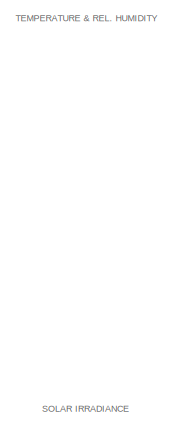
[diagram: sub_TOUT - part 1/2, top left region]
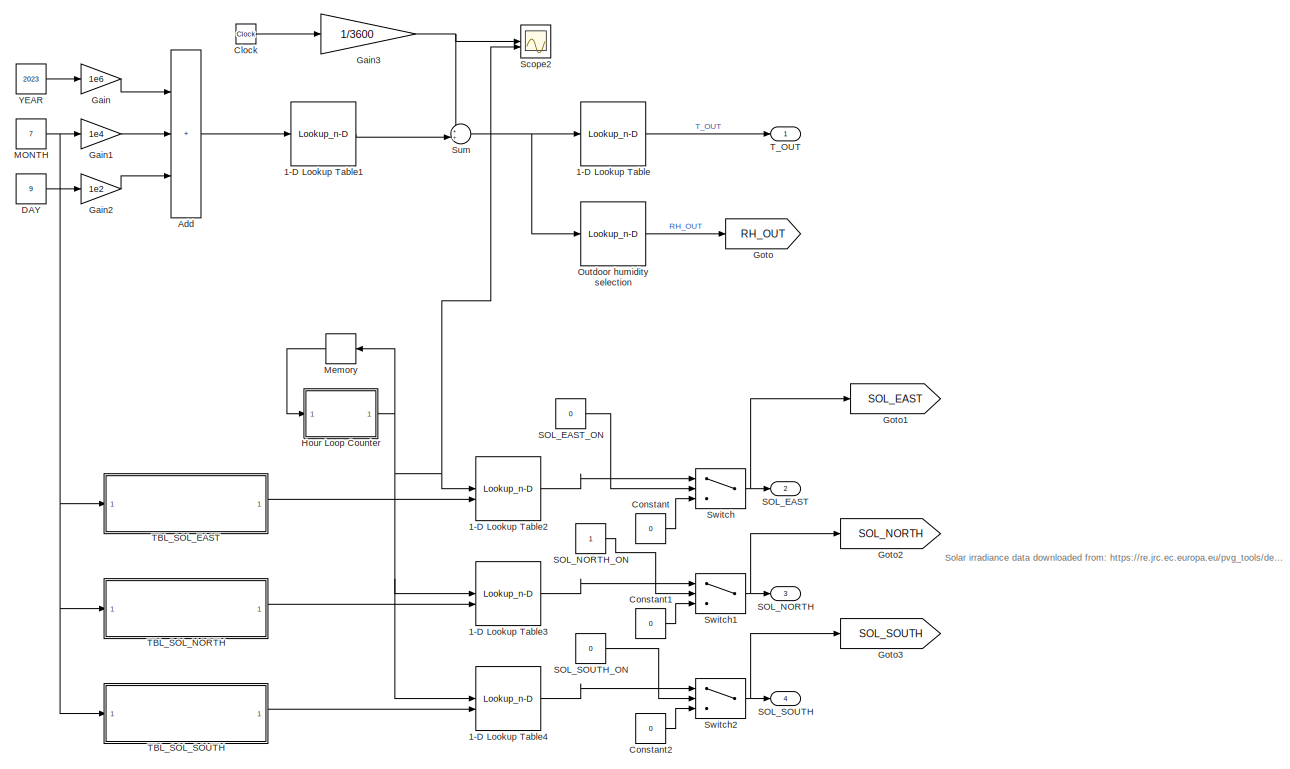
[diagram: sub_TOUT - part 2/2, most of the canvas]
BLOCK [SubSystem] sub_TOUT
BLOCK [Lookup_n-D] sub_TOUT/1-D Lookup Table
  BreakpointsForDimension1 = TBL_TEMP.DATE_sec
  InputPortMap = u0
  InternalRulePriority = Speed
  NumberOfTableDimensions = 1
  RndMeth = Simplest
  Table = TBL_TEMP.T_C
BLOCK [Lookup_n-D] sub_TOUT/1-D Lookup Table1
  BreakpointsForDimension1 = TBL_TEMP.DATE_yyyymmddhh
  InputPortMap = u0
  InternalRulePriority = Speed
  NumberOfTableDimensions = 1
  RndMeth = Simplest
  Table = TBL_TEMP.DATE_sec
BLOCK [Lookup_n-D] sub_TOUT/1-D Lookup Table2
  BreakpointsForDimension1 = 0:1:23
  InputPortMap = u0,p221
  InternalRulePriority = Speed
  NumberOfTableDimensions = 1
  RndMeth = Simplest
  Table = tanh([-5:5])
  TableSource = Input port
BLOCK [Lookup_n-D] sub_TOUT/1-D Lookup Table3
  BreakpointsForDimension1 = 0:1:23
  InputPortMap = u0,p221
  InternalRulePriority = Speed
  NumberOfTableDimensions = 1
  RndMeth = Simplest
  Table = tanh([-5:5])
  TableSource = Input port
BLOCK [Lookup_n-D] sub_TOUT/1-D Lookup Table4
  BreakpointsForDimension1 = 0:1:23
  InputPortMap = u0,p221
  InternalRulePriority = Speed
  NumberOfTableDimensions = 1
  RndMeth = Simplest
  Table = tanh([-5:5])
  TableSource = Input port
BLOCK [Sum] sub_TOUT/Add
  IconShape = rectangular
  Inputs = +++
BLOCK [Clock] sub_TOUT/Clock
BLOCK [Constant] sub_TOUT/Constant
  Value = 0
BLOCK [Constant] sub_TOUT/Constant1
  Value = 0
BLOCK [Constant] sub_TOUT/Constant2
  Value = 0
BLOCK [Constant] sub_TOUT/DAY
  Value = 9
BLOCK [Gain] sub_TOUT/Gain
  Gain = 1e6
BLOCK [Gain] sub_TOUT/Gain1
  Gain = 1e4
BLOCK [Gain] sub_TOUT/Gain2
  Gain = 1e2
BLOCK [Gain] sub_TOUT/Gain3
  Gain = 1/3600
BLOCK [Goto] sub_TOUT/Goto
  GotoTag = RH_OUT
  TagVisibility = global
BLOCK [Goto] sub_TOUT/Goto1
  GotoTag = SOL_EAST
  TagVisibility = global
BLOCK [Goto] sub_TOUT/Goto2
  GotoTag = SOL_NORTH
  TagVisibility = global
BLOCK [Goto] sub_TOUT/Goto3
  GotoTag = SOL_SOUTH
  TagVisibility = global
BLOCK [SubSystem] sub_TOUT/Hour Loop Counter
  ErrorFcn = Stateflow.Translate.translate
  PermitHierarchicalResolution = ExplicitOnly
  SFBlockType = MATLAB Function
  TreatAsAtomicUnit = on
BLOCK [Demux] sub_TOUT/Hour Loop Counter/ Demux 
  Outputs = 1
BLOCK [S-Function] sub_TOUT/Hour Loop Counter/ SFunction 
  EnableBusSupport = on
  FunctionName = sf_sfun
  PortCounts = [1 2]
  SFcnIsStateOwnerBlock = off
  SFunctionDeploymentMode = off
  Tag = Stateflow S-Function 2
BLOCK [Terminator] sub_TOUT/Hour Loop Counter/ Terminator 
BLOCK [Outport] sub_TOUT/Hour Loop Counter/h
BLOCK [Inport] sub_TOUT/Hour Loop Counter/h 
BLOCK [Constant] sub_TOUT/MONTH
  Value = 7
BLOCK [Memory] sub_TOUT/Memory
BLOCK [Lookup_n-D] sub_TOUT/Outdoor humidity selection
  BreakpointsForDimension1 = TBL_TEMP.DATE_sec
  InputPortMap = u0
  InternalRulePriority = Speed
  NumberOfTableDimensions = 1
  RndMeth = Simplest
  Table = TBL_TEMP.RM_p100
BLOCK [Outport] sub_TOUT/SOL_EAST
  Port = 2
BLOCK [Constant] sub_TOUT/SOL_EAST_ON
  Value = 0
BLOCK [Outport] sub_TOUT/SOL_NORTH
  Port = 3
BLOCK [Constant] sub_TOUT/SOL_NORTH_ON
BLOCK [Outport] sub_TOUT/SOL_SOUTH
  Port = 4
BLOCK [Constant] sub_TOUT/SOL_SOUTH_ON
  Value = 0
BLOCK [Scope] sub_TOUT/Scope2
  Floating = off
  NumInputPorts = 2
  ScopeSpecificationString = Simulink.scopes.TimeScopeBlockCfg('CurrentConfiguration', extmgr.ConfigurationSet(extmgr.Configuration('Core','General UI',true),extmgr.Configuration('Core','Source UI',true),extmgr.Configuration('Sources','WiredSimulink',true,'DataLoggingVariableName','ScopeData1'),extmgr.Configuration('Visuals','Time Domain',true,'SerializedDisplays',{struct('MinYLimReal','-12.92635','MaxYLimReal','116.33719','Y...<+1394ch>
BLOCK [Sum] sub_TOUT/Sum
  Inputs = ++|
BLOCK [Switch] sub_TOUT/Switch
  Criteria = u2 > Threshold
  InputSameDT = off
  SaturateOnIntegerOverflow = off
BLOCK [Switch] sub_TOUT/Switch1
  Criteria = u2 > Threshold
  InputSameDT = off
  SaturateOnIntegerOverflow = off
BLOCK [Switch] sub_TOUT/Switch2
  Criteria = u2 > Threshold
  InputSameDT = off
  SaturateOnIntegerOverflow = off
BLOCK [SubSystem] sub_TOUT/TBL_SOL_EAST
BLOCK [Constant] sub_TOUT/TBL_SOL_EAST/Constant
  Value = TBL_SOL_EAST_01.G
BLOCK [Constant] sub_TOUT/TBL_SOL_EAST/Constant1
  Value = TBL_SOL_EAST_02.G
BLOCK [Constant] sub_TOUT/TBL_SOL_EAST/Constant10
  Value = TBL_SOL_EAST_11.G
BLOCK [Constant] sub_TOUT/TBL_SOL_EAST/Constant11
  Value = TBL_SOL_EAST_12.G
BLOCK [Constant] sub_TOUT/TBL_SOL_EAST/Constant2
  Value = TBL_SOL_EAST_03.G
BLOCK [Constant] sub_TOUT/TBL_SOL_EAST/Constant3
  Value = TBL_SOL_EAST_04.G
BLOCK [Constant] sub_TOUT/TBL_SOL_EAST/Constant4
  Value = TBL_SOL_EAST_05.G
BLOCK [Constant] sub_TOUT/TBL_SOL_EAST/Constant5
  Value = TBL_SOL_EAST_06.G
BLOCK [Constant] sub_TOUT/TBL_SOL_EAST/Constant6
  Value = TBL_SOL_EAST_07.G
BLOCK [Constant] sub_TOUT/TBL_SOL_EAST/Constant7
  Value = TBL_SOL_EAST_08.G
BLOCK [Constant] sub_TOUT/TBL_SOL_EAST/Constant8
  Value = TBL_SOL_EAST_09.G
BLOCK [Constant] sub_TOUT/TBL_SOL_EAST/Constant9
  Value = TBL_SOL_EAST_10.G
BLOCK [Inport] sub_TOUT/TBL_SOL_EAST/Month
BLOCK [MultiPortSwitch] sub_TOUT/TBL_SOL_EAST/Multiport Switch
  InputSameDT = off
  Inputs = 12
  SaturateOnIntegerOverflow = off
BLOCK [Outport] sub_TOUT/TBL_SOL_EAST/TBL_SOL_EAST_DATA
BLOCK [SubSystem] sub_TOUT/TBL_SOL_NORTH
BLOCK [Constant] sub_TOUT/TBL_SOL_NORTH/Constant
  Value = TBL_SOL_NORTH_01.G
BLOCK [Constant] sub_TOUT/TBL_SOL_NORTH/Constant1
  Value = TBL_SOL_NORTH_02.G
BLOCK [Constant] sub_TOUT/TBL_SOL_NORTH/Constant10
  Value = TBL_SOL_NORTH_11.G
BLOCK [Constant] sub_TOUT/TBL_SOL_NORTH/Constant11
  Value = TBL_SOL_NORTH_12.G
BLOCK [Constant] sub_TOUT/TBL_SOL_NORTH/Constant2
  Value = TBL_SOL_NORTH_03.G
BLOCK [Constant] sub_TOUT/TBL_SOL_NORTH/Constant3
  Value = TBL_SOL_NORTH_04.G
BLOCK [Constant] sub_TOUT/TBL_SOL_NORTH/Constant4
  Value = TBL_SOL_NORTH_05.G
BLOCK [Constant] sub_TOUT/TBL_SOL_NORTH/Constant5
  Value = TBL_SOL_NORTH_06.G
BLOCK [Constant] sub_TOUT/TBL_SOL_NORTH/Constant6
  Value = TBL_SOL_NORTH_07.G
BLOCK [Constant] sub_TOUT/TBL_SOL_NORTH/Constant7
  Value = TBL_SOL_NORTH_08.G
BLOCK [Constant] sub_TOUT/TBL_SOL_NORTH/Constant8
  Value = TBL_SOL_NORTH_09.G
BLOCK [Constant] sub_TOUT/TBL_SOL_NORTH/Constant9
  Value = TBL_SOL_NORTH_10.G
BLOCK [Inport] sub_TOUT/TBL_SOL_NORTH/Month
BLOCK [MultiPortSwitch] sub_TOUT/TBL_SOL_NORTH/Multiport Switch
  InputSameDT = off
  Inputs = 12
  SaturateOnIntegerOverflow = off
BLOCK [Outport] sub_TOUT/TBL_SOL_NORTH/TBL_SOL_NORTH_DATA
BLOCK [SubSystem] sub_TOUT/TBL_SOL_SOUTH
BLOCK [Constant] sub_TOUT/TBL_SOL_SOUTH/Constant
  Value = TBL_SOL_SOUTH_01.G
BLOCK [Constant] sub_TOUT/TBL_SOL_SOUTH/Constant1
  Value = TBL_SOL_SOUTH_01.G
BLOCK [Constant] sub_TOUT/TBL_SOL_SOUTH/Constant10
  Value = TBL_SOL_SOUTH_01.G
BLOCK [Constant] sub_TOUT/TBL_SOL_SOUTH/Constant11
  Value = TBL_SOL_SOUTH_01.G
BLOCK [Constant] sub_TOUT/TBL_SOL_SOUTH/Constant2
  Value = TBL_SOL_SOUTH_01.G
BLOCK [Constant] sub_TOUT/TBL_SOL_SOUTH/Constant3
  Value = TBL_SOL_SOUTH_01.G
BLOCK [Constant] sub_TOUT/TBL_SOL_SOUTH/Constant4
  Value = TBL_SOL_SOUTH_01.G
BLOCK [Constant] sub_TOUT/TBL_SOL_SOUTH/Constant5
  Value = TBL_SOL_SOUTH_01.G
BLOCK [Constant] sub_TOUT/TBL_SOL_SOUTH/Constant6
  Value = TBL_SOL_SOUTH_01.G
BLOCK [Constant] sub_TOUT/TBL_SOL_SOUTH/Constant7
  Value = TBL_SOL_SOUTH_01.G
BLOCK [Constant] sub_TOUT/TBL_SOL_SOUTH/Constant8
  Value = TBL_SOL_SOUTH_01.G
BLOCK [Constant] sub_TOUT/TBL_SOL_SOUTH/Constant9
  Value = TBL_SOL_SOUTH_01.G
BLOCK [Inport] sub_TOUT/TBL_SOL_SOUTH/Month
BLOCK [MultiPortSwitch] sub_TOUT/TBL_SOL_SOUTH/Multiport Switch
  InputSameDT = off
  Inputs = 12
  SaturateOnIntegerOverflow = off
BLOCK [Outport] sub_TOUT/TBL_SOL_SOUTH/TBL_SOL_SOUTH_DATA
BLOCK [Outport] sub_TOUT/T_OUT
BLOCK [Constant] sub_TOUT/YEAR
  Value = 2023
BLOCK [SubSystem] untitledPanel
  IsWebBlockPanel = on
  Tag = HiddenForWebPanel
BLOCK [RadioButtonGroup] untitledPanel/Radio Button
  ButtonGroupName = Group
  PanelInfo = {"addnFilesFolder":"","height":230,"includeDebugPackages":false,"left":18,"outputFolder":"","panelId":"panelId-a10107d6-1e7d-451d-956e-0df6eada92c1","popoutMode":"","standaloneTitle":"","top":18,"type":"panelChild","version":"2019b","width":270,"zIndex":1500002}
  SelectedLabel = Label3
  Tag = HiddenForWebPanel
BLOCK [PanelWebBlock] untitledPanel/panelInfo
  PanelInfo = {"addnFilesFolder":"","compacted":false,"height":270,"includeDebugPackages":false,"isActiveTab":true,"left":296,"name":"Panel","outputFolder":"","panelId":"panelId-a10107d6-1e7d-451d-956e-0df6eada92c1","popoutData":{"height":334,"left":361,"maximized":false,"top":306,"width":324},"popoutMode":"windowHidden","standaloneTitle":"","tabIndex":0,"tabbedSetId":"tabbedSet8433950298","top":135,"type":"pan...<+66ch>
  Tag = HiddenForWebPanel
ANNOTATION (root): Based on a daily routine the 4 inhabitants of the apartment occupy different rooms at different times: 0-7 am: 2 kids in bedroom 1 and 2 adults in bedroom 2 sleeping 7am-5pm: 1 adult in home-office in the living room. Other adult at work and the 2 kids in school 5-7 pm: 2 adults in kitchen and 2 kids in bedroom 1 7-10 pm: all 4 inhabitants in the living room 10-12 pm: 2 adults in living room and 2...<+18ch>
ANNOTATION (root): Activate De-Humidifier : The de-humidification process is achieved by adjusting the air flow of the air handler system and the ac unit performance. Air flow adjustment: see look-up table above Ac unit performance: see the room subsystems bedroom 1, 2 and living room. If humidity levels are above 85 % the ac unit shuts down until the humidity level are below 85 %.
ANNOTATION (root): ACTIVATE AC
ANNOTATION (root): ACTIVATE AIR HANDLER
ANNOTATION (root): ADJUST DAILY ROUTINE OF INHABITANTS
ANNOTATION (root): ADJUST SHADING
ANNOTATION (root): Activate Air handler
ANNOTATION (root): CO2 concentration unit: ppm
ANNOTATION (root): Power unit: W
ANNOTATION (root): Rel. humidity unit: %
ANNOTATION (root): SELECT TEMPERATURE & REL. HUMIDITY
ANNOTATION (root): Select temperature at specific year, month and day. Temperature and humidity data is from Cologne, Germany and downloaded from: https://opendata.dwd.de/climate_environment/CDC/observations_germany/climate/hourly/air_temperature/recent/
ANNOTATION (root): Table data is derived from below graph (source: https://www.matlabexpo.com/content/dam/mathworks/mathworks-dot-com/images/events/matlabexpo/de/2017/gebaude-und-anlagensimulation-mit-matlab-und-simulink-am-beispiel-des-ffg-projekts-saluh.pdf)
ANNOTATION (root): Temperature unit: °C
ANNOTATION (root): With these 3 switch the shades of windows can be rolled up or down
ANNOTATION (root): With this functionality the AC system automaticly gets activated when atleast one person is in the room
ANNOTATION sub_TOUT: SOLAR IRRADIANCE
ANNOTATION sub_TOUT: Solar irradiance data downloaded from: https://re.jrc.ec.europa.eu/pvg_tools/de/#DR
ANNOTATION sub_TOUT: TEMPERATURE & REL. HUMIDITY
LINE Bedroom 1:1 -> sub_DailyRoutine:1
LINE Bedroom 2:1 -> sub_DailyRoutine:2
LINE Bus Creator1:1 -> HUMIDITY & CO2 LEVELS:2
LINE Bus Creator:1 -> HUMIDITY & CO2 LEVELS:1
LINE Constant1:1 -> Bus Creator1:7
LINE Constant:1 -> sub_House:2
LINE From10:1 -> Bus Creator:2
LINE From11:1 -> Bus Creator:3
LINE From12:1 -> Bus Creator:4
LINE From13:1 -> Bus Creator:5
LINE From14:1 -> Bus Creator:6
LINE From15:1 -> Bus Creator1:2
LINE From16:1 -> Bus Creator1:3
LINE From17:1 -> Bus Creator1:4
LINE From18:1 -> Bus Creator1:5
LINE From19:1 -> Bus Creator1:6
LINE From1:1 -> TEMPERATURES:7
LINE From21:1 -> Bus Creator1:1
LINE From22:1 -> Table (exterior):2
LINE From23:1 -> Table (exterior):1
LINE From2:1 -> Mux:1
LINE From3:1 -> Mux:2
LINE From4:1 -> Mux1:1
LINE From5:1 -> Mux1:2
LINE From6:1 -> Mux2:1
LINE From7:1 -> Mux2:2
LINE From8:1 -> Bus Creator:7
LINE From9:1 -> Bus Creator:1
LINE From:1 -> Memory:1
LINE Kitchen:1 -> sub_DailyRoutine:4
LINE Living room:1 -> sub_DailyRoutine:3
LINE Memory:1 -> sub_House:1
LINE Mux1:1 -> AC POWER:2
LINE Mux2:1 -> AC POWER:3
LINE Mux:1 -> AC POWER:1
LINE Saturation:1 -> Goto7:1
LINE T_REF_BDR1:1 -> Goto4:1
LINE T_REF_BDR2:1 -> Goto5:1
LINE T_REF_LVR:1 -> Goto6:1
LINE Table (exterior):1 -> Saturation:1
NET sub_DailyRoutine/DAILY_ROUTINE_ON:1 -> sub_DailyRoutine/Switch1:2, sub_DailyRoutine/Switch2:2, sub_DailyRoutine/Switch3:2, sub_DailyRoutine/Switch:2
LINE sub_DailyRoutine/Memory1:1 -> sub_DailyRoutine/Time of day:1
LINE sub_DailyRoutine/N_BDR1:1 -> sub_DailyRoutine/Switch:3
LINE sub_DailyRoutine/N_BDR2:1 -> sub_DailyRoutine/Switch1:3
LINE sub_DailyRoutine/N_KIT:1 -> sub_DailyRoutine/Switch3:3
LINE sub_DailyRoutine/N_LVR:1 -> sub_DailyRoutine/Switch2:3
LINE sub_DailyRoutine/Switch1:1 -> sub_DailyRoutine/Goto2:1
LINE sub_DailyRoutine/Switch2:1 -> sub_DailyRoutine/Goto3:1
LINE sub_DailyRoutine/Switch3:1 -> sub_DailyRoutine/Goto4:1
LINE sub_DailyRoutine/Switch:1 -> sub_DailyRoutine/Goto1:1
LINE sub_DailyRoutine/Time of day:1 -> sub_DailyRoutine/Memory1:1
LINE sub_DailyRoutine/Time of day:2 -> sub_DailyRoutine/Switch:1
LINE sub_DailyRoutine/Time of day:3 -> sub_DailyRoutine/Switch1:1
LINE sub_DailyRoutine/Time of day:4 -> sub_DailyRoutine/Switch2:1
LINE sub_DailyRoutine/Time of day:5 -> sub_DailyRoutine/Switch3:1
LINE sub_House/AIR_HANDLER_ON:1 -> sub_House/Goto4:1
LINE sub_House/Bathroom/AIR_OUT:1 -> sub_House/Bathroom/Product:1
LINE sub_House/Bathroom/Bathroom/From1:1 -> sub_House/Bathroom/Bathroom/Inside Enivornment Temperature:1
LINE sub_House/Bathroom/Bathroom/From:1 -> sub_House/Bathroom/Bathroom/Outside Temperature:1
LINE sub_House/Bathroom/Bathroom/Inside Enivornment Temperature/Constant2:1 -> sub_House/Bathroom/Bathroom/Inside Enivornment Temperature/Sum:2
LINE sub_House/Bathroom/Bathroom/Inside Enivornment Temperature/Sum:1 -> sub_House/Bathroom/Bathroom/Inside Enivornment Temperature/Simulink-PS Converter1:1
LINE sub_House/Bathroom/Bathroom/Inside Enivornment Temperature/T_ENV:1 -> sub_House/Bathroom/Bathroom/Inside Enivornment Temperature/Sum:1
LINE sub_House/Bathroom/Bathroom/Outside Temperature/Constant2:1 -> sub_House/Bathroom/Bathroom/Outside Temperature/Sum:2
LINE sub_House/Bathroom/Bathroom/Outside Temperature/Sum:1 -> sub_House/Bathroom/Bathroom/Outside Temperature/Simulink-PS Converter1:1
LINE sub_House/Bathroom/Bathroom/Outside Temperature/T_OUT:1 -> sub_House/Bathroom/Bathroom/Outside Temperature/Sum:1
LINE sub_House/Bathroom/Bathroom/SOLAR__WALL/Add:1 -> sub_House/Bathroom/Bathroom/SOLAR__WALL/Simulink-PS Converter:1
LINE sub_House/Bathroom/Bathroom/SOLAR__WALL/Constant1:1 -> sub_House/Bathroom/Bathroom/SOLAR__WALL/Product:1
LINE sub_House/Bathroom/Bathroom/SOLAR__WALL/Constant2:1 -> sub_House/Bathroom/Bathroom/SOLAR__WALL/Product1:2
LINE sub_House/Bathroom/Bathroom/SOLAR__WALL/Constant3:1 -> sub_House/Bathroom/Bathroom/SOLAR__WALL/Product1:1
LINE sub_House/Bathroom/Bathroom/SOLAR__WALL/Constant:1 -> sub_House/Bathroom/Bathroom/SOLAR__WALL/Product:2
LINE sub_House/Bathroom/Bathroom/SOLAR__WALL/From1:1 -> sub_House/Bathroom/Bathroom/SOLAR__WALL/Product1:3
LINE sub_House/Bathroom/Bathroom/SOLAR__WALL/From2:1 -> sub_House/Bathroom/Bathroom/SOLAR__WALL/Product:3
LINE sub_House/Bathroom/Bathroom/SOLAR__WALL/Product1:1 -> sub_House/Bathroom/Bathroom/SOLAR__WALL/Add:2
LINE sub_House/Bathroom/Bathroom/SOLAR__WALL/Product:1 -> sub_House/Bathroom/Bathroom/SOLAR__WALL/Add:1
LINE sub_House/Bathroom/Bathroom/SOLAR__WINDOW/Constant1:1 -> sub_House/Bathroom/Bathroom/SOLAR__WINDOW/Product:1
LINE sub_House/Bathroom/Bathroom/SOLAR__WINDOW/Constant:1 -> sub_House/Bathroom/Bathroom/SOLAR__WINDOW/Product:2
LINE sub_House/Bathroom/Bathroom/SOLAR__WINDOW/From2:1 -> sub_House/Bathroom/Bathroom/SOLAR__WINDOW/Product:3
LINE sub_House/Bathroom/Bathroom/SOLAR__WINDOW/Product:1 -> sub_House/Bathroom/Bathroom/SOLAR__WINDOW/Simulink-PS Converter:1
LINE sub_House/Bathroom/Bathroom/TEMP_01/Constant2:1 -> sub_House/Bathroom/Bathroom/TEMP_01/Sum:2
LINE sub_House/Bathroom/Bathroom/TEMP_01/PS-Simulink Converter:1 -> sub_House/Bathroom/Bathroom/TEMP_01/Sum:1
LINE sub_House/Bathroom/Bathroom/TEMP_01/Sum:1 -> sub_House/Bathroom/Bathroom/TEMP_01/Sim:1
LINE sub_House/Bathroom/Bathroom/TEMP_01:1 -> sub_House/Bathroom/Bathroom/T_BATH:1
LINE sub_House/Bathroom/Bathroom:1 -> sub_House/Bathroom/T_BATH:1
LINE sub_House/Bathroom/From:1 -> sub_House/Bathroom/Product:2
LINE sub_House/Bathroom/MA Bathroom/Environment_out/Constant1:1 -> sub_House/Bathroom/MA Bathroom/Environment_out/Gain2:1
LINE sub_House/Bathroom/MA Bathroom/Environment_out/Constant4:1 -> sub_House/Bathroom/MA Bathroom/Environment_out/Simulink-PS Converter5:1
LINE sub_House/Bathroom/MA Bathroom/Environment_out/Constant6:1 -> sub_House/Bathroom/MA Bathroom/Environment_out/Sum2:2
LINE sub_House/Bathroom/MA Bathroom/Environment_out/From8:1 -> sub_House/Bathroom/MA Bathroom/Environment_out/Gain:1
LINE sub_House/Bathroom/MA Bathroom/Environment_out/From:1 -> sub_House/Bathroom/MA Bathroom/Environment_out/Sum2:1
LINE sub_House/Bathroom/MA Bathroom/Environment_out/Gain2:1 -> sub_House/Bathroom/MA Bathroom/Environment_out/Simulink-PS Converter7:1
LINE sub_House/Bathroom/MA Bathroom/Environment_out/Gain:1 -> sub_House/Bathroom/MA Bathroom/Environment_out/Simulink-PS Converter6:1
LINE sub_House/Bathroom/MA Bathroom/Environment_out/Sum2:1 -> sub_House/Bathroom/MA Bathroom/Environment_out/Simulink-PS Converter3:1
LINE sub_House/Bathroom/MA Bathroom/Gain1:1 -> sub_House/Bathroom/MA Bathroom/Goto3:1
LINE sub_House/Bathroom/MA Bathroom/Gain3:1 -> sub_House/Bathroom/MA Bathroom/Goto1:1
LINE sub_House/Bathroom/MA Bathroom/In1:1 -> sub_House/Bathroom/MA Bathroom/Transfer Fcn:1
LINE sub_House/Bathroom/MA Bathroom/PS-Simulink Converter1:1 -> sub_House/Bathroom/MA Bathroom/Saturation:1
LINE sub_House/Bathroom/MA Bathroom/PS-Simulink Converter2:1 -> sub_House/Bathroom/MA Bathroom/Gain1:1
LINE sub_House/Bathroom/MA Bathroom/Saturation:1 -> sub_House/Bathroom/MA Bathroom/Gain3:1
LINE sub_House/Bathroom/MA Bathroom/Transfer Fcn:1 -> sub_House/Bathroom/MA Bathroom/Simulink-PS Converter2:1
LINE sub_House/Bathroom/Product:1 -> sub_House/Bathroom/MA Bathroom:1
LINE sub_House/Bathroom:1 -> sub_House/T_BATH:1
LINE sub_House/Bedroom 1/AIR_IN:1 -> sub_House/Bedroom 1/Product:1
LINE sub_House/Bedroom 1/Bedroom 1/AirConditioning/AC_ON_BDR1:1 -> sub_House/Bedroom 1/Bedroom 1/AirConditioning/AC_scheduling:1
LINE sub_House/Bedroom 1/Bedroom 1/AirConditioning/AC_SCHEDULING:1 -> sub_House/Bedroom 1/Bedroom 1/AirConditioning/NOT:1
LINE sub_House/Bedroom 1/Bedroom 1/AirConditioning/AC_scheduling/Constant1:1 -> sub_House/Bedroom 1/Bedroom 1/AirConditioning/AC_scheduling/Switch:3
LINE sub_House/Bedroom 1/Bedroom 1/AirConditioning/AC_scheduling/Constant2:1 -> sub_House/Bedroom 1/Bedroom 1/AirConditioning/AC_scheduling/Switch:1
LINE sub_House/Bedroom 1/Bedroom 1/AirConditioning/AC_scheduling/Constant:1 -> sub_House/Bedroom 1/Bedroom 1/AirConditioning/AC_scheduling/Switch2:3
LINE sub_House/Bedroom 1/Bedroom 1/AirConditioning/AC_scheduling/From2:1 -> sub_House/Bedroom 1/Bedroom 1/AirConditioning/AC_scheduling/Switch:2
LINE sub_House/Bedroom 1/Bedroom 1/AirConditioning/AC_scheduling/In1:1 -> sub_House/Bedroom 1/Bedroom 1/AirConditioning/AC_scheduling/Switch2:2
NET sub_House/Bedroom 1/Bedroom 1/AirConditioning/AC_scheduling/In2:1 -> sub_House/Bedroom 1/Bedroom 1/AirConditioning/AC_scheduling/Product:1, sub_House/Bedroom 1/Bedroom 1/AirConditioning/AC_scheduling/Switch1:1
LINE sub_House/Bedroom 1/Bedroom 1/AirConditioning/AC_scheduling/In3:1 -> sub_House/Bedroom 1/Bedroom 1/AirConditioning/AC_scheduling/Switch1:2
LINE sub_House/Bedroom 1/Bedroom 1/AirConditioning/AC_scheduling/Product:1 -> sub_House/Bedroom 1/Bedroom 1/AirConditioning/AC_scheduling/Switch1:3
LINE sub_House/Bedroom 1/Bedroom 1/AirConditioning/AC_scheduling/Switch1:1 -> sub_House/Bedroom 1/Bedroom 1/AirConditioning/AC_scheduling/Switch2:1
LINE sub_House/Bedroom 1/Bedroom 1/AirConditioning/AC_scheduling/Switch2:1 -> sub_House/Bedroom 1/Bedroom 1/AirConditioning/AC_scheduling/Out1:1
LINE sub_House/Bedroom 1/Bedroom 1/AirConditioning/AC_scheduling/Switch:1 -> sub_House/Bedroom 1/Bedroom 1/AirConditioning/AC_scheduling/Product:2
LINE sub_House/Bedroom 1/Bedroom 1/AirConditioning/AC_scheduling:1 -> sub_House/Bedroom 1/Bedroom 1/AirConditioning/sub_AC:1
LINE sub_House/Bedroom 1/Bedroom 1/AirConditioning/From1:1 -> sub_House/Bedroom 1/Bedroom 1/AirConditioning/Sum:1
LINE sub_House/Bedroom 1/Bedroom 1/AirConditioning/From2:1 -> sub_House/Bedroom 1/Bedroom 1/AirConditioning/AC_scheduling:2
NET sub_House/Bedroom 1/Bedroom 1/AirConditioning/From:1 -> sub_House/Bedroom 1/Bedroom 1/AirConditioning/Sum:2, sub_House/Bedroom 1/Bedroom 1/AirConditioning/sub_Cooling:2, sub_House/Bedroom 1/Bedroom 1/AirConditioning/sub_Heating:2
LINE sub_House/Bedroom 1/Bedroom 1/AirConditioning/NOT:1 -> sub_House/Bedroom 1/Bedroom 1/AirConditioning/Goto:1
LINE sub_House/Bedroom 1/Bedroom 1/AirConditioning/Sum:1 -> sub_House/Bedroom 1/Bedroom 1/AirConditioning/AC_scheduling:3
NET sub_House/Bedroom 1/Bedroom 1/AirConditioning/sub_AC/AC Unit (PI):1 -> sub_House/Bedroom 1/Bedroom 1/AirConditioning/sub_AC/Gain:1, sub_House/Bedroom 1/Bedroom 1/AirConditioning/sub_AC/Saturation:1
LINE sub_House/Bedroom 1/Bedroom 1/AirConditioning/sub_AC/Chart:1 -> sub_House/Bedroom 1/Bedroom 1/AirConditioning/sub_AC/Switch:1
LINE sub_House/Bedroom 1/Bedroom 1/AirConditioning/sub_AC/Constant1:1 -> sub_House/Bedroom 1/Bedroom 1/AirConditioning/sub_AC/Switch1:1
LINE sub_House/Bedroom 1/Bedroom 1/AirConditioning/sub_AC/Constant2:1 -> sub_House/Bedroom 1/Bedroom 1/AirConditioning/sub_AC/Switch:3
LINE sub_House/Bedroom 1/Bedroom 1/AirConditioning/sub_AC/Constant:1 -> sub_House/Bedroom 1/Bedroom 1/AirConditioning/sub_AC/Switch2:1
LINE sub_House/Bedroom 1/Bedroom 1/AirConditioning/sub_AC/From1:1 -> sub_House/Bedroom 1/Bedroom 1/AirConditioning/sub_AC/Switch:2
LINE sub_House/Bedroom 1/Bedroom 1/AirConditioning/sub_AC/From:1 -> sub_House/Bedroom 1/Bedroom 1/AirConditioning/sub_AC/Chart:1
LINE sub_House/Bedroom 1/Bedroom 1/AirConditioning/sub_AC/Gain:1 -> sub_House/Bedroom 1/Bedroom 1/AirConditioning/sub_AC/Saturation1:1
LINE sub_House/Bedroom 1/Bedroom 1/AirConditioning/sub_AC/SWITCH:1 -> sub_House/Bedroom 1/Bedroom 1/AirConditioning/sub_AC/AC Unit (PI):1
LINE sub_House/Bedroom 1/Bedroom 1/AirConditioning/sub_AC/Saturation1:1 -> sub_House/Bedroom 1/Bedroom 1/AirConditioning/sub_AC/Switch2:3
LINE sub_House/Bedroom 1/Bedroom 1/AirConditioning/sub_AC/Saturation:1 -> sub_House/Bedroom 1/Bedroom 1/AirConditioning/sub_AC/Switch1:3
LINE sub_House/Bedroom 1/Bedroom 1/AirConditioning/sub_AC/Switch1:1 -> sub_House/Bedroom 1/Bedroom 1/AirConditioning/sub_AC/HEAT:1
LINE sub_House/Bedroom 1/Bedroom 1/AirConditioning/sub_AC/Switch2:1 -> sub_House/Bedroom 1/Bedroom 1/AirConditioning/sub_AC/COOLING:1
NET sub_House/Bedroom 1/Bedroom 1/AirConditioning/sub_AC/Switch:1 -> sub_House/Bedroom 1/Bedroom 1/AirConditioning/sub_AC/Switch1:2, sub_House/Bedroom 1/Bedroom 1/AirConditioning/sub_AC/Switch2:2
NET sub_House/Bedroom 1/Bedroom 1/AirConditioning/sub_AC:1 -> sub_House/Bedroom 1/Bedroom 1/AirConditioning/Goto1:1, sub_House/Bedroom 1/Bedroom 1/AirConditioning/sub_Heating:1
NET sub_House/Bedroom 1/Bedroom 1/AirConditioning/sub_AC:2 -> sub_House/Bedroom 1/Bedroom 1/AirConditioning/Goto2:1, sub_House/Bedroom 1/Bedroom 1/AirConditioning/sub_Cooling:1
LINE sub_House/Bedroom 1/Bedroom 1/AirConditioning/sub_Cooling/Constant2:1 -> sub_House/Bedroom 1/Bedroom 1/AirConditioning/sub_Cooling/Sum:2
LINE sub_House/Bedroom 1/Bedroom 1/AirConditioning/sub_Cooling/Gain:1 -> sub_House/Bedroom 1/Bedroom 1/AirConditioning/sub_Cooling/Product:2
LINE sub_House/Bedroom 1/Bedroom 1/AirConditioning/sub_Cooling/Product:1 -> sub_House/Bedroom 1/Bedroom 1/AirConditioning/sub_Cooling/Transfer Fcn:1
LINE sub_House/Bedroom 1/Bedroom 1/AirConditioning/sub_Cooling/SWITCH:1 -> sub_House/Bedroom 1/Bedroom 1/AirConditioning/sub_Cooling/Product:1
LINE sub_House/Bedroom 1/Bedroom 1/AirConditioning/sub_Cooling/Sum:1 -> sub_House/Bedroom 1/Bedroom 1/AirConditioning/sub_Cooling/Gain:1
LINE sub_House/Bedroom 1/Bedroom 1/AirConditioning/sub_Cooling/T_BDR:1 -> sub_House/Bedroom 1/Bedroom 1/AirConditioning/sub_Cooling/Sum:1
LINE sub_House/Bedroom 1/Bedroom 1/AirConditioning/sub_Cooling/Transfer Fcn:1 -> sub_House/Bedroom 1/Bedroom 1/AirConditioning/sub_Cooling/P_COOL:1
LINE sub_House/Bedroom 1/Bedroom 1/AirConditioning/sub_Cooling:1 -> sub_House/Bedroom 1/Bedroom 1/AirConditioning/Simulink-PS Converter4:1
LINE sub_House/Bedroom 1/Bedroom 1/AirConditioning/sub_Heating/Constant2:1 -> sub_House/Bedroom 1/Bedroom 1/AirConditioning/sub_Heating/Sum:2
LINE sub_House/Bedroom 1/Bedroom 1/AirConditioning/sub_Heating/Gain:1 -> sub_House/Bedroom 1/Bedroom 1/AirConditioning/sub_Heating/Product:2
LINE sub_House/Bedroom 1/Bedroom 1/AirConditioning/sub_Heating/Product:1 -> sub_House/Bedroom 1/Bedroom 1/AirConditioning/sub_Heating/Transfer Fcn:1
LINE sub_House/Bedroom 1/Bedroom 1/AirConditioning/sub_Heating/SWITCH:1 -> sub_House/Bedroom 1/Bedroom 1/AirConditioning/sub_Heating/Product:1
LINE sub_House/Bedroom 1/Bedroom 1/AirConditioning/sub_Heating/Sum:1 -> sub_House/Bedroom 1/Bedroom 1/AirConditioning/sub_Heating/Gain:1
LINE sub_House/Bedroom 1/Bedroom 1/AirConditioning/sub_Heating/T_BDR:1 -> sub_House/Bedroom 1/Bedroom 1/AirConditioning/sub_Heating/Sum:1
LINE sub_House/Bedroom 1/Bedroom 1/AirConditioning/sub_Heating/Transfer Fcn:1 -> sub_House/Bedroom 1/Bedroom 1/AirConditioning/sub_Heating/P_HEAT:1
LINE sub_House/Bedroom 1/Bedroom 1/AirConditioning/sub_Heating:1 -> sub_House/Bedroom 1/Bedroom 1/AirConditioning/Simulink-PS Converter:1
LINE sub_House/Bedroom 1/Bedroom 1/From1:1 -> sub_House/Bedroom 1/Bedroom 1/Inside Enivornment Temperature:1
LINE sub_House/Bedroom 1/Bedroom 1/From:1 -> sub_House/Bedroom 1/Bedroom 1/Outside Temperature:1
LINE sub_House/Bedroom 1/Bedroom 1/Heat source human/Constant:1 -> sub_House/Bedroom 1/Bedroom 1/Heat source human/Product:2
LINE sub_House/Bedroom 1/Bedroom 1/Heat source human/From2:1 -> sub_House/Bedroom 1/Bedroom 1/Heat source human/Product:1
LINE sub_House/Bedroom 1/Bedroom 1/Heat source human/Product:1 -> sub_House/Bedroom 1/Bedroom 1/Heat source human/Simulink-PS Converter:1
LINE sub_House/Bedroom 1/Bedroom 1/Inside Enivornment Temperature/Constant2:1 -> sub_House/Bedroom 1/Bedroom 1/Inside Enivornment Temperature/Sum:2
LINE sub_House/Bedroom 1/Bedroom 1/Inside Enivornment Temperature/Sum:1 -> sub_House/Bedroom 1/Bedroom 1/Inside Enivornment Temperature/Simulink-PS Converter1:1
LINE sub_House/Bedroom 1/Bedroom 1/Inside Enivornment Temperature/T_ENV:1 -> sub_House/Bedroom 1/Bedroom 1/Inside Enivornment Temperature/Sum:1
LINE sub_House/Bedroom 1/Bedroom 1/Outside Temperature/Constant2:1 -> sub_House/Bedroom 1/Bedroom 1/Outside Temperature/Sum:2
LINE sub_House/Bedroom 1/Bedroom 1/Outside Temperature/Sum:1 -> sub_House/Bedroom 1/Bedroom 1/Outside Temperature/Simulink-PS Converter1:1
LINE sub_House/Bedroom 1/Bedroom 1/Outside Temperature/T_OUT:1 -> sub_House/Bedroom 1/Bedroom 1/Outside Temperature/Sum:1
LINE sub_House/Bedroom 1/Bedroom 1/SOLAR__WALL/Constant1:1 -> sub_House/Bedroom 1/Bedroom 1/SOLAR__WALL/Product:1
LINE sub_House/Bedroom 1/Bedroom 1/SOLAR__WALL/Constant:1 -> sub_House/Bedroom 1/Bedroom 1/SOLAR__WALL/Product:2
LINE sub_House/Bedroom 1/Bedroom 1/SOLAR__WALL/From2:1 -> sub_House/Bedroom 1/Bedroom 1/SOLAR__WALL/Product:3
LINE sub_House/Bedroom 1/Bedroom 1/SOLAR__WALL/Product:1 -> sub_House/Bedroom 1/Bedroom 1/SOLAR__WALL/Simulink-PS Converter:1
LINE sub_House/Bedroom 1/Bedroom 1/SOLAR__WINDOW/Constant1:1 -> sub_House/Bedroom 1/Bedroom 1/SOLAR__WINDOW/Product:1
LINE sub_House/Bedroom 1/Bedroom 1/SOLAR__WINDOW/Constant:1 -> sub_House/Bedroom 1/Bedroom 1/SOLAR__WINDOW/Product:2
LINE sub_House/Bedroom 1/Bedroom 1/SOLAR__WINDOW/From2:1 -> sub_House/Bedroom 1/Bedroom 1/SOLAR__WINDOW/Product:3
LINE sub_House/Bedroom 1/Bedroom 1/SOLAR__WINDOW/Product:1 -> sub_House/Bedroom 1/Bedroom 1/SOLAR__WINDOW/Simulink-PS Converter:1
LINE sub_House/Bedroom 1/Bedroom 1/TEMP_01/Constant2:1 -> sub_House/Bedroom 1/Bedroom 1/TEMP_01/Sum:2
LINE sub_House/Bedroom 1/Bedroom 1/TEMP_01/PS-Simulink Converter:1 -> sub_House/Bedroom 1/Bedroom 1/TEMP_01/Sum:1
LINE sub_House/Bedroom 1/Bedroom 1/TEMP_01/Sum:1 -> sub_House/Bedroom 1/Bedroom 1/TEMP_01/Sim:1
LINE sub_House/Bedroom 1/Bedroom 1/TEMP_01:1 -> sub_House/Bedroom 1/Bedroom 1/T_BDR1:1
LINE sub_House/Bedroom 1/Bedroom 1:1 -> sub_House/Bedroom 1/T_BDR1:1
LINE sub_House/Bedroom 1/From:1 -> sub_House/Bedroom 1/Product:2
LINE sub_House/Bedroom 1/MA Bedroom 1/Environment_in/Constant1:1 -> sub_House/Bedroom 1/MA Bedroom 1/Environment_in/Gain2:1
LINE sub_House/Bedroom 1/MA Bedroom 1/Environment_in/Constant4:1 -> sub_House/Bedroom 1/MA Bedroom 1/Environment_in/Simulink-PS Converter5:1
LINE sub_House/Bedroom 1/MA Bedroom 1/Environment_in/Constant6:1 -> sub_House/Bedroom 1/MA Bedroom 1/Environment_in/Sum2:2
LINE sub_House/Bedroom 1/MA Bedroom 1/Environment_in/From8:1 -> sub_House/Bedroom 1/MA Bedroom 1/Environment_in/Gain:1
LINE sub_House/Bedroom 1/MA Bedroom 1/Environment_in/From:1 -> sub_House/Bedroom 1/MA Bedroom 1/Environment_in/Sum2:1
LINE sub_House/Bedroom 1/MA Bedroom 1/Environment_in/Gain2:1 -> sub_House/Bedroom 1/MA Bedroom 1/Environment_in/Simulink-PS Converter7:1
LINE sub_House/Bedroom 1/MA Bedroom 1/Environment_in/Gain:1 -> sub_House/Bedroom 1/MA Bedroom 1/Environment_in/Simulink-PS Converter6:1
LINE sub_House/Bedroom 1/MA Bedroom 1/Environment_in/Sum2:1 -> sub_House/Bedroom 1/MA Bedroom 1/Environment_in/Simulink-PS Converter3:1
LINE sub_House/Bedroom 1/MA Bedroom 1/Gain1:1 -> sub_House/Bedroom 1/MA Bedroom 1/Goto3:1
LINE sub_House/Bedroom 1/MA Bedroom 1/Gain3:1 -> sub_House/Bedroom 1/MA Bedroom 1/Goto1:1
LINE sub_House/Bedroom 1/MA Bedroom 1/In1:1 -> sub_House/Bedroom 1/MA Bedroom 1/Transfer Fcn:1
LINE sub_House/Bedroom 1/MA Bedroom 1/Moisture & CO2 Gain/Constant1:1 -> sub_House/Bedroom 1/MA Bedroom 1/Moisture & CO2 Gain/Product:2
LINE sub_House/Bedroom 1/MA Bedroom 1/Moisture & CO2 Gain/Constant2:1 -> sub_House/Bedroom 1/MA Bedroom 1/Moisture & CO2 Gain/Product1:2
LINE sub_House/Bedroom 1/MA Bedroom 1/Moisture & CO2 Gain/Constant3:1 -> sub_House/Bedroom 1/MA Bedroom 1/Moisture & CO2 Gain/Sum:1
LINE sub_House/Bedroom 1/MA Bedroom 1/Moisture & CO2 Gain/Constant:1 -> sub_House/Bedroom 1/MA Bedroom 1/Moisture & CO2 Gain/Sum:2
LINE sub_House/Bedroom 1/MA Bedroom 1/Moisture & CO2 Gain/From1:1 -> sub_House/Bedroom 1/MA Bedroom 1/Moisture & CO2 Gain/Product1:1
LINE sub_House/Bedroom 1/MA Bedroom 1/Moisture & CO2 Gain/From:1 -> sub_House/Bedroom 1/MA Bedroom 1/Moisture & CO2 Gain/Product:1
LINE sub_House/Bedroom 1/MA Bedroom 1/Moisture & CO2 Gain/Product1:1 -> sub_House/Bedroom 1/MA Bedroom 1/Moisture & CO2 Gain/Simulink-PS Converter3:1
LINE sub_House/Bedroom 1/MA Bedroom 1/Moisture & CO2 Gain/Product:1 -> sub_House/Bedroom 1/MA Bedroom 1/Moisture & CO2 Gain/Simulink-PS Converter:1
LINE sub_House/Bedroom 1/MA Bedroom 1/Moisture & CO2 Gain/Sum:1 -> sub_House/Bedroom 1/MA Bedroom 1/Moisture & CO2 Gain/Simulink-PS Converter1:1
LINE sub_House/Bedroom 1/MA Bedroom 1/PS-Simulink Converter1:1 -> sub_House/Bedroom 1/MA Bedroom 1/Saturation:1
LINE sub_House/Bedroom 1/MA Bedroom 1/PS-Simulink Converter2:1 -> sub_House/Bedroom 1/MA Bedroom 1/Gain1:1
LINE sub_House/Bedroom 1/MA Bedroom 1/Saturation:1 -> sub_House/Bedroom 1/MA Bedroom 1/Gain3:1
LINE sub_House/Bedroom 1/MA Bedroom 1/Transfer Fcn:1 -> sub_House/Bedroom 1/MA Bedroom 1/Simulink-PS Converter2:1
LINE sub_House/Bedroom 1/Product:1 -> sub_House/Bedroom 1/MA Bedroom 1:1
LINE sub_House/Bedroom 1:1 -> sub_House/T_BDR1:1
LINE sub_House/Bedroom 2/AIR_IN:1 -> sub_House/Bedroom 2/Product:1
LINE sub_House/Bedroom 2/Bedroom 2/AirConditioning/AC_ON_BDR2:1 -> sub_House/Bedroom 2/Bedroom 2/AirConditioning/AC_scheduling1:1
LINE sub_House/Bedroom 2/Bedroom 2/AirConditioning/AC_scheduling1/Constant1:1 -> sub_House/Bedroom 2/Bedroom 2/AirConditioning/AC_scheduling1/Switch:3
LINE sub_House/Bedroom 2/Bedroom 2/AirConditioning/AC_scheduling1/Constant2:1 -> sub_House/Bedroom 2/Bedroom 2/AirConditioning/AC_scheduling1/Switch:1
LINE sub_House/Bedroom 2/Bedroom 2/AirConditioning/AC_scheduling1/Constant:1 -> sub_House/Bedroom 2/Bedroom 2/AirConditioning/AC_scheduling1/Switch2:3
LINE sub_House/Bedroom 2/Bedroom 2/AirConditioning/AC_scheduling1/From2:1 -> sub_House/Bedroom 2/Bedroom 2/AirConditioning/AC_scheduling1/Switch:2
LINE sub_House/Bedroom 2/Bedroom 2/AirConditioning/AC_scheduling1/In1:1 -> sub_House/Bedroom 2/Bedroom 2/AirConditioning/AC_scheduling1/Switch2:2
NET sub_House/Bedroom 2/Bedroom 2/AirConditioning/AC_scheduling1/In2:1 -> sub_House/Bedroom 2/Bedroom 2/AirConditioning/AC_scheduling1/Product:1, sub_House/Bedroom 2/Bedroom 2/AirConditioning/AC_scheduling1/Switch1:1
LINE sub_House/Bedroom 2/Bedroom 2/AirConditioning/AC_scheduling1/In3:1 -> sub_House/Bedroom 2/Bedroom 2/AirConditioning/AC_scheduling1/Switch1:2
LINE sub_House/Bedroom 2/Bedroom 2/AirConditioning/AC_scheduling1/Product:1 -> sub_House/Bedroom 2/Bedroom 2/AirConditioning/AC_scheduling1/Switch1:3
LINE sub_House/Bedroom 2/Bedroom 2/AirConditioning/AC_scheduling1/Switch1:1 -> sub_House/Bedroom 2/Bedroom 2/AirConditioning/AC_scheduling1/Switch2:1
LINE sub_House/Bedroom 2/Bedroom 2/AirConditioning/AC_scheduling1/Switch2:1 -> sub_House/Bedroom 2/Bedroom 2/AirConditioning/AC_scheduling1/SWITCH:1
LINE sub_House/Bedroom 2/Bedroom 2/AirConditioning/AC_scheduling1/Switch:1 -> sub_House/Bedroom 2/Bedroom 2/AirConditioning/AC_scheduling1/Product:2
LINE sub_House/Bedroom 2/Bedroom 2/AirConditioning/AC_scheduling1:1 -> sub_House/Bedroom 2/Bedroom 2/AirConditioning/sub_AC:1
LINE sub_House/Bedroom 2/Bedroom 2/AirConditioning/From1:1 -> sub_House/Bedroom 2/Bedroom 2/AirConditioning/Sum:1
LINE sub_House/Bedroom 2/Bedroom 2/AirConditioning/From2:1 -> sub_House/Bedroom 2/Bedroom 2/AirConditioning/AC_scheduling1:2
NET sub_House/Bedroom 2/Bedroom 2/AirConditioning/From:1 -> sub_House/Bedroom 2/Bedroom 2/AirConditioning/Sum:2, sub_House/Bedroom 2/Bedroom 2/AirConditioning/sub_Cooling:2, sub_House/Bedroom 2/Bedroom 2/AirConditioning/sub_Heating:2
LINE sub_House/Bedroom 2/Bedroom 2/AirConditioning/Sum:1 -> sub_House/Bedroom 2/Bedroom 2/AirConditioning/AC_scheduling1:3
NET sub_House/Bedroom 2/Bedroom 2/AirConditioning/sub_AC/AC Unit (PI):1 -> sub_House/Bedroom 2/Bedroom 2/AirConditioning/sub_AC/Gain:1, sub_House/Bedroom 2/Bedroom 2/AirConditioning/sub_AC/Saturation:1
LINE sub_House/Bedroom 2/Bedroom 2/AirConditioning/sub_AC/Chart:1 -> sub_House/Bedroom 2/Bedroom 2/AirConditioning/sub_AC/Switch:1
LINE sub_House/Bedroom 2/Bedroom 2/AirConditioning/sub_AC/Constant1:1 -> sub_House/Bedroom 2/Bedroom 2/AirConditioning/sub_AC/Switch1:1
LINE sub_House/Bedroom 2/Bedroom 2/AirConditioning/sub_AC/Constant2:1 -> sub_House/Bedroom 2/Bedroom 2/AirConditioning/sub_AC/Switch:3
LINE sub_House/Bedroom 2/Bedroom 2/AirConditioning/sub_AC/Constant:1 -> sub_House/Bedroom 2/Bedroom 2/AirConditioning/sub_AC/Switch2:1
LINE sub_House/Bedroom 2/Bedroom 2/AirConditioning/sub_AC/From1:1 -> sub_House/Bedroom 2/Bedroom 2/AirConditioning/sub_AC/Switch:2
LINE sub_House/Bedroom 2/Bedroom 2/AirConditioning/sub_AC/From:1 -> sub_House/Bedroom 2/Bedroom 2/AirConditioning/sub_AC/Chart:1
LINE sub_House/Bedroom 2/Bedroom 2/AirConditioning/sub_AC/Gain:1 -> sub_House/Bedroom 2/Bedroom 2/AirConditioning/sub_AC/Saturation1:1
LINE sub_House/Bedroom 2/Bedroom 2/AirConditioning/sub_AC/SWITCH:1 -> sub_House/Bedroom 2/Bedroom 2/AirConditioning/sub_AC/AC Unit (PI):1
LINE sub_House/Bedroom 2/Bedroom 2/AirConditioning/sub_AC/Saturation1:1 -> sub_House/Bedroom 2/Bedroom 2/AirConditioning/sub_AC/Switch2:3
LINE sub_House/Bedroom 2/Bedroom 2/AirConditioning/sub_AC/Saturation:1 -> sub_House/Bedroom 2/Bedroom 2/AirConditioning/sub_AC/Switch1:3
LINE sub_House/Bedroom 2/Bedroom 2/AirConditioning/sub_AC/Switch1:1 -> sub_House/Bedroom 2/Bedroom 2/AirConditioning/sub_AC/HEAT:1
LINE sub_House/Bedroom 2/Bedroom 2/AirConditioning/sub_AC/Switch2:1 -> sub_House/Bedroom 2/Bedroom 2/AirConditioning/sub_AC/COOLING:1
NET sub_House/Bedroom 2/Bedroom 2/AirConditioning/sub_AC/Switch:1 -> sub_House/Bedroom 2/Bedroom 2/AirConditioning/sub_AC/Switch1:2, sub_House/Bedroom 2/Bedroom 2/AirConditioning/sub_AC/Switch2:2
NET sub_House/Bedroom 2/Bedroom 2/AirConditioning/sub_AC:1 -> sub_House/Bedroom 2/Bedroom 2/AirConditioning/Goto1:1, sub_House/Bedroom 2/Bedroom 2/AirConditioning/sub_Heating:1
NET sub_House/Bedroom 2/Bedroom 2/AirConditioning/sub_AC:2 -> sub_House/Bedroom 2/Bedroom 2/AirConditioning/Goto2:1, sub_House/Bedroom 2/Bedroom 2/AirConditioning/sub_Cooling:1
LINE sub_House/Bedroom 2/Bedroom 2/AirConditioning/sub_Cooling/Constant2:1 -> sub_House/Bedroom 2/Bedroom 2/AirConditioning/sub_Cooling/Sum:2
LINE sub_House/Bedroom 2/Bedroom 2/AirConditioning/sub_Cooling/Gain:1 -> sub_House/Bedroom 2/Bedroom 2/AirConditioning/sub_Cooling/Product:2
LINE sub_House/Bedroom 2/Bedroom 2/AirConditioning/sub_Cooling/Product:1 -> sub_House/Bedroom 2/Bedroom 2/AirConditioning/sub_Cooling/Transfer Fcn:1
LINE sub_House/Bedroom 2/Bedroom 2/AirConditioning/sub_Cooling/SWITCH:1 -> sub_House/Bedroom 2/Bedroom 2/AirConditioning/sub_Cooling/Product:1
LINE sub_House/Bedroom 2/Bedroom 2/AirConditioning/sub_Cooling/Sum:1 -> sub_House/Bedroom 2/Bedroom 2/AirConditioning/sub_Cooling/Gain:1
LINE sub_House/Bedroom 2/Bedroom 2/AirConditioning/sub_Cooling/T_BDR:1 -> sub_House/Bedroom 2/Bedroom 2/AirConditioning/sub_Cooling/Sum:1
LINE sub_House/Bedroom 2/Bedroom 2/AirConditioning/sub_Cooling/Transfer Fcn:1 -> sub_House/Bedroom 2/Bedroom 2/AirConditioning/sub_Cooling/P_COOL:1
LINE sub_House/Bedroom 2/Bedroom 2/AirConditioning/sub_Cooling:1 -> sub_House/Bedroom 2/Bedroom 2/AirConditioning/Simulink-PS Converter4:1
LINE sub_House/Bedroom 2/Bedroom 2/AirConditioning/sub_Heating/Constant2:1 -> sub_House/Bedroom 2/Bedroom 2/AirConditioning/sub_Heating/Sum:2
LINE sub_House/Bedroom 2/Bedroom 2/AirConditioning/sub_Heating/Gain:1 -> sub_House/Bedroom 2/Bedroom 2/AirConditioning/sub_Heating/Product:2
LINE sub_House/Bedroom 2/Bedroom 2/AirConditioning/sub_Heating/Product:1 -> sub_House/Bedroom 2/Bedroom 2/AirConditioning/sub_Heating/Transfer Fcn:1
LINE sub_House/Bedroom 2/Bedroom 2/AirConditioning/sub_Heating/SWITCH:1 -> sub_House/Bedroom 2/Bedroom 2/AirConditioning/sub_Heating/Product:1
LINE sub_House/Bedroom 2/Bedroom 2/AirConditioning/sub_Heating/Sum:1 -> sub_House/Bedroom 2/Bedroom 2/AirConditioning/sub_Heating/Gain:1
LINE sub_House/Bedroom 2/Bedroom 2/AirConditioning/sub_Heating/T_BDR:1 -> sub_House/Bedroom 2/Bedroom 2/AirConditioning/sub_Heating/Sum:1
LINE sub_House/Bedroom 2/Bedroom 2/AirConditioning/sub_Heating/Transfer Fcn:1 -> sub_House/Bedroom 2/Bedroom 2/AirConditioning/sub_Heating/P_HEAT:1
LINE sub_House/Bedroom 2/Bedroom 2/AirConditioning/sub_Heating:1 -> sub_House/Bedroom 2/Bedroom 2/AirConditioning/Simulink-PS Converter:1
LINE sub_House/Bedroom 2/Bedroom 2/From1:1 -> sub_House/Bedroom 2/Bedroom 2/Inside Enivornment Temperature:1
LINE sub_House/Bedroom 2/Bedroom 2/From:1 -> sub_House/Bedroom 2/Bedroom 2/Outside Temperature:1
LINE sub_House/Bedroom 2/Bedroom 2/Heat source human/Constant:1 -> sub_House/Bedroom 2/Bedroom 2/Heat source human/Product:2
LINE sub_House/Bedroom 2/Bedroom 2/Heat source human/From2:1 -> sub_House/Bedroom 2/Bedroom 2/Heat source human/Product:1
LINE sub_House/Bedroom 2/Bedroom 2/Heat source human/Product:1 -> sub_House/Bedroom 2/Bedroom 2/Heat source human/Simulink-PS Converter:1
LINE sub_House/Bedroom 2/Bedroom 2/Inside Enivornment Temperature/Constant2:1 -> sub_House/Bedroom 2/Bedroom 2/Inside Enivornment Temperature/Sum:2
LINE sub_House/Bedroom 2/Bedroom 2/Inside Enivornment Temperature/Sum:1 -> sub_House/Bedroom 2/Bedroom 2/Inside Enivornment Temperature/Simulink-PS Converter1:1
LINE sub_House/Bedroom 2/Bedroom 2/Inside Enivornment Temperature/T_ENV:1 -> sub_House/Bedroom 2/Bedroom 2/Inside Enivornment Temperature/Sum:1
LINE sub_House/Bedroom 2/Bedroom 2/Outside Temperature/Constant2:1 -> sub_House/Bedroom 2/Bedroom 2/Outside Temperature/Sum:2
LINE sub_House/Bedroom 2/Bedroom 2/Outside Temperature/Sum:1 -> sub_House/Bedroom 2/Bedroom 2/Outside Temperature/Simulink-PS Converter1:1
LINE sub_House/Bedroom 2/Bedroom 2/Outside Temperature/T_OUT:1 -> sub_House/Bedroom 2/Bedroom 2/Outside Temperature/Sum:1
LINE sub_House/Bedroom 2/Bedroom 2/SOLAR__WALL/Add:1 -> sub_House/Bedroom 2/Bedroom 2/SOLAR__WALL/Simulink-PS Converter:1
LINE sub_House/Bedroom 2/Bedroom 2/SOLAR__WALL/Constant1:1 -> sub_House/Bedroom 2/Bedroom 2/SOLAR__WALL/Product:1
LINE sub_House/Bedroom 2/Bedroom 2/SOLAR__WALL/Constant2:1 -> sub_House/Bedroom 2/Bedroom 2/SOLAR__WALL/Product1:2
LINE sub_House/Bedroom 2/Bedroom 2/SOLAR__WALL/Constant3:1 -> sub_House/Bedroom 2/Bedroom 2/SOLAR__WALL/Product1:1
LINE sub_House/Bedroom 2/Bedroom 2/SOLAR__WALL/Constant:1 -> sub_House/Bedroom 2/Bedroom 2/SOLAR__WALL/Product:2
LINE sub_House/Bedroom 2/Bedroom 2/SOLAR__WALL/From1:1 -> sub_House/Bedroom 2/Bedroom 2/SOLAR__WALL/Product1:3
LINE sub_House/Bedroom 2/Bedroom 2/SOLAR__WALL/From2:1 -> sub_House/Bedroom 2/Bedroom 2/SOLAR__WALL/Product:3
LINE sub_House/Bedroom 2/Bedroom 2/SOLAR__WALL/Product1:1 -> sub_House/Bedroom 2/Bedroom 2/SOLAR__WALL/Add:2
LINE sub_House/Bedroom 2/Bedroom 2/SOLAR__WALL/Product:1 -> sub_House/Bedroom 2/Bedroom 2/SOLAR__WALL/Add:1
LINE sub_House/Bedroom 2/Bedroom 2/SOLAR__WINDOW/Add:1 -> sub_House/Bedroom 2/Bedroom 2/SOLAR__WINDOW/Simulink-PS Converter:1
LINE sub_House/Bedroom 2/Bedroom 2/SOLAR__WINDOW/Constant1:1 -> sub_House/Bedroom 2/Bedroom 2/SOLAR__WINDOW/Product:1
LINE sub_House/Bedroom 2/Bedroom 2/SOLAR__WINDOW/Constant2:1 -> sub_House/Bedroom 2/Bedroom 2/SOLAR__WINDOW/Product1:2
LINE sub_House/Bedroom 2/Bedroom 2/SOLAR__WINDOW/Constant3:1 -> sub_House/Bedroom 2/Bedroom 2/SOLAR__WINDOW/Product1:1
LINE sub_House/Bedroom 2/Bedroom 2/SOLAR__WINDOW/Constant:1 -> sub_House/Bedroom 2/Bedroom 2/SOLAR__WINDOW/Product:2
LINE sub_House/Bedroom 2/Bedroom 2/SOLAR__WINDOW/From1:1 -> sub_House/Bedroom 2/Bedroom 2/SOLAR__WINDOW/Product1:3
LINE sub_House/Bedroom 2/Bedroom 2/SOLAR__WINDOW/From2:1 -> sub_House/Bedroom 2/Bedroom 2/SOLAR__WINDOW/Product:3
LINE sub_House/Bedroom 2/Bedroom 2/SOLAR__WINDOW/Product1:1 -> sub_House/Bedroom 2/Bedroom 2/SOLAR__WINDOW/Add:2
LINE sub_House/Bedroom 2/Bedroom 2/SOLAR__WINDOW/Product:1 -> sub_House/Bedroom 2/Bedroom 2/SOLAR__WINDOW/Add:1
LINE sub_House/Bedroom 2/Bedroom 2/TEMP_01/Constant2:1 -> sub_House/Bedroom 2/Bedroom 2/TEMP_01/Sum:2
LINE sub_House/Bedroom 2/Bedroom 2/TEMP_01/PS-Simulink Converter:1 -> sub_House/Bedroom 2/Bedroom 2/TEMP_01/Sum:1
LINE sub_House/Bedroom 2/Bedroom 2/TEMP_01/Sum:1 -> sub_House/Bedroom 2/Bedroom 2/TEMP_01/Sim:1
LINE sub_House/Bedroom 2/Bedroom 2/TEMP_01:1 -> sub_House/Bedroom 2/Bedroom 2/T_BDR2:1
LINE sub_House/Bedroom 2/Bedroom 2:1 -> sub_House/Bedroom 2/T_BDR2:1
LINE sub_House/Bedroom 2/From:1 -> sub_House/Bedroom 2/Product:2
LINE sub_House/Bedroom 2/MA Bedroom 2/Environment_in/Constant1:1 -> sub_House/Bedroom 2/MA Bedroom 2/Environment_in/Gain2:1
LINE sub_House/Bedroom 2/MA Bedroom 2/Environment_in/Constant4:1 -> sub_House/Bedroom 2/MA Bedroom 2/Environment_in/Simulink-PS Converter5:1
LINE sub_House/Bedroom 2/MA Bedroom 2/Environment_in/Constant6:1 -> sub_House/Bedroom 2/MA Bedroom 2/Environment_in/Sum2:2
LINE sub_House/Bedroom 2/MA Bedroom 2/Environment_in/From8:1 -> sub_House/Bedroom 2/MA Bedroom 2/Environment_in/Gain:1
LINE sub_House/Bedroom 2/MA Bedroom 2/Environment_in/From:1 -> sub_House/Bedroom 2/MA Bedroom 2/Environment_in/Sum2:1
LINE sub_House/Bedroom 2/MA Bedroom 2/Environment_in/Gain2:1 -> sub_House/Bedroom 2/MA Bedroom 2/Environment_in/Simulink-PS Converter7:1
LINE sub_House/Bedroom 2/MA Bedroom 2/Environment_in/Gain:1 -> sub_House/Bedroom 2/MA Bedroom 2/Environment_in/Simulink-PS Converter6:1
LINE sub_House/Bedroom 2/MA Bedroom 2/Environment_in/Sum2:1 -> sub_House/Bedroom 2/MA Bedroom 2/Environment_in/Simulink-PS Converter3:1
LINE sub_House/Bedroom 2/MA Bedroom 2/Gain1:1 -> sub_House/Bedroom 2/MA Bedroom 2/Goto3:1
LINE sub_House/Bedroom 2/MA Bedroom 2/Gain3:1 -> sub_House/Bedroom 2/MA Bedroom 2/Goto1:1
LINE sub_House/Bedroom 2/MA Bedroom 2/In1:1 -> sub_House/Bedroom 2/MA Bedroom 2/Transfer Fcn:1
LINE sub_House/Bedroom 2/MA Bedroom 2/Moisture & CO2 Gain/Constant1:1 -> sub_House/Bedroom 2/MA Bedroom 2/Moisture & CO2 Gain/Product:2
LINE sub_House/Bedroom 2/MA Bedroom 2/Moisture & CO2 Gain/Constant2:1 -> sub_House/Bedroom 2/MA Bedroom 2/Moisture & CO2 Gain/Product1:2
LINE sub_House/Bedroom 2/MA Bedroom 2/Moisture & CO2 Gain/Constant3:1 -> sub_House/Bedroom 2/MA Bedroom 2/Moisture & CO2 Gain/Sum:1
LINE sub_House/Bedroom 2/MA Bedroom 2/Moisture & CO2 Gain/Constant:1 -> sub_House/Bedroom 2/MA Bedroom 2/Moisture & CO2 Gain/Sum:2
LINE sub_House/Bedroom 2/MA Bedroom 2/Moisture & CO2 Gain/From1:1 -> sub_House/Bedroom 2/MA Bedroom 2/Moisture & CO2 Gain/Product1:1
LINE sub_House/Bedroom 2/MA Bedroom 2/Moisture & CO2 Gain/From:1 -> sub_House/Bedroom 2/MA Bedroom 2/Moisture & CO2 Gain/Product:1
LINE sub_House/Bedroom 2/MA Bedroom 2/Moisture & CO2 Gain/Product1:1 -> sub_House/Bedroom 2/MA Bedroom 2/Moisture & CO2 Gain/Simulink-PS Converter3:1
LINE sub_House/Bedroom 2/MA Bedroom 2/Moisture & CO2 Gain/Product:1 -> sub_House/Bedroom 2/MA Bedroom 2/Moisture & CO2 Gain/Simulink-PS Converter:1
LINE sub_House/Bedroom 2/MA Bedroom 2/Moisture & CO2 Gain/Sum:1 -> sub_House/Bedroom 2/MA Bedroom 2/Moisture & CO2 Gain/Simulink-PS Converter1:1
LINE sub_House/Bedroom 2/MA Bedroom 2/PS-Simulink Converter1:1 -> sub_House/Bedroom 2/MA Bedroom 2/Saturation:1
LINE sub_House/Bedroom 2/MA Bedroom 2/PS-Simulink Converter2:1 -> sub_House/Bedroom 2/MA Bedroom 2/Gain1:1
LINE sub_House/Bedroom 2/MA Bedroom 2/Saturation:1 -> sub_House/Bedroom 2/MA Bedroom 2/Gain3:1
LINE sub_House/Bedroom 2/MA Bedroom 2/Transfer Fcn:1 -> sub_House/Bedroom 2/MA Bedroom 2/Simulink-PS Converter2:1
LINE sub_House/Bedroom 2/Product:1 -> sub_House/Bedroom 2/MA Bedroom 2:1
LINE sub_House/Bedroom 2:1 -> sub_House/T_BDR2:1
LINE sub_House/Constant:1 -> sub_House/Product:1
LINE sub_House/DE_HUMIDIFIER_ON:1 -> sub_House/Goto5:1
LINE sub_House/From1:1 -> sub_House/Bedroom 2:1
LINE sub_House/From2:1 -> sub_House/Living room:1
LINE sub_House/From3:1 -> sub_House/Bathroom:1
LINE sub_House/From4:1 -> sub_House/Kitchen:1
LINE sub_House/From5:1 -> sub_House/Product:2
LINE sub_House/From:1 -> sub_House/Bedroom 1:1
LINE sub_House/Gain1:1 -> sub_House/Goto3:1
LINE sub_House/Gain:1 -> sub_House/Goto2:1
LINE sub_House/Hallway/Hallway/From1:1 -> sub_House/Hallway/Hallway/Inside Enivornment Temperature:1
LINE sub_House/Hallway/Hallway/From:1 -> sub_House/Hallway/Hallway/Outside Temperature:1
LINE sub_House/Hallway/Hallway/Inside Enivornment Temperature/Constant2:1 -> sub_House/Hallway/Hallway/Inside Enivornment Temperature/Sum:2
LINE sub_House/Hallway/Hallway/Inside Enivornment Temperature/Sum:1 -> sub_House/Hallway/Hallway/Inside Enivornment Temperature/Simulink-PS Converter1:1
LINE sub_House/Hallway/Hallway/Inside Enivornment Temperature/T_ENV:1 -> sub_House/Hallway/Hallway/Inside Enivornment Temperature/Sum:1
LINE sub_House/Hallway/Hallway/Outside Temperature/Constant2:1 -> sub_House/Hallway/Hallway/Outside Temperature/Sum:2
LINE sub_House/Hallway/Hallway/Outside Temperature/Sum:1 -> sub_House/Hallway/Hallway/Outside Temperature/Simulink-PS Converter1:1
LINE sub_House/Hallway/Hallway/Outside Temperature/T_OUT:1 -> sub_House/Hallway/Hallway/Outside Temperature/Sum:1
LINE sub_House/Hallway/Hallway/TEMP_01/Constant2:1 -> sub_House/Hallway/Hallway/TEMP_01/Sum:2
LINE sub_House/Hallway/Hallway/TEMP_01/PS-Simulink Converter:1 -> sub_House/Hallway/Hallway/TEMP_01/Sum:1
LINE sub_House/Hallway/Hallway/TEMP_01/Sum:1 -> sub_House/Hallway/Hallway/TEMP_01/Sim:1
LINE sub_House/Hallway/Hallway/TEMP_01:1 -> sub_House/Hallway/Hallway/T_HALL:1
LINE sub_House/Hallway/Hallway:1 -> sub_House/Hallway/T_HALL:1
LINE sub_House/Hallway/MA Hallway/Gain1:1 -> sub_House/Hallway/MA Hallway/Goto3:1
LINE sub_House/Hallway/MA Hallway/Gain3:1 -> sub_House/Hallway/MA Hallway/Goto1:1
LINE sub_House/Hallway/MA Hallway/PS-Simulink Converter1:1 -> sub_House/Hallway/MA Hallway/Saturation:1
LINE sub_House/Hallway/MA Hallway/PS-Simulink Converter2:1 -> sub_House/Hallway/MA Hallway/Gain1:1
LINE sub_House/Hallway/MA Hallway/Saturation:1 -> sub_House/Hallway/MA Hallway/Gain3:1
LINE sub_House/Hallway:1 -> sub_House/T_HALL:1
LINE sub_House/Kitchen/AIR_OUT:1 -> sub_House/Kitchen/Product:1
LINE sub_House/Kitchen/From:1 -> sub_House/Kitchen/Product:2
LINE sub_House/Kitchen/Kitchen/From1:1 -> sub_House/Kitchen/Kitchen/Inside Enivornment Temperature:1
LINE sub_House/Kitchen/Kitchen/From:1 -> sub_House/Kitchen/Kitchen/Outside Temperature:1
LINE sub_House/Kitchen/Kitchen/Heat source human/Constant:1 -> sub_House/Kitchen/Kitchen/Heat source human/Product:2
LINE sub_House/Kitchen/Kitchen/Heat source human/From2:1 -> sub_House/Kitchen/Kitchen/Heat source human/Product:1
LINE sub_House/Kitchen/Kitchen/Heat source human/Product:1 -> sub_House/Kitchen/Kitchen/Heat source human/Simulink-PS Converter:1
LINE sub_House/Kitchen/Kitchen/Inside Enivornment Temperature/Constant2:1 -> sub_House/Kitchen/Kitchen/Inside Enivornment Temperature/Sum:2
LINE sub_House/Kitchen/Kitchen/Inside Enivornment Temperature/Sum:1 -> sub_House/Kitchen/Kitchen/Inside Enivornment Temperature/Simulink-PS Converter1:1
LINE sub_House/Kitchen/Kitchen/Inside Enivornment Temperature/T_ENV:1 -> sub_House/Kitchen/Kitchen/Inside Enivornment Temperature/Sum:1
LINE sub_House/Kitchen/Kitchen/Outside Temperature/Constant2:1 -> sub_House/Kitchen/Kitchen/Outside Temperature/Sum:2
LINE sub_House/Kitchen/Kitchen/Outside Temperature/Sum:1 -> sub_House/Kitchen/Kitchen/Outside Temperature/Simulink-PS Converter1:1
LINE sub_House/Kitchen/Kitchen/Outside Temperature/T_OUT:1 -> sub_House/Kitchen/Kitchen/Outside Temperature/Sum:1
LINE sub_House/Kitchen/Kitchen/SOLAR__WALL/Add:1 -> sub_House/Kitchen/Kitchen/SOLAR__WALL/Simulink-PS Converter:1
LINE sub_House/Kitchen/Kitchen/SOLAR__WALL/Constant1:1 -> sub_House/Kitchen/Kitchen/SOLAR__WALL/Product:1
LINE sub_House/Kitchen/Kitchen/SOLAR__WALL/Constant2:1 -> sub_House/Kitchen/Kitchen/SOLAR__WALL/Product1:2
LINE sub_House/Kitchen/Kitchen/SOLAR__WALL/Constant3:1 -> sub_House/Kitchen/Kitchen/SOLAR__WALL/Product1:1
LINE sub_House/Kitchen/Kitchen/SOLAR__WALL/Constant:1 -> sub_House/Kitchen/Kitchen/SOLAR__WALL/Product:2
LINE sub_House/Kitchen/Kitchen/SOLAR__WALL/From1:1 -> sub_House/Kitchen/Kitchen/SOLAR__WALL/Product1:3
LINE sub_House/Kitchen/Kitchen/SOLAR__WALL/From2:1 -> sub_House/Kitchen/Kitchen/SOLAR__WALL/Product:3
LINE sub_House/Kitchen/Kitchen/SOLAR__WALL/Product1:1 -> sub_House/Kitchen/Kitchen/SOLAR__WALL/Add:2
LINE sub_House/Kitchen/Kitchen/SOLAR__WALL/Product:1 -> sub_House/Kitchen/Kitchen/SOLAR__WALL/Add:1
LINE sub_House/Kitchen/Kitchen/SOLAR__WINDOW/Constant1:1 -> sub_House/Kitchen/Kitchen/SOLAR__WINDOW/Product:1
LINE sub_House/Kitchen/Kitchen/SOLAR__WINDOW/Constant:1 -> sub_House/Kitchen/Kitchen/SOLAR__WINDOW/Product:2
LINE sub_House/Kitchen/Kitchen/SOLAR__WINDOW/From2:1 -> sub_House/Kitchen/Kitchen/SOLAR__WINDOW/Product:3
LINE sub_House/Kitchen/Kitchen/SOLAR__WINDOW/Product:1 -> sub_House/Kitchen/Kitchen/SOLAR__WINDOW/Simulink-PS Converter:1
LINE sub_House/Kitchen/Kitchen/TEMP_01/Constant2:1 -> sub_House/Kitchen/Kitchen/TEMP_01/Sum:2
LINE sub_House/Kitchen/Kitchen/TEMP_01/PS-Simulink Converter:1 -> sub_House/Kitchen/Kitchen/TEMP_01/Sum:1
LINE sub_House/Kitchen/Kitchen/TEMP_01/Sum:1 -> sub_House/Kitchen/Kitchen/TEMP_01/Sim:1
LINE sub_House/Kitchen/Kitchen/TEMP_01:1 -> sub_House/Kitchen/Kitchen/T_KIT:1
LINE sub_House/Kitchen/Kitchen:1 -> sub_House/Kitchen/T_KIT:1
LINE sub_House/Kitchen/MA Kitchen/Environment_out/Constant1:1 -> sub_House/Kitchen/MA Kitchen/Environment_out/Gain2:1
LINE sub_House/Kitchen/MA Kitchen/Environment_out/Constant4:1 -> sub_House/Kitchen/MA Kitchen/Environment_out/Simulink-PS Converter5:1
LINE sub_House/Kitchen/MA Kitchen/Environment_out/Constant6:1 -> sub_House/Kitchen/MA Kitchen/Environment_out/Sum2:2
LINE sub_House/Kitchen/MA Kitchen/Environment_out/From8:1 -> sub_House/Kitchen/MA Kitchen/Environment_out/Gain:1
LINE sub_House/Kitchen/MA Kitchen/Environment_out/From:1 -> sub_House/Kitchen/MA Kitchen/Environment_out/Sum2:1
LINE sub_House/Kitchen/MA Kitchen/Environment_out/Gain2:1 -> sub_House/Kitchen/MA Kitchen/Environment_out/Simulink-PS Converter7:1
LINE sub_House/Kitchen/MA Kitchen/Environment_out/Gain:1 -> sub_House/Kitchen/MA Kitchen/Environment_out/Simulink-PS Converter6:1
LINE sub_House/Kitchen/MA Kitchen/Environment_out/Sum2:1 -> sub_House/Kitchen/MA Kitchen/Environment_out/Simulink-PS Converter3:1
LINE sub_House/Kitchen/MA Kitchen/Gain1:1 -> sub_House/Kitchen/MA Kitchen/Goto3:1
LINE sub_House/Kitchen/MA Kitchen/Gain3:1 -> sub_House/Kitchen/MA Kitchen/Goto1:1
LINE sub_House/Kitchen/MA Kitchen/In1:1 -> sub_House/Kitchen/MA Kitchen/Transfer Fcn:1
LINE sub_House/Kitchen/MA Kitchen/Moisture & CO2 Gain/Constant1:1 -> sub_House/Kitchen/MA Kitchen/Moisture & CO2 Gain/Product:2
LINE sub_House/Kitchen/MA Kitchen/Moisture & CO2 Gain/Constant2:1 -> sub_House/Kitchen/MA Kitchen/Moisture & CO2 Gain/Product1:2
LINE sub_House/Kitchen/MA Kitchen/Moisture & CO2 Gain/Constant3:1 -> sub_House/Kitchen/MA Kitchen/Moisture & CO2 Gain/Sum:1
LINE sub_House/Kitchen/MA Kitchen/Moisture & CO2 Gain/Constant:1 -> sub_House/Kitchen/MA Kitchen/Moisture & CO2 Gain/Sum:2
LINE sub_House/Kitchen/MA Kitchen/Moisture & CO2 Gain/From1:1 -> sub_House/Kitchen/MA Kitchen/Moisture & CO2 Gain/Product1:1
LINE sub_House/Kitchen/MA Kitchen/Moisture & CO2 Gain/From:1 -> sub_House/Kitchen/MA Kitchen/Moisture & CO2 Gain/Product:1
LINE sub_House/Kitchen/MA Kitchen/Moisture & CO2 Gain/Product1:1 -> sub_House/Kitchen/MA Kitchen/Moisture & CO2 Gain/Simulink-PS Converter3:1
LINE sub_House/Kitchen/MA Kitchen/Moisture & CO2 Gain/Product:1 -> sub_House/Kitchen/MA Kitchen/Moisture & CO2 Gain/Simulink-PS Converter:1
LINE sub_House/Kitchen/MA Kitchen/Moisture & CO2 Gain/Sum:1 -> sub_House/Kitchen/MA Kitchen/Moisture & CO2 Gain/Simulink-PS Converter1:1
LINE sub_House/Kitchen/MA Kitchen/PS-Simulink Converter1:1 -> sub_House/Kitchen/MA Kitchen/Saturation:1
LINE sub_House/Kitchen/MA Kitchen/PS-Simulink Converter2:1 -> sub_House/Kitchen/MA Kitchen/Gain1:1
LINE sub_House/Kitchen/MA Kitchen/Saturation:1 -> sub_House/Kitchen/MA Kitchen/Gain3:1
LINE sub_House/Kitchen/MA Kitchen/Transfer Fcn:1 -> sub_House/Kitchen/MA Kitchen/Simulink-PS Converter2:1
LINE sub_House/Kitchen/Product:1 -> sub_House/Kitchen/MA Kitchen:1
LINE sub_House/Kitchen:1 -> sub_House/T_KIT:1
LINE sub_House/Living room/AIR_IN:1 -> sub_House/Living room/Product:1
LINE sub_House/Living room/From:1 -> sub_House/Living room/Product:2
LINE sub_House/Living room/Living Room/AirConditioning/AC_ON_LVR:1 -> sub_House/Living room/Living Room/AirConditioning/AC_scheduling1:1
LINE sub_House/Living room/Living Room/AirConditioning/AC_scheduling1/Constant1:1 -> sub_House/Living room/Living Room/AirConditioning/AC_scheduling1/Switch:3
LINE sub_House/Living room/Living Room/AirConditioning/AC_scheduling1/Constant2:1 -> sub_House/Living room/Living Room/AirConditioning/AC_scheduling1/Switch:1
LINE sub_House/Living room/Living Room/AirConditioning/AC_scheduling1/Constant:1 -> sub_House/Living room/Living Room/AirConditioning/AC_scheduling1/Switch2:3
LINE sub_House/Living room/Living Room/AirConditioning/AC_scheduling1/From2:1 -> sub_House/Living room/Living Room/AirConditioning/AC_scheduling1/Switch:2
LINE sub_House/Living room/Living Room/AirConditioning/AC_scheduling1/In1:1 -> sub_House/Living room/Living Room/AirConditioning/AC_scheduling1/Switch2:2
NET sub_House/Living room/Living Room/AirConditioning/AC_scheduling1/In2:1 -> sub_House/Living room/Living Room/AirConditioning/AC_scheduling1/Product:1, sub_House/Living room/Living Room/AirConditioning/AC_scheduling1/Switch1:1
LINE sub_House/Living room/Living Room/AirConditioning/AC_scheduling1/In3:1 -> sub_House/Living room/Living Room/AirConditioning/AC_scheduling1/Switch1:2
LINE sub_House/Living room/Living Room/AirConditioning/AC_scheduling1/Product:1 -> sub_House/Living room/Living Room/AirConditioning/AC_scheduling1/Switch1:3
LINE sub_House/Living room/Living Room/AirConditioning/AC_scheduling1/Switch1:1 -> sub_House/Living room/Living Room/AirConditioning/AC_scheduling1/Switch2:1
LINE sub_House/Living room/Living Room/AirConditioning/AC_scheduling1/Switch2:1 -> sub_House/Living room/Living Room/AirConditioning/AC_scheduling1/SWITCH:1
LINE sub_House/Living room/Living Room/AirConditioning/AC_scheduling1/Switch:1 -> sub_House/Living room/Living Room/AirConditioning/AC_scheduling1/Product:2
LINE sub_House/Living room/Living Room/AirConditioning/AC_scheduling1:1 -> sub_House/Living room/Living Room/AirConditioning/sub_AC:1
LINE sub_House/Living room/Living Room/AirConditioning/From1:1 -> sub_House/Living room/Living Room/AirConditioning/Sum:1
LINE sub_House/Living room/Living Room/AirConditioning/From2:1 -> sub_House/Living room/Living Room/AirConditioning/AC_scheduling1:2
NET sub_House/Living room/Living Room/AirConditioning/From:1 -> sub_House/Living room/Living Room/AirConditioning/Sum:2, sub_House/Living room/Living Room/AirConditioning/sub_Cooling:2, sub_House/Living room/Living Room/AirConditioning/sub_Heating:2
LINE sub_House/Living room/Living Room/AirConditioning/Sum:1 -> sub_House/Living room/Living Room/AirConditioning/AC_scheduling1:3
NET sub_House/Living room/Living Room/AirConditioning/sub_AC/AC Unit (PI):1 -> sub_House/Living room/Living Room/AirConditioning/sub_AC/Gain:1, sub_House/Living room/Living Room/AirConditioning/sub_AC/Saturation:1
LINE sub_House/Living room/Living Room/AirConditioning/sub_AC/Chart:1 -> sub_House/Living room/Living Room/AirConditioning/sub_AC/Switch:1
LINE sub_House/Living room/Living Room/AirConditioning/sub_AC/Constant1:1 -> sub_House/Living room/Living Room/AirConditioning/sub_AC/Switch1:1
LINE sub_House/Living room/Living Room/AirConditioning/sub_AC/Constant2:1 -> sub_House/Living room/Living Room/AirConditioning/sub_AC/Switch:3
LINE sub_House/Living room/Living Room/AirConditioning/sub_AC/Constant:1 -> sub_House/Living room/Living Room/AirConditioning/sub_AC/Switch2:1
LINE sub_House/Living room/Living Room/AirConditioning/sub_AC/From1:1 -> sub_House/Living room/Living Room/AirConditioning/sub_AC/Switch:2
LINE sub_House/Living room/Living Room/AirConditioning/sub_AC/From:1 -> sub_House/Living room/Living Room/AirConditioning/sub_AC/Chart:1
LINE sub_House/Living room/Living Room/AirConditioning/sub_AC/Gain:1 -> sub_House/Living room/Living Room/AirConditioning/sub_AC/Saturation1:1
LINE sub_House/Living room/Living Room/AirConditioning/sub_AC/SWITCH:1 -> sub_House/Living room/Living Room/AirConditioning/sub_AC/AC Unit (PI):1
LINE sub_House/Living room/Living Room/AirConditioning/sub_AC/Saturation1:1 -> sub_House/Living room/Living Room/AirConditioning/sub_AC/Switch2:3
LINE sub_House/Living room/Living Room/AirConditioning/sub_AC/Saturation:1 -> sub_House/Living room/Living Room/AirConditioning/sub_AC/Switch1:3
LINE sub_House/Living room/Living Room/AirConditioning/sub_AC/Switch1:1 -> sub_House/Living room/Living Room/AirConditioning/sub_AC/HEAT:1
LINE sub_House/Living room/Living Room/AirConditioning/sub_AC/Switch2:1 -> sub_House/Living room/Living Room/AirConditioning/sub_AC/COOLING:1
NET sub_House/Living room/Living Room/AirConditioning/sub_AC/Switch:1 -> sub_House/Living room/Living Room/AirConditioning/sub_AC/Switch1:2, sub_House/Living room/Living Room/AirConditioning/sub_AC/Switch2:2
NET sub_House/Living room/Living Room/AirConditioning/sub_AC:1 -> sub_House/Living room/Living Room/AirConditioning/Goto1:1, sub_House/Living room/Living Room/AirConditioning/sub_Heating:1
NET sub_House/Living room/Living Room/AirConditioning/sub_AC:2 -> sub_House/Living room/Living Room/AirConditioning/Goto2:1, sub_House/Living room/Living Room/AirConditioning/sub_Cooling:1
LINE sub_House/Living room/Living Room/AirConditioning/sub_Cooling/Constant2:1 -> sub_House/Living room/Living Room/AirConditioning/sub_Cooling/Sum:2
LINE sub_House/Living room/Living Room/AirConditioning/sub_Cooling/Gain:1 -> sub_House/Living room/Living Room/AirConditioning/sub_Cooling/Product:2
LINE sub_House/Living room/Living Room/AirConditioning/sub_Cooling/Product:1 -> sub_House/Living room/Living Room/AirConditioning/sub_Cooling/Transfer Fcn:1
LINE sub_House/Living room/Living Room/AirConditioning/sub_Cooling/SWITCH:1 -> sub_House/Living room/Living Room/AirConditioning/sub_Cooling/Product:1
LINE sub_House/Living room/Living Room/AirConditioning/sub_Cooling/Sum:1 -> sub_House/Living room/Living Room/AirConditioning/sub_Cooling/Gain:1
LINE sub_House/Living room/Living Room/AirConditioning/sub_Cooling/T_BDR:1 -> sub_House/Living room/Living Room/AirConditioning/sub_Cooling/Sum:1
LINE sub_House/Living room/Living Room/AirConditioning/sub_Cooling/Transfer Fcn:1 -> sub_House/Living room/Living Room/AirConditioning/sub_Cooling/P_COOL:1
LINE sub_House/Living room/Living Room/AirConditioning/sub_Cooling:1 -> sub_House/Living room/Living Room/AirConditioning/Simulink-PS Converter4:1
LINE sub_House/Living room/Living Room/AirConditioning/sub_Heating/Constant2:1 -> sub_House/Living room/Living Room/AirConditioning/sub_Heating/Sum:2
LINE sub_House/Living room/Living Room/AirConditioning/sub_Heating/Gain:1 -> sub_House/Living room/Living Room/AirConditioning/sub_Heating/Product:2
LINE sub_House/Living room/Living Room/AirConditioning/sub_Heating/Product:1 -> sub_House/Living room/Living Room/AirConditioning/sub_Heating/Transfer Fcn:1
LINE sub_House/Living room/Living Room/AirConditioning/sub_Heating/SWITCH:1 -> sub_House/Living room/Living Room/AirConditioning/sub_Heating/Product:1
LINE sub_House/Living room/Living Room/AirConditioning/sub_Heating/Sum:1 -> sub_House/Living room/Living Room/AirConditioning/sub_Heating/Gain:1
LINE sub_House/Living room/Living Room/AirConditioning/sub_Heating/T_BDR:1 -> sub_House/Living room/Living Room/AirConditioning/sub_Heating/Sum:1
LINE sub_House/Living room/Living Room/AirConditioning/sub_Heating/Transfer Fcn:1 -> sub_House/Living room/Living Room/AirConditioning/sub_Heating/P_HEAT:1
LINE sub_House/Living room/Living Room/AirConditioning/sub_Heating:1 -> sub_House/Living room/Living Room/AirConditioning/Simulink-PS Converter:1
LINE sub_House/Living room/Living Room/From1:1 -> sub_House/Living room/Living Room/Inside Enivornment Temperature:1
LINE sub_House/Living room/Living Room/From:1 -> sub_House/Living room/Living Room/Outside Temperature:1
LINE sub_House/Living room/Living Room/Heat source human/Constant:1 -> sub_House/Living room/Living Room/Heat source human/Product:2
LINE sub_House/Living room/Living Room/Heat source human/From2:1 -> sub_House/Living room/Living Room/Heat source human/Product:1
LINE sub_House/Living room/Living Room/Heat source human/Product:1 -> sub_House/Living room/Living Room/Heat source human/Simulink-PS Converter:1
LINE sub_House/Living room/Living Room/Inside Enivornment Temperature/Constant2:1 -> sub_House/Living room/Living Room/Inside Enivornment Temperature/Sum:2
LINE sub_House/Living room/Living Room/Inside Enivornment Temperature/Sum:1 -> sub_House/Living room/Living Room/Inside Enivornment Temperature/Simulink-PS Converter1:1
LINE sub_House/Living room/Living Room/Inside Enivornment Temperature/T_ENV:1 -> sub_House/Living room/Living Room/Inside Enivornment Temperature/Sum:1
LINE sub_House/Living room/Living Room/Outside Temperature/Constant2:1 -> sub_House/Living room/Living Room/Outside Temperature/Sum:2
LINE sub_House/Living room/Living Room/Outside Temperature/Sum:1 -> sub_House/Living room/Living Room/Outside Temperature/Simulink-PS Converter1:1
LINE sub_House/Living room/Living Room/Outside Temperature/T_OUT:1 -> sub_House/Living room/Living Room/Outside Temperature/Sum:1
LINE sub_House/Living room/Living Room/SOLAR__WALL/Constant1:1 -> sub_House/Living room/Living Room/SOLAR__WALL/Product:1
LINE sub_House/Living room/Living Room/SOLAR__WALL/Constant:1 -> sub_House/Living room/Living Room/SOLAR__WALL/Product:2
LINE sub_House/Living room/Living Room/SOLAR__WALL/From2:1 -> sub_House/Living room/Living Room/SOLAR__WALL/Product:3
LINE sub_House/Living room/Living Room/SOLAR__WALL/Product:1 -> sub_House/Living room/Living Room/SOLAR__WALL/Simulink-PS Converter:1
LINE sub_House/Living room/Living Room/SOLAR__WINDOW/Constant1:1 -> sub_House/Living room/Living Room/SOLAR__WINDOW/Product:1
LINE sub_House/Living room/Living Room/SOLAR__WINDOW/Constant:1 -> sub_House/Living room/Living Room/SOLAR__WINDOW/Product:2
LINE sub_House/Living room/Living Room/SOLAR__WINDOW/From2:1 -> sub_House/Living room/Living Room/SOLAR__WINDOW/Product:3
LINE sub_House/Living room/Living Room/SOLAR__WINDOW/Product:1 -> sub_House/Living room/Living Room/SOLAR__WINDOW/Simulink-PS Converter:1
LINE sub_House/Living room/Living Room/TEMP_01/Constant2:1 -> sub_House/Living room/Living Room/TEMP_01/Sum:2
LINE sub_House/Living room/Living Room/TEMP_01/PS-Simulink Converter:1 -> sub_House/Living room/Living Room/TEMP_01/Sum:1
LINE sub_House/Living room/Living Room/TEMP_01/Sum:1 -> sub_House/Living room/Living Room/TEMP_01/Sim:1
LINE sub_House/Living room/Living Room/TEMP_01:1 -> sub_House/Living room/Living Room/T_LVR:1
LINE sub_House/Living room/Living Room:1 -> sub_House/Living room/T_LVR:1
LINE sub_House/Living room/MA Living Room/Environment_in/Constant1:1 -> sub_House/Living room/MA Living Room/Environment_in/Gain2:1
LINE sub_House/Living room/MA Living Room/Environment_in/Constant4:1 -> sub_House/Living room/MA Living Room/Environment_in/Simulink-PS Converter5:1
LINE sub_House/Living room/MA Living Room/Environment_in/Constant6:1 -> sub_House/Living room/MA Living Room/Environment_in/Sum2:2
LINE sub_House/Living room/MA Living Room/Environment_in/From8:1 -> sub_House/Living room/MA Living Room/Environment_in/Gain:1
LINE sub_House/Living room/MA Living Room/Environment_in/From:1 -> sub_House/Living room/MA Living Room/Environment_in/Sum2:1
LINE sub_House/Living room/MA Living Room/Environment_in/Gain2:1 -> sub_House/Living room/MA Living Room/Environment_in/Simulink-PS Converter7:1
LINE sub_House/Living room/MA Living Room/Environment_in/Gain:1 -> sub_House/Living room/MA Living Room/Environment_in/Simulink-PS Converter6:1
LINE sub_House/Living room/MA Living Room/Environment_in/Sum2:1 -> sub_House/Living room/MA Living Room/Environment_in/Simulink-PS Converter3:1
LINE sub_House/Living room/MA Living Room/Gain1:1 -> sub_House/Living room/MA Living Room/Goto3:1
LINE sub_House/Living room/MA Living Room/Gain3:1 -> sub_House/Living room/MA Living Room/Goto1:1
LINE sub_House/Living room/MA Living Room/In1:1 -> sub_House/Living room/MA Living Room/Transfer Fcn:1
LINE sub_House/Living room/MA Living Room/Moisture & CO2 Gain/Constant1:1 -> sub_House/Living room/MA Living Room/Moisture & CO2 Gain/Product:2
LINE sub_House/Living room/MA Living Room/Moisture & CO2 Gain/Constant2:1 -> sub_House/Living room/MA Living Room/Moisture & CO2 Gain/Product1:2
LINE sub_House/Living room/MA Living Room/Moisture & CO2 Gain/Constant3:1 -> sub_House/Living room/MA Living Room/Moisture & CO2 Gain/Sum:1
LINE sub_House/Living room/MA Living Room/Moisture & CO2 Gain/Constant:1 -> sub_House/Living room/MA Living Room/Moisture & CO2 Gain/Sum:2
LINE sub_House/Living room/MA Living Room/Moisture & CO2 Gain/From1:1 -> sub_House/Living room/MA Living Room/Moisture & CO2 Gain/Product1:1
LINE sub_House/Living room/MA Living Room/Moisture & CO2 Gain/From:1 -> sub_House/Living room/MA Living Room/Moisture & CO2 Gain/Product:1
LINE sub_House/Living room/MA Living Room/Moisture & CO2 Gain/Product1:1 -> sub_House/Living room/MA Living Room/Moisture & CO2 Gain/Simulink-PS Converter3:1
LINE sub_House/Living room/MA Living Room/Moisture & CO2 Gain/Product:1 -> sub_House/Living room/MA Living Room/Moisture & CO2 Gain/Simulink-PS Converter:1
LINE sub_House/Living room/MA Living Room/Moisture & CO2 Gain/Sum:1 -> sub_House/Living room/MA Living Room/Moisture & CO2 Gain/Simulink-PS Converter1:1
LINE sub_House/Living room/MA Living Room/PS-Simulink Converter1:1 -> sub_House/Living room/MA Living Room/Saturation:1
LINE sub_House/Living room/MA Living Room/PS-Simulink Converter2:1 -> sub_House/Living room/MA Living Room/Gain1:1
LINE sub_House/Living room/MA Living Room/Saturation:1 -> sub_House/Living room/MA Living Room/Gain3:1
LINE sub_House/Living room/MA Living Room/Transfer Fcn:1 -> sub_House/Living room/MA Living Room/Simulink-PS Converter2:1
LINE sub_House/Living room/Product:1 -> sub_House/Living room/MA Living Room:1
LINE sub_House/Living room:1 -> sub_House/T_LVR:1
NET sub_House/Product:1 -> sub_House/Gain1:1, sub_House/Gain:1
LINE sub_House/T_ENV:1 -> sub_House/Goto1:1
LINE sub_House/T_INIT_OUT:1 -> sub_House/Goto:1
NET sub_House:1 -> Goto1:1, TEMPERATURES:1
NET sub_House:2 -> Goto2:1, TEMPERATURES:2
LINE sub_House:3 -> TEMPERATURES:3
LINE sub_House:4 -> TEMPERATURES:4
NET sub_House:5 -> Goto3:1, TEMPERATURES:5
LINE sub_House:6 -> TEMPERATURES:6
LINE sub_TOUT/1-D Lookup Table1:1 -> sub_TOUT/Sum:2
LINE sub_TOUT/1-D Lookup Table2:1 -> sub_TOUT/Switch:1
LINE sub_TOUT/1-D Lookup Table3:1 -> sub_TOUT/Switch1:1
LINE sub_TOUT/1-D Lookup Table4:1 -> sub_TOUT/Switch2:1
LINE sub_TOUT/1-D Lookup Table:1 -> sub_TOUT/T_OUT:1
LINE sub_TOUT/Add:1 -> sub_TOUT/1-D Lookup Table1:1
LINE sub_TOUT/Clock:1 -> sub_TOUT/Gain3:1
LINE sub_TOUT/Constant1:1 -> sub_TOUT/Switch1:3
LINE sub_TOUT/Constant2:1 -> sub_TOUT/Switch2:3
LINE sub_TOUT/Constant:1 -> sub_TOUT/Switch:3
LINE sub_TOUT/DAY:1 -> sub_TOUT/Gain2:1
LINE sub_TOUT/Gain1:1 -> sub_TOUT/Add:2
LINE sub_TOUT/Gain2:1 -> sub_TOUT/Add:3
NET sub_TOUT/Gain3:1 -> sub_TOUT/Scope2:1, sub_TOUT/Sum:1
LINE sub_TOUT/Gain:1 -> sub_TOUT/Add:1
NET sub_TOUT/Hour Loop Counter:1 -> sub_TOUT/1-D Lookup Table2:1, sub_TOUT/1-D Lookup Table3:1, sub_TOUT/1-D Lookup Table4:1, sub_TOUT/Memory:1, sub_TOUT/Scope2:2
NET sub_TOUT/MONTH:1 -> sub_TOUT/Gain1:1, sub_TOUT/TBL_SOL_EAST:1, sub_TOUT/TBL_SOL_NORTH:1, sub_TOUT/TBL_SOL_SOUTH:1
LINE sub_TOUT/Memory:1 -> sub_TOUT/Hour Loop Counter:1
LINE sub_TOUT/Outdoor humidity selection:1 -> sub_TOUT/Goto:1
LINE sub_TOUT/SOL_EAST_ON:1 -> sub_TOUT/Switch:2
LINE sub_TOUT/SOL_NORTH_ON:1 -> sub_TOUT/Switch1:2
LINE sub_TOUT/SOL_SOUTH_ON:1 -> sub_TOUT/Switch2:2
NET sub_TOUT/Sum:1 -> sub_TOUT/1-D Lookup Table:1, sub_TOUT/Outdoor humidity selection:1
NET sub_TOUT/Switch1:1 -> sub_TOUT/Goto2:1, sub_TOUT/SOL_NORTH:1
NET sub_TOUT/Switch2:1 -> sub_TOUT/Goto3:1, sub_TOUT/SOL_SOUTH:1
NET sub_TOUT/Switch:1 -> sub_TOUT/Goto1:1, sub_TOUT/SOL_EAST:1
LINE sub_TOUT/TBL_SOL_EAST/Constant10:1 -> sub_TOUT/TBL_SOL_EAST/Multiport Switch:12
LINE sub_TOUT/TBL_SOL_EAST/Constant11:1 -> sub_TOUT/TBL_SOL_EAST/Multiport Switch:13
LINE sub_TOUT/TBL_SOL_EAST/Constant1:1 -> sub_TOUT/TBL_SOL_EAST/Multiport Switch:3
LINE sub_TOUT/TBL_SOL_EAST/Constant2:1 -> sub_TOUT/TBL_SOL_EAST/Multiport Switch:4
LINE sub_TOUT/TBL_SOL_EAST/Constant3:1 -> sub_TOUT/TBL_SOL_EAST/Multiport Switch:5
LINE sub_TOUT/TBL_SOL_EAST/Constant4:1 -> sub_TOUT/TBL_SOL_EAST/Multiport Switch:6
LINE sub_TOUT/TBL_SOL_EAST/Constant5:1 -> sub_TOUT/TBL_SOL_EAST/Multiport Switch:7
LINE sub_TOUT/TBL_SOL_EAST/Constant6:1 -> sub_TOUT/TBL_SOL_EAST/Multiport Switch:8
LINE sub_TOUT/TBL_SOL_EAST/Constant7:1 -> sub_TOUT/TBL_SOL_EAST/Multiport Switch:9
LINE sub_TOUT/TBL_SOL_EAST/Constant8:1 -> sub_TOUT/TBL_SOL_EAST/Multiport Switch:10
LINE sub_TOUT/TBL_SOL_EAST/Constant9:1 -> sub_TOUT/TBL_SOL_EAST/Multiport Switch:11
LINE sub_TOUT/TBL_SOL_EAST/Constant:1 -> sub_TOUT/TBL_SOL_EAST/Multiport Switch:2
LINE sub_TOUT/TBL_SOL_EAST/Month:1 -> sub_TOUT/TBL_SOL_EAST/Multiport Switch:1
LINE sub_TOUT/TBL_SOL_EAST/Multiport Switch:1 -> sub_TOUT/TBL_SOL_EAST/TBL_SOL_EAST_DATA:1
LINE sub_TOUT/TBL_SOL_EAST:1 -> sub_TOUT/1-D Lookup Table2:2
LINE sub_TOUT/TBL_SOL_NORTH/Constant10:1 -> sub_TOUT/TBL_SOL_NORTH/Multiport Switch:12
LINE sub_TOUT/TBL_SOL_NORTH/Constant11:1 -> sub_TOUT/TBL_SOL_NORTH/Multiport Switch:13
LINE sub_TOUT/TBL_SOL_NORTH/Constant1:1 -> sub_TOUT/TBL_SOL_NORTH/Multiport Switch:3
LINE sub_TOUT/TBL_SOL_NORTH/Constant2:1 -> sub_TOUT/TBL_SOL_NORTH/Multiport Switch:4
LINE sub_TOUT/TBL_SOL_NORTH/Constant3:1 -> sub_TOUT/TBL_SOL_NORTH/Multiport Switch:5
LINE sub_TOUT/TBL_SOL_NORTH/Constant4:1 -> sub_TOUT/TBL_SOL_NORTH/Multiport Switch:6
LINE sub_TOUT/TBL_SOL_NORTH/Constant5:1 -> sub_TOUT/TBL_SOL_NORTH/Multiport Switch:7
LINE sub_TOUT/TBL_SOL_NORTH/Constant6:1 -> sub_TOUT/TBL_SOL_NORTH/Multiport Switch:8
LINE sub_TOUT/TBL_SOL_NORTH/Constant7:1 -> sub_TOUT/TBL_SOL_NORTH/Multiport Switch:9
LINE sub_TOUT/TBL_SOL_NORTH/Constant8:1 -> sub_TOUT/TBL_SOL_NORTH/Multiport Switch:10
LINE sub_TOUT/TBL_SOL_NORTH/Constant9:1 -> sub_TOUT/TBL_SOL_NORTH/Multiport Switch:11
LINE sub_TOUT/TBL_SOL_NORTH/Constant:1 -> sub_TOUT/TBL_SOL_NORTH/Multiport Switch:2
LINE sub_TOUT/TBL_SOL_NORTH/Month:1 -> sub_TOUT/TBL_SOL_NORTH/Multiport Switch:1
LINE sub_TOUT/TBL_SOL_NORTH/Multiport Switch:1 -> sub_TOUT/TBL_SOL_NORTH/TBL_SOL_NORTH_DATA:1
LINE sub_TOUT/TBL_SOL_NORTH:1 -> sub_TOUT/1-D Lookup Table3:2
LINE sub_TOUT/TBL_SOL_SOUTH/Constant10:1 -> sub_TOUT/TBL_SOL_SOUTH/Multiport Switch:12
LINE sub_TOUT/TBL_SOL_SOUTH/Constant11:1 -> sub_TOUT/TBL_SOL_SOUTH/Multiport Switch:13
LINE sub_TOUT/TBL_SOL_SOUTH/Constant1:1 -> sub_TOUT/TBL_SOL_SOUTH/Multiport Switch:3
LINE sub_TOUT/TBL_SOL_SOUTH/Constant2:1 -> sub_TOUT/TBL_SOL_SOUTH/Multiport Switch:4
LINE sub_TOUT/TBL_SOL_SOUTH/Constant3:1 -> sub_TOUT/TBL_SOL_SOUTH/Multiport Switch:5
LINE sub_TOUT/TBL_SOL_SOUTH/Constant4:1 -> sub_TOUT/TBL_SOL_SOUTH/Multiport Switch:6
LINE sub_TOUT/TBL_SOL_SOUTH/Constant5:1 -> sub_TOUT/TBL_SOL_SOUTH/Multiport Switch:7
LINE sub_TOUT/TBL_SOL_SOUTH/Constant6:1 -> sub_TOUT/TBL_SOL_SOUTH/Multiport Switch:8
LINE sub_TOUT/TBL_SOL_SOUTH/Constant7:1 -> sub_TOUT/TBL_SOL_SOUTH/Multiport Switch:9
LINE sub_TOUT/TBL_SOL_SOUTH/Constant8:1 -> sub_TOUT/TBL_SOL_SOUTH/Multiport Switch:10
LINE sub_TOUT/TBL_SOL_SOUTH/Constant9:1 -> sub_TOUT/TBL_SOL_SOUTH/Multiport Switch:11
LINE sub_TOUT/TBL_SOL_SOUTH/Constant:1 -> sub_TOUT/TBL_SOL_SOUTH/Multiport Switch:2
LINE sub_TOUT/TBL_SOL_SOUTH/Month:1 -> sub_TOUT/TBL_SOL_SOUTH/Multiport Switch:1
LINE sub_TOUT/TBL_SOL_SOUTH/Multiport Switch:1 -> sub_TOUT/TBL_SOL_SOUTH/TBL_SOL_SOUTH_DATA:1
LINE sub_TOUT/TBL_SOL_SOUTH:1 -> sub_TOUT/1-D Lookup Table4:2
LINE sub_TOUT/YEAR:1 -> sub_TOUT/Gain:1
LINE sub_TOUT:1 -> Goto:1
LINE sub_TOUT:2 -> Scope1:1
LINE sub_TOUT:3 -> Scope1:2
LINE sub_TOUT:4 -> Scope1:3
PNET net1: sub_House/BATH-KIT:LConn1 -- sub_House/BDR2-BATH:RConn1 -- sub_House/Bathroom:LConn1 -- sub_House/HALL-BATH:LConn1
PNET net2: sub_House/BATH-KIT:RConn1 -- sub_House/Kitchen:LConn1 -- sub_House/LVR-KIT:LConn1
PNET net3: sub_House/BDR1-BDR2:LConn1 -- sub_House/BDR2-BATH:LConn1 -- sub_House/BDR2-HALL:LConn1 -- sub_House/Bedroom 2:LConn1
PNET net4: sub_House/BDR1-BDR2:RConn1 -- sub_House/BDR1-HALL:LConn1 -- sub_House/Bedroom 1:LConn2 -- sub_House/Solver Configuration:RConn1
PNET net5: sub_House/BDR1-HALL:RConn1 -- sub_House/BDR2-HALL:RConn1 -- sub_House/HALL-BATH:RConn1 -- sub_House/HALL-LVR:LConn1 -- sub_House/Hallway:LConn4
PNET net6: sub_House/Bathroom/Bathroom/Ceiling & Floor (Bath<->Above & Below)/Ceiling-InAir:LConn1 -- sub_House/Bathroom/Bathroom/Ceiling & Floor (Bath<->Above & Below)/Conn1:RConn1 -- sub_House/Bathroom/Bathroom/Ceiling & Floor (Bath<->Above & Below)/Floor-InAir:LConn1
PNET net7: sub_House/Bathroom/Bathroom/Ceiling & Floor (Bath<->Above & Below)/Ceiling-InAir:RConn1 -- sub_House/Bathroom/Bathroom/Ceiling & Floor (Bath<->Above & Below)/Conn2:RConn1 -- sub_House/Bathroom/Bathroom/Ceiling & Floor (Bath<->Above & Below)/Floor-InAir:RConn1
PLINE sub_House/Bathroom/Bathroom/Ceiling & Floor (Bath<->Above & Below):LConn1 -- sub_House/Bathroom/Bathroom/Inside Enivornment Temperature:LConn1
PNET net8: sub_House/Bathroom/Bathroom/Ceiling & Floor (Bath<->Above & Below):RConn1 -- sub_House/Bathroom/Bathroom/Conn1:RConn1 -- sub_House/Bathroom/Bathroom/TEMP_01:LConn1 -- sub_House/Bathroom/Bathroom/Thermal Mass of inside air:LConn1 -- sub_House/Bathroom/Bathroom/Wall (Bath<->Outside):LConn1 -- sub_House/Bathroom/Bathroom/Window (Bath<->Outside):LConn1
PLINE sub_House/Bathroom/Bathroom/Inside Enivornment Temperature/Conn1:RConn1 -- sub_House/Bathroom/Bathroom/Inside Enivornment Temperature/Controlled Temperature Source:LConn1
PLINE sub_House/Bathroom/Bathroom/Inside Enivornment Temperature/Controlled Temperature Source:RConn1 -- sub_House/Bathroom/Bathroom/Inside Enivornment Temperature/Simulink-PS Converter1:RConn1
PLINE sub_House/Bathroom/Bathroom/Inside Enivornment Temperature/Controlled Temperature Source:RConn2 -- sub_House/Bathroom/Bathroom/Inside Enivornment Temperature/Thermal Reference1:LConn1
PLINE sub_House/Bathroom/Bathroom/Outside Temperature/Conn1:RConn1 -- sub_House/Bathroom/Bathroom/Outside Temperature/Controlled Temperature Source:LConn1
PLINE sub_House/Bathroom/Bathroom/Outside Temperature/Controlled Temperature Source:RConn1 -- sub_House/Bathroom/Bathroom/Outside Temperature/Simulink-PS Converter1:RConn1
PLINE sub_House/Bathroom/Bathroom/Outside Temperature/Controlled Temperature Source:RConn2 -- sub_House/Bathroom/Bathroom/Outside Temperature/Thermal Reference1:LConn1
PNET net9: sub_House/Bathroom/Bathroom/Outside Temperature:LConn1 -- sub_House/Bathroom/Bathroom/Wall (Bath<->Outside):RConn2 -- sub_House/Bathroom/Bathroom/Window (Bath<->Outside):RConn1
PLINE sub_House/Bathroom/Bathroom/SOLAR__WALL/Conn1:RConn1 -- sub_House/Bathroom/Bathroom/SOLAR__WALL/Controlled Heat Flow Rate Source:LConn1
PLINE sub_House/Bathroom/Bathroom/SOLAR__WALL/Controlled Heat Flow Rate Source:RConn1 -- sub_House/Bathroom/Bathroom/SOLAR__WALL/Simulink-PS Converter:RConn1
PLINE sub_House/Bathroom/Bathroom/SOLAR__WALL/Controlled Heat Flow Rate Source:RConn2 -- sub_House/Bathroom/Bathroom/SOLAR__WALL/Thermal Reference:LConn1
PLINE sub_House/Bathroom/Bathroom/SOLAR__WALL:LConn1 -- sub_House/Bathroom/Bathroom/Wall (Bath<->Outside):RConn1
PLINE sub_House/Bathroom/Bathroom/SOLAR__WINDOW/Conn1:RConn1 -- sub_House/Bathroom/Bathroom/SOLAR__WINDOW/Controlled Heat Flow Rate Source:LConn1
PLINE sub_House/Bathroom/Bathroom/SOLAR__WINDOW/Controlled Heat Flow Rate Source:RConn1 -- sub_House/Bathroom/Bathroom/SOLAR__WINDOW/Simulink-PS Converter:RConn1
PLINE sub_House/Bathroom/Bathroom/SOLAR__WINDOW/Controlled Heat Flow Rate Source:RConn2 -- sub_House/Bathroom/Bathroom/SOLAR__WINDOW/Thermal Reference:LConn1
PLINE sub_House/Bathroom/Bathroom/SOLAR__WINDOW:LConn1 -- sub_House/Bathroom/Bathroom/Window (Bath<->Outside):RConn2
PLINE sub_House/Bathroom/Bathroom/TEMP_01/PS-Simulink Converter:LConn1 -- sub_House/Bathroom/Bathroom/TEMP_01/Temperature Sensor:RConn2
PLINE sub_House/Bathroom/Bathroom/TEMP_01/PS:RConn1 -- sub_House/Bathroom/Bathroom/TEMP_01/Temperature Sensor:LConn1
PLINE sub_House/Bathroom/Bathroom/TEMP_01/Temperature Sensor:RConn1 -- sub_House/Bathroom/Bathroom/TEMP_01/Thermal Reference2:LConn1
PLINE sub_House/Bathroom/Bathroom/Wall (Bath<->Outside)/Conn1:RConn1 -- sub_House/Bathroom/Bathroom/Wall (Bath<->Outside)/InAir-Wall:LConn1
PLINE sub_House/Bathroom/Bathroom/Wall (Bath<->Outside)/Conn2:RConn1 -- sub_House/Bathroom/Bathroom/Wall (Bath<->Outside)/Wall-OutAir:RConn1
PNET net10: sub_House/Bathroom/Bathroom/Wall (Bath<->Outside)/Conn3:RConn1 -- sub_House/Bathroom/Bathroom/Wall (Bath<->Outside)/InAir-Wall:RConn1 -- sub_House/Bathroom/Bathroom/Wall (Bath<->Outside)/Thermal Mass of wall:LConn1 -- sub_House/Bathroom/Bathroom/Wall (Bath<->Outside)/Wall-OutAir:LConn1
PLINE sub_House/Bathroom/Bathroom/Window (Bath<->Outside)/Conn1:RConn1 -- sub_House/Bathroom/Bathroom/Window (Bath<->Outside)/Window-OutAir:RConn1
PLINE sub_House/Bathroom/Bathroom/Window (Bath<->Outside)/Conn2:RConn1 -- sub_House/Bathroom/Bathroom/Window (Bath<->Outside)/InAir-Window:LConn1
PNET net11: sub_House/Bathroom/Bathroom/Window (Bath<->Outside)/Conn3:RConn1 -- sub_House/Bathroom/Bathroom/Window (Bath<->Outside)/InAir-Window:RConn1 -- sub_House/Bathroom/Bathroom/Window (Bath<->Outside)/Thermal Mass of window:LConn1 -- sub_House/Bathroom/Bathroom/Window (Bath<->Outside)/Window-OutAir:LConn1
PNET net12: sub_House/Bathroom/Bathroom:LConn1 -- sub_House/Bathroom/Conn1:RConn1 -- sub_House/Bathroom/MA Bathroom:RConn1
PLINE sub_House/Bathroom/HALL-BATH:RConn1 -- sub_House/Bathroom/MA Bathroom:LConn1
PLINE sub_House/Bathroom/MA Bathroom/Conn4:RConn1 -- sub_House/Bathroom/MA Bathroom/Most air volume room:RConn3
PLINE sub_House/Bathroom/MA Bathroom/Environment_out/Conn1:RConn1 -- sub_House/Bathroom/MA Bathroom/Environment_out/Controlled Reservoir (MA):LConn1
PLINE sub_House/Bathroom/MA Bathroom/Environment_out/Controlled Reservoir (MA):RConn1 -- sub_House/Bathroom/MA Bathroom/Environment_out/Simulink-PS Converter3:RConn1
PLINE sub_House/Bathroom/MA Bathroom/Environment_out/Controlled Reservoir (MA):RConn2 -- sub_House/Bathroom/MA Bathroom/Environment_out/Simulink-PS Converter5:RConn1
PLINE sub_House/Bathroom/MA Bathroom/Environment_out/Controlled Reservoir (MA):RConn3 -- sub_House/Bathroom/MA Bathroom/Environment_out/Simulink-PS Converter6:RConn1
PLINE sub_House/Bathroom/MA Bathroom/Environment_out/Controlled Reservoir (MA):RConn4 -- sub_House/Bathroom/MA Bathroom/Environment_out/Simulink-PS Converter7:RConn1
PLINE sub_House/Bathroom/MA Bathroom/Environment_out:LConn1 -- sub_House/Bathroom/MA Bathroom/P_OUT:RConn1
PLINE sub_House/Bathroom/MA Bathroom/HALL-BATH:RConn1 -- sub_House/Bathroom/MA Bathroom/Most air volume room:LConn2
PLINE sub_House/Bathroom/MA Bathroom/Measurement Selector (MA):LConn1 -- sub_House/Bathroom/MA Bathroom/Most air volume room:RConn2
PLINE sub_House/Bathroom/MA Bathroom/Measurement Selector (MA):RConn3 -- sub_House/Bathroom/MA Bathroom/PS-Simulink Converter1:LConn1
PLINE sub_House/Bathroom/MA Bathroom/Measurement Selector (MA):RConn4 -- sub_House/Bathroom/MA Bathroom/PS-Simulink Converter2:LConn1
PLINE sub_House/Bathroom/MA Bathroom/Most air volume room:LConn1 -- sub_House/Bathroom/MA Bathroom/P_OUT:LConn1
PLINE sub_House/Bathroom/MA Bathroom/P_OUT:LConn2 -- sub_House/Bathroom/MA Bathroom/Simulink-PS Converter2:RConn1
PLINE sub_House/Bathroom:LConn2 -- sub_House/Hallway:LConn5
PLINE sub_House/Bedroom 1/BDR1-HALL:RConn1 -- sub_House/Bedroom 1/MA Bedroom 1:LConn1
PLINE sub_House/Bedroom 1/Bedroom 1/AirConditioning/COOLING:RConn1 -- sub_House/Bedroom 1/Bedroom 1/AirConditioning/Generic heat source1:LConn1
PLINE sub_House/Bedroom 1/Bedroom 1/AirConditioning/Generic heat source1:RConn1 -- sub_House/Bedroom 1/Bedroom 1/AirConditioning/Simulink-PS Converter4:RConn1
PLINE sub_House/Bedroom 1/Bedroom 1/AirConditioning/Generic heat source1:RConn2 -- sub_House/Bedroom 1/Bedroom 1/AirConditioning/Thermal Reference4:LConn1
PLINE sub_House/Bedroom 1/Bedroom 1/AirConditioning/Generic heat source:LConn1 -- sub_House/Bedroom 1/Bedroom 1/AirConditioning/HEATING:RConn1
PLINE sub_House/Bedroom 1/Bedroom 1/AirConditioning/Generic heat source:RConn1 -- sub_House/Bedroom 1/Bedroom 1/AirConditioning/Simulink-PS Converter:RConn1
PLINE sub_House/Bedroom 1/Bedroom 1/AirConditioning/Generic heat source:RConn2 -- sub_House/Bedroom 1/Bedroom 1/AirConditioning/Thermal Reference:LConn1
PNET net13: sub_House/Bedroom 1/Bedroom 1/AirConditioning:RConn1 -- sub_House/Bedroom 1/Bedroom 1/AirConditioning:RConn2 -- sub_House/Bedroom 1/Bedroom 1/Ceiling & Floor (BDR1<->Above & Below):RConn1 -- sub_House/Bedroom 1/Bedroom 1/Conn1:RConn1 -- sub_House/Bedroom 1/Bedroom 1/Heat source human:LConn1 -- sub_House/Bedroom 1/Bedroom 1/TEMP_01:LConn1 -- sub_House/Bedroom 1/Bedroom 1/Thermal Mass of inside air:LConn1 -- sub_House/Bedroom 1/Bedroom 1/Wall (BDR1<->Outside):LConn1 -- sub_House/Bedroom 1/Bedroom 1/Window (BDR1<->Outside):LConn1
PNET net14: sub_House/Bedroom 1/Bedroom 1/Ceiling & Floor (BDR1<->Above & Below)/Ceiling-InAir:LConn1 -- sub_House/Bedroom 1/Bedroom 1/Ceiling & Floor (BDR1<->Above & Below)/Conn1:RConn1 -- sub_House/Bedroom 1/Bedroom 1/Ceiling & Floor (BDR1<->Above & Below)/Floor-InAir:LConn1
PNET net15: sub_House/Bedroom 1/Bedroom 1/Ceiling & Floor (BDR1<->Above & Below)/Ceiling-InAir:RConn1 -- sub_House/Bedroom 1/Bedroom 1/Ceiling & Floor (BDR1<->Above & Below)/Conn2:RConn1 -- sub_House/Bedroom 1/Bedroom 1/Ceiling & Floor (BDR1<->Above & Below)/Floor-InAir:RConn1
PLINE sub_House/Bedroom 1/Bedroom 1/Ceiling & Floor (BDR1<->Above & Below):LConn1 -- sub_House/Bedroom 1/Bedroom 1/Inside Enivornment Temperature:LConn1
PLINE sub_House/Bedroom 1/Bedroom 1/Heat source human/Conn1:RConn1 -- sub_House/Bedroom 1/Bedroom 1/Heat source human/Controlled Heat Flow Rate Source:LConn1
PLINE sub_House/Bedroom 1/Bedroom 1/Heat source human/Controlled Heat Flow Rate Source:RConn1 -- sub_House/Bedroom 1/Bedroom 1/Heat source human/Simulink-PS Converter:RConn1
PLINE sub_House/Bedroom 1/Bedroom 1/Heat source human/Controlled Heat Flow Rate Source:RConn2 -- sub_House/Bedroom 1/Bedroom 1/Heat source human/Thermal Reference:LConn1
PLINE sub_House/Bedroom 1/Bedroom 1/Inside Enivornment Temperature/Conn1:RConn1 -- sub_House/Bedroom 1/Bedroom 1/Inside Enivornment Temperature/Controlled Temperature Source:LConn1
PLINE sub_House/Bedroom 1/Bedroom 1/Inside Enivornment Temperature/Controlled Temperature Source:RConn1 -- sub_House/Bedroom 1/Bedroom 1/Inside Enivornment Temperature/Simulink-PS Converter1:RConn1
PLINE sub_House/Bedroom 1/Bedroom 1/Inside Enivornment Temperature/Controlled Temperature Source:RConn2 -- sub_House/Bedroom 1/Bedroom 1/Inside Enivornment Temperature/Thermal Reference1:LConn1
PLINE sub_House/Bedroom 1/Bedroom 1/Outside Temperature/Conn1:RConn1 -- sub_House/Bedroom 1/Bedroom 1/Outside Temperature/Controlled Temperature Source:LConn1
PLINE sub_House/Bedroom 1/Bedroom 1/Outside Temperature/Controlled Temperature Source:RConn1 -- sub_House/Bedroom 1/Bedroom 1/Outside Temperature/Simulink-PS Converter1:RConn1
PLINE sub_House/Bedroom 1/Bedroom 1/Outside Temperature/Controlled Temperature Source:RConn2 -- sub_House/Bedroom 1/Bedroom 1/Outside Temperature/Thermal Reference1:LConn1
PNET net16: sub_House/Bedroom 1/Bedroom 1/Outside Temperature:LConn1 -- sub_House/Bedroom 1/Bedroom 1/Wall (BDR1<->Outside):RConn2 -- sub_House/Bedroom 1/Bedroom 1/Window (BDR1<->Outside):RConn1
PLINE sub_House/Bedroom 1/Bedroom 1/SOLAR__WALL/Conn1:RConn1 -- sub_House/Bedroom 1/Bedroom 1/SOLAR__WALL/Controlled Heat Flow Rate Source:LConn1
PLINE sub_House/Bedroom 1/Bedroom 1/SOLAR__WALL/Controlled Heat Flow Rate Source:RConn1 -- sub_House/Bedroom 1/Bedroom 1/SOLAR__WALL/Simulink-PS Converter:RConn1
PLINE sub_House/Bedroom 1/Bedroom 1/SOLAR__WALL/Controlled Heat Flow Rate Source:RConn2 -- sub_House/Bedroom 1/Bedroom 1/SOLAR__WALL/Thermal Reference:LConn1
PLINE sub_House/Bedroom 1/Bedroom 1/SOLAR__WALL:LConn1 -- sub_House/Bedroom 1/Bedroom 1/Wall (BDR1<->Outside):RConn1
PLINE sub_House/Bedroom 1/Bedroom 1/SOLAR__WINDOW/Conn1:RConn1 -- sub_House/Bedroom 1/Bedroom 1/SOLAR__WINDOW/Controlled Heat Flow Rate Source:LConn1
PLINE sub_House/Bedroom 1/Bedroom 1/SOLAR__WINDOW/Controlled Heat Flow Rate Source:RConn1 -- sub_House/Bedroom 1/Bedroom 1/SOLAR__WINDOW/Simulink-PS Converter:RConn1
PLINE sub_House/Bedroom 1/Bedroom 1/SOLAR__WINDOW/Controlled Heat Flow Rate Source:RConn2 -- sub_House/Bedroom 1/Bedroom 1/SOLAR__WINDOW/Thermal Reference:LConn1
PLINE sub_House/Bedroom 1/Bedroom 1/SOLAR__WINDOW:LConn1 -- sub_House/Bedroom 1/Bedroom 1/Window (BDR1<->Outside):RConn2
PLINE sub_House/Bedroom 1/Bedroom 1/TEMP_01/PS-Simulink Converter:LConn1 -- sub_House/Bedroom 1/Bedroom 1/TEMP_01/Temperature Sensor:RConn2
PLINE sub_House/Bedroom 1/Bedroom 1/TEMP_01/PS:RConn1 -- sub_House/Bedroom 1/Bedroom 1/TEMP_01/Temperature Sensor:LConn1
PLINE sub_House/Bedroom 1/Bedroom 1/TEMP_01/Temperature Sensor:RConn1 -- sub_House/Bedroom 1/Bedroom 1/TEMP_01/Thermal Reference2:LConn1
PLINE sub_House/Bedroom 1/Bedroom 1/Wall (BDR1<->Outside)/Conn1:RConn1 -- sub_House/Bedroom 1/Bedroom 1/Wall (BDR1<->Outside)/InAir-Wall:LConn1
PLINE sub_House/Bedroom 1/Bedroom 1/Wall (BDR1<->Outside)/Conn2:RConn1 -- sub_House/Bedroom 1/Bedroom 1/Wall (BDR1<->Outside)/Wall-OutAir:RConn1
PNET net17: sub_House/Bedroom 1/Bedroom 1/Wall (BDR1<->Outside)/Conn3:RConn1 -- sub_House/Bedroom 1/Bedroom 1/Wall (BDR1<->Outside)/InAir-Wall:RConn1 -- sub_House/Bedroom 1/Bedroom 1/Wall (BDR1<->Outside)/Thermal Mass of wall:LConn1 -- sub_House/Bedroom 1/Bedroom 1/Wall (BDR1<->Outside)/Wall-OutAir:LConn1
PLINE sub_House/Bedroom 1/Bedroom 1/Window (BDR1<->Outside)/Conn1:RConn1 -- sub_House/Bedroom 1/Bedroom 1/Window (BDR1<->Outside)/Window-OutAir:RConn1
PLINE sub_House/Bedroom 1/Bedroom 1/Window (BDR1<->Outside)/Conn2:RConn1 -- sub_House/Bedroom 1/Bedroom 1/Window (BDR1<->Outside)/InAir-Window:LConn1
PNET net18: sub_House/Bedroom 1/Bedroom 1/Window (BDR1<->Outside)/Conn3:RConn1 -- sub_House/Bedroom 1/Bedroom 1/Window (BDR1<->Outside)/InAir-Window:RConn1 -- sub_House/Bedroom 1/Bedroom 1/Window (BDR1<->Outside)/Thermal Mass of window:LConn1 -- sub_House/Bedroom 1/Bedroom 1/Window (BDR1<->Outside)/Window-OutAir:LConn1
PNET net19: sub_House/Bedroom 1/Bedroom 1:LConn1 -- sub_House/Bedroom 1/Conn1:RConn1 -- sub_House/Bedroom 1/MA Bedroom 1:RConn1
PLINE sub_House/Bedroom 1/MA Bedroom 1/BDR1-HALL:RConn1 -- sub_House/Bedroom 1/MA Bedroom 1/Most air volume room:LConn2
PLINE sub_House/Bedroom 1/MA Bedroom 1/Conn4:RConn1 -- sub_House/Bedroom 1/MA Bedroom 1/Most air volume room:RConn3
PLINE sub_House/Bedroom 1/MA Bedroom 1/Environment_in/Conn1:RConn1 -- sub_House/Bedroom 1/MA Bedroom 1/Environment_in/Controlled Reservoir (MA):LConn1
PLINE sub_House/Bedroom 1/MA Bedroom 1/Environment_in/Controlled Reservoir (MA):RConn1 -- sub_House/Bedroom 1/MA Bedroom 1/Environment_in/Simulink-PS Converter3:RConn1
PLINE sub_House/Bedroom 1/MA Bedroom 1/Environment_in/Controlled Reservoir (MA):RConn2 -- sub_House/Bedroom 1/MA Bedroom 1/Environment_in/Simulink-PS Converter5:RConn1
PLINE sub_House/Bedroom 1/MA Bedroom 1/Environment_in/Controlled Reservoir (MA):RConn3 -- sub_House/Bedroom 1/MA Bedroom 1/Environment_in/Simulink-PS Converter6:RConn1
PLINE sub_House/Bedroom 1/MA Bedroom 1/Environment_in/Controlled Reservoir (MA):RConn4 -- sub_House/Bedroom 1/MA Bedroom 1/Environment_in/Simulink-PS Converter7:RConn1
PNET net20: sub_House/Bedroom 1/MA Bedroom 1/Environment_in:LConn1 -- sub_House/Bedroom 1/MA Bedroom 1/Moist Air Properties (MA):RConn1 -- sub_House/Bedroom 1/MA Bedroom 1/P_IN:LConn1
PLINE sub_House/Bedroom 1/MA Bedroom 1/Measurement Selector (MA):LConn1 -- sub_House/Bedroom 1/MA Bedroom 1/Most air volume room:RConn2
PLINE sub_House/Bedroom 1/MA Bedroom 1/Measurement Selector (MA):RConn3 -- sub_House/Bedroom 1/MA Bedroom 1/PS-Simulink Converter1:LConn1
PLINE sub_House/Bedroom 1/MA Bedroom 1/Measurement Selector (MA):RConn4 -- sub_House/Bedroom 1/MA Bedroom 1/PS-Simulink Converter2:LConn1
PNET net21: sub_House/Bedroom 1/MA Bedroom 1/Moisture & CO2 Gain/Conn1:RConn1 -- sub_House/Bedroom 1/MA Bedroom 1/Moisture & CO2 Gain/Inhabitant CO2 Gain:LConn1 -- sub_House/Bedroom 1/MA Bedroom 1/Moisture & CO2 Gain/Inhabitant Moisture Gain:LConn1
PLINE sub_House/Bedroom 1/MA Bedroom 1/Moisture & CO2 Gain/Inhabitant CO2 Gain:RConn1 -- sub_House/Bedroom 1/MA Bedroom 1/Moisture & CO2 Gain/Simulink-PS Converter3:RConn1
PNET net22: sub_House/Bedroom 1/MA Bedroom 1/Moisture & CO2 Gain/Inhabitant CO2 Gain:RConn2 -- sub_House/Bedroom 1/MA Bedroom 1/Moisture & CO2 Gain/Inhabitant Moisture Gain:RConn2 -- sub_House/Bedroom 1/MA Bedroom 1/Moisture & CO2 Gain/Simulink-PS Converter1:RConn1
PLINE sub_House/Bedroom 1/MA Bedroom 1/Moisture & CO2 Gain/Inhabitant Moisture Gain:RConn1 -- sub_House/Bedroom 1/MA Bedroom 1/Moisture & CO2 Gain/Simulink-PS Converter:RConn1
PLINE sub_House/Bedroom 1/MA Bedroom 1/Moisture & CO2 Gain:LConn1 -- sub_House/Bedroom 1/MA Bedroom 1/Most air volume room:RConn4
PLINE sub_House/Bedroom 1/MA Bedroom 1/Most air volume room:LConn1 -- sub_House/Bedroom 1/MA Bedroom 1/P_IN:RConn1
PLINE sub_House/Bedroom 1/MA Bedroom 1/P_IN:LConn2 -- sub_House/Bedroom 1/MA Bedroom 1/Simulink-PS Converter2:RConn1
PLINE sub_House/Bedroom 1:LConn1 -- sub_House/Hallway:LConn2
PLINE sub_House/Bedroom 2/BDR2-HALL:RConn1 -- sub_House/Bedroom 2/MA Bedroom 2:LConn1
PLINE sub_House/Bedroom 2/Bedroom 2/AirConditioning/COOLING:RConn1 -- sub_House/Bedroom 2/Bedroom 2/AirConditioning/Generic heat source1:LConn1
PLINE sub_House/Bedroom 2/Bedroom 2/AirConditioning/Generic heat source1:RConn1 -- sub_House/Bedroom 2/Bedroom 2/AirConditioning/Simulink-PS Converter4:RConn1
PLINE sub_House/Bedroom 2/Bedroom 2/AirConditioning/Generic heat source1:RConn2 -- sub_House/Bedroom 2/Bedroom 2/AirConditioning/Thermal Reference4:LConn1
PLINE sub_House/Bedroom 2/Bedroom 2/AirConditioning/Generic heat source:LConn1 -- sub_House/Bedroom 2/Bedroom 2/AirConditioning/HEATING:RConn1
PLINE sub_House/Bedroom 2/Bedroom 2/AirConditioning/Generic heat source:RConn1 -- sub_House/Bedroom 2/Bedroom 2/AirConditioning/Simulink-PS Converter:RConn1
PLINE sub_House/Bedroom 2/Bedroom 2/AirConditioning/Generic heat source:RConn2 -- sub_House/Bedroom 2/Bedroom 2/AirConditioning/Thermal Reference:LConn1
PNET net23: sub_House/Bedroom 2/Bedroom 2/AirConditioning:RConn1 -- sub_House/Bedroom 2/Bedroom 2/AirConditioning:RConn2 -- sub_House/Bedroom 2/Bedroom 2/Ceiling & Floor (BDR2<->Above & Below):RConn1 -- sub_House/Bedroom 2/Bedroom 2/Conn1:RConn1 -- sub_House/Bedroom 2/Bedroom 2/Heat source human:LConn1 -- sub_House/Bedroom 2/Bedroom 2/TEMP_01:LConn1 -- sub_House/Bedroom 2/Bedroom 2/Thermal Mass of inside air:LConn1 -- sub_House/Bedroom 2/Bedroom 2/Wall (BDR2<->Outside):LConn1 -- sub_House/Bedroom 2/Bedroom 2/Window (BDR2<->Outside):LConn1
PNET net24: sub_House/Bedroom 2/Bedroom 2/Ceiling & Floor (BDR2<->Above & Below)/Ceiling-InAir:LConn1 -- sub_House/Bedroom 2/Bedroom 2/Ceiling & Floor (BDR2<->Above & Below)/Conn1:RConn1 -- sub_House/Bedroom 2/Bedroom 2/Ceiling & Floor (BDR2<->Above & Below)/Floor-InAir:LConn1
PNET net25: sub_House/Bedroom 2/Bedroom 2/Ceiling & Floor (BDR2<->Above & Below)/Ceiling-InAir:RConn1 -- sub_House/Bedroom 2/Bedroom 2/Ceiling & Floor (BDR2<->Above & Below)/Conn2:RConn1 -- sub_House/Bedroom 2/Bedroom 2/Ceiling & Floor (BDR2<->Above & Below)/Floor-InAir:RConn1
PLINE sub_House/Bedroom 2/Bedroom 2/Ceiling & Floor (BDR2<->Above & Below):LConn1 -- sub_House/Bedroom 2/Bedroom 2/Inside Enivornment Temperature:LConn1
PLINE sub_House/Bedroom 2/Bedroom 2/Heat source human/Conn1:RConn1 -- sub_House/Bedroom 2/Bedroom 2/Heat source human/Controlled Heat Flow Rate Source:LConn1
PLINE sub_House/Bedroom 2/Bedroom 2/Heat source human/Controlled Heat Flow Rate Source:RConn1 -- sub_House/Bedroom 2/Bedroom 2/Heat source human/Simulink-PS Converter:RConn1
PLINE sub_House/Bedroom 2/Bedroom 2/Heat source human/Controlled Heat Flow Rate Source:RConn2 -- sub_House/Bedroom 2/Bedroom 2/Heat source human/Thermal Reference:LConn1
PLINE sub_House/Bedroom 2/Bedroom 2/Inside Enivornment Temperature/Conn1:RConn1 -- sub_House/Bedroom 2/Bedroom 2/Inside Enivornment Temperature/Controlled Temperature Source:LConn1
PLINE sub_House/Bedroom 2/Bedroom 2/Inside Enivornment Temperature/Controlled Temperature Source:RConn1 -- sub_House/Bedroom 2/Bedroom 2/Inside Enivornment Temperature/Simulink-PS Converter1:RConn1
PLINE sub_House/Bedroom 2/Bedroom 2/Inside Enivornment Temperature/Controlled Temperature Source:RConn2 -- sub_House/Bedroom 2/Bedroom 2/Inside Enivornment Temperature/Thermal Reference1:LConn1
PLINE sub_House/Bedroom 2/Bedroom 2/Outside Temperature/Conn1:RConn1 -- sub_House/Bedroom 2/Bedroom 2/Outside Temperature/Controlled Temperature Source:LConn1
PLINE sub_House/Bedroom 2/Bedroom 2/Outside Temperature/Controlled Temperature Source:RConn1 -- sub_House/Bedroom 2/Bedroom 2/Outside Temperature/Simulink-PS Converter1:RConn1
PLINE sub_House/Bedroom 2/Bedroom 2/Outside Temperature/Controlled Temperature Source:RConn2 -- sub_House/Bedroom 2/Bedroom 2/Outside Temperature/Thermal Reference1:LConn1
PNET net26: sub_House/Bedroom 2/Bedroom 2/Outside Temperature:LConn1 -- sub_House/Bedroom 2/Bedroom 2/Wall (BDR2<->Outside):RConn2 -- sub_House/Bedroom 2/Bedroom 2/Window (BDR2<->Outside):RConn1
PLINE sub_House/Bedroom 2/Bedroom 2/SOLAR__WALL/Conn1:RConn1 -- sub_House/Bedroom 2/Bedroom 2/SOLAR__WALL/Controlled Heat Flow Rate Source:LConn1
PLINE sub_House/Bedroom 2/Bedroom 2/SOLAR__WALL/Controlled Heat Flow Rate Source:RConn1 -- sub_House/Bedroom 2/Bedroom 2/SOLAR__WALL/Simulink-PS Converter:RConn1
PLINE sub_House/Bedroom 2/Bedroom 2/SOLAR__WALL/Controlled Heat Flow Rate Source:RConn2 -- sub_House/Bedroom 2/Bedroom 2/SOLAR__WALL/Thermal Reference:LConn1
PLINE sub_House/Bedroom 2/Bedroom 2/SOLAR__WALL:LConn1 -- sub_House/Bedroom 2/Bedroom 2/Wall (BDR2<->Outside):RConn1
PLINE sub_House/Bedroom 2/Bedroom 2/SOLAR__WINDOW/Conn1:RConn1 -- sub_House/Bedroom 2/Bedroom 2/SOLAR__WINDOW/Controlled Heat Flow Rate Source:LConn1
PLINE sub_House/Bedroom 2/Bedroom 2/SOLAR__WINDOW/Controlled Heat Flow Rate Source:RConn1 -- sub_House/Bedroom 2/Bedroom 2/SOLAR__WINDOW/Simulink-PS Converter:RConn1
PLINE sub_House/Bedroom 2/Bedroom 2/SOLAR__WINDOW/Controlled Heat Flow Rate Source:RConn2 -- sub_House/Bedroom 2/Bedroom 2/SOLAR__WINDOW/Thermal Reference:LConn1
PLINE sub_House/Bedroom 2/Bedroom 2/SOLAR__WINDOW:LConn1 -- sub_House/Bedroom 2/Bedroom 2/Window (BDR2<->Outside):RConn2
PLINE sub_House/Bedroom 2/Bedroom 2/TEMP_01/PS-Simulink Converter:LConn1 -- sub_House/Bedroom 2/Bedroom 2/TEMP_01/Temperature Sensor:RConn2
PLINE sub_House/Bedroom 2/Bedroom 2/TEMP_01/PS:RConn1 -- sub_House/Bedroom 2/Bedroom 2/TEMP_01/Temperature Sensor:LConn1
PLINE sub_House/Bedroom 2/Bedroom 2/TEMP_01/Temperature Sensor:RConn1 -- sub_House/Bedroom 2/Bedroom 2/TEMP_01/Thermal Reference2:LConn1
PLINE sub_House/Bedroom 2/Bedroom 2/Wall (BDR2<->Outside)/Conn1:RConn1 -- sub_House/Bedroom 2/Bedroom 2/Wall (BDR2<->Outside)/InAir-Wall:LConn1
PLINE sub_House/Bedroom 2/Bedroom 2/Wall (BDR2<->Outside)/Conn2:RConn1 -- sub_House/Bedroom 2/Bedroom 2/Wall (BDR2<->Outside)/Wall-OutAir:RConn1
PNET net27: sub_House/Bedroom 2/Bedroom 2/Wall (BDR2<->Outside)/Conn3:RConn1 -- sub_House/Bedroom 2/Bedroom 2/Wall (BDR2<->Outside)/InAir-Wall:RConn1 -- sub_House/Bedroom 2/Bedroom 2/Wall (BDR2<->Outside)/Thermal Mass of wall:LConn1 -- sub_House/Bedroom 2/Bedroom 2/Wall (BDR2<->Outside)/Wall-OutAir:LConn1
PLINE sub_House/Bedroom 2/Bedroom 2/Window (BDR2<->Outside)/Conn1:RConn1 -- sub_House/Bedroom 2/Bedroom 2/Window (BDR2<->Outside)/Window-OutAir:RConn1
PLINE sub_House/Bedroom 2/Bedroom 2/Window (BDR2<->Outside)/Conn2:RConn1 -- sub_House/Bedroom 2/Bedroom 2/Window (BDR2<->Outside)/InAir-Window:LConn1
PNET net28: sub_House/Bedroom 2/Bedroom 2/Window (BDR2<->Outside)/Conn3:RConn1 -- sub_House/Bedroom 2/Bedroom 2/Window (BDR2<->Outside)/InAir-Window:RConn1 -- sub_House/Bedroom 2/Bedroom 2/Window (BDR2<->Outside)/Thermal Mass of window:LConn1 -- sub_House/Bedroom 2/Bedroom 2/Window (BDR2<->Outside)/Window-OutAir:LConn1
PNET net29: sub_House/Bedroom 2/Bedroom 2:LConn1 -- sub_House/Bedroom 2/Conn1:RConn1 -- sub_House/Bedroom 2/MA Bedroom 2:RConn1
PLINE sub_House/Bedroom 2/MA Bedroom 2/BDR2-HALL:RConn1 -- sub_House/Bedroom 2/MA Bedroom 2/Most air volume room:LConn2
PLINE sub_House/Bedroom 2/MA Bedroom 2/Conn4:RConn1 -- sub_House/Bedroom 2/MA Bedroom 2/Most air volume room:RConn3
PLINE sub_House/Bedroom 2/MA Bedroom 2/Environment_in/Conn1:RConn1 -- sub_House/Bedroom 2/MA Bedroom 2/Environment_in/Controlled Reservoir (MA):LConn1
PLINE sub_House/Bedroom 2/MA Bedroom 2/Environment_in/Controlled Reservoir (MA):RConn1 -- sub_House/Bedroom 2/MA Bedroom 2/Environment_in/Simulink-PS Converter3:RConn1
PLINE sub_House/Bedroom 2/MA Bedroom 2/Environment_in/Controlled Reservoir (MA):RConn2 -- sub_House/Bedroom 2/MA Bedroom 2/Environment_in/Simulink-PS Converter5:RConn1
PLINE sub_House/Bedroom 2/MA Bedroom 2/Environment_in/Controlled Reservoir (MA):RConn3 -- sub_House/Bedroom 2/MA Bedroom 2/Environment_in/Simulink-PS Converter6:RConn1
PLINE sub_House/Bedroom 2/MA Bedroom 2/Environment_in/Controlled Reservoir (MA):RConn4 -- sub_House/Bedroom 2/MA Bedroom 2/Environment_in/Simulink-PS Converter7:RConn1
PLINE sub_House/Bedroom 2/MA Bedroom 2/Environment_in:LConn1 -- sub_House/Bedroom 2/MA Bedroom 2/P_IN:LConn1
PLINE sub_House/Bedroom 2/MA Bedroom 2/Measurement Selector (MA):LConn1 -- sub_House/Bedroom 2/MA Bedroom 2/Most air volume room:RConn2
PLINE sub_House/Bedroom 2/MA Bedroom 2/Measurement Selector (MA):RConn3 -- sub_House/Bedroom 2/MA Bedroom 2/PS-Simulink Converter1:LConn1
PLINE sub_House/Bedroom 2/MA Bedroom 2/Measurement Selector (MA):RConn4 -- sub_House/Bedroom 2/MA Bedroom 2/PS-Simulink Converter2:LConn1
PNET net30: sub_House/Bedroom 2/MA Bedroom 2/Moisture & CO2 Gain/Conn1:RConn1 -- sub_House/Bedroom 2/MA Bedroom 2/Moisture & CO2 Gain/Inhabitant CO2 Gain:LConn1 -- sub_House/Bedroom 2/MA Bedroom 2/Moisture & CO2 Gain/Inhabitant Moisture Gain:LConn1
PLINE sub_House/Bedroom 2/MA Bedroom 2/Moisture & CO2 Gain/Inhabitant CO2 Gain:RConn1 -- sub_House/Bedroom 2/MA Bedroom 2/Moisture & CO2 Gain/Simulink-PS Converter3:RConn1
PNET net31: sub_House/Bedroom 2/MA Bedroom 2/Moisture & CO2 Gain/Inhabitant CO2 Gain:RConn2 -- sub_House/Bedroom 2/MA Bedroom 2/Moisture & CO2 Gain/Inhabitant Moisture Gain:RConn2 -- sub_House/Bedroom 2/MA Bedroom 2/Moisture & CO2 Gain/Simulink-PS Converter1:RConn1
PLINE sub_House/Bedroom 2/MA Bedroom 2/Moisture & CO2 Gain/Inhabitant Moisture Gain:RConn1 -- sub_House/Bedroom 2/MA Bedroom 2/Moisture & CO2 Gain/Simulink-PS Converter:RConn1
PLINE sub_House/Bedroom 2/MA Bedroom 2/Moisture & CO2 Gain:LConn1 -- sub_House/Bedroom 2/MA Bedroom 2/Most air volume room:RConn4
PLINE sub_House/Bedroom 2/MA Bedroom 2/Most air volume room:LConn1 -- sub_House/Bedroom 2/MA Bedroom 2/P_IN:RConn1
PLINE sub_House/Bedroom 2/MA Bedroom 2/P_IN:LConn2 -- sub_House/Bedroom 2/MA Bedroom 2/Simulink-PS Converter2:RConn1
PLINE sub_House/Bedroom 2:LConn2 -- sub_House/Hallway:LConn1
PNET net32: sub_House/HALL-LVR:RConn1 -- sub_House/LVR-KIT:RConn1 -- sub_House/Living room:RConn1
PLINE sub_House/Hallway/BDR1-HALL:RConn1 -- sub_House/Hallway/MA Hallway:LConn2
PLINE sub_House/Hallway/BDR2-HALL:RConn1 -- sub_House/Hallway/MA Hallway:LConn1
PNET net33: sub_House/Hallway/Conn4:RConn1 -- sub_House/Hallway/Hallway:LConn1 -- sub_House/Hallway/MA Hallway:RConn1
PLINE sub_House/Hallway/HALL-BATH:RConn1 -- sub_House/Hallway/MA Hallway:LConn4
PNET net34: sub_House/Hallway/Hallway/Ceiling & Floor (Hall<->Above & Below)/Ceiling-InAir:LConn1 -- sub_House/Hallway/Hallway/Ceiling & Floor (Hall<->Above & Below)/Conn1:RConn1 -- sub_House/Hallway/Hallway/Ceiling & Floor (Hall<->Above & Below)/Floor-InAir:LConn1
PNET net35: sub_House/Hallway/Hallway/Ceiling & Floor (Hall<->Above & Below)/Ceiling-InAir:RConn1 -- sub_House/Hallway/Hallway/Ceiling & Floor (Hall<->Above & Below)/Conn2:RConn1 -- sub_House/Hallway/Hallway/Ceiling & Floor (Hall<->Above & Below)/Floor-InAir:RConn1
PLINE sub_House/Hallway/Hallway/Ceiling & Floor (Hall<->Above & Below):LConn1 -- sub_House/Hallway/Hallway/Inside Enivornment Temperature:LConn1
PNET net36: sub_House/Hallway/Hallway/Ceiling & Floor (Hall<->Above & Below):RConn1 -- sub_House/Hallway/Hallway/Conn1:RConn1 -- sub_House/Hallway/Hallway/TEMP_01:LConn1 -- sub_House/Hallway/Hallway/Thermal Mass of inside air:LConn1 -- sub_House/Hallway/Hallway/Wall (Hall<->Outside):LConn1
PLINE sub_House/Hallway/Hallway/Inside Enivornment Temperature/Conn1:RConn1 -- sub_House/Hallway/Hallway/Inside Enivornment Temperature/Controlled Temperature Source:LConn1
PLINE sub_House/Hallway/Hallway/Inside Enivornment Temperature/Controlled Temperature Source:RConn1 -- sub_House/Hallway/Hallway/Inside Enivornment Temperature/Simulink-PS Converter1:RConn1
PLINE sub_House/Hallway/Hallway/Inside Enivornment Temperature/Controlled Temperature Source:RConn2 -- sub_House/Hallway/Hallway/Inside Enivornment Temperature/Thermal Reference1:LConn1
PLINE sub_House/Hallway/Hallway/Outside Temperature/Conn1:RConn1 -- sub_House/Hallway/Hallway/Outside Temperature/Controlled Temperature Source:LConn1
PLINE sub_House/Hallway/Hallway/Outside Temperature/Controlled Temperature Source:RConn1 -- sub_House/Hallway/Hallway/Outside Temperature/Simulink-PS Converter1:RConn1
PLINE sub_House/Hallway/Hallway/Outside Temperature/Controlled Temperature Source:RConn2 -- sub_House/Hallway/Hallway/Outside Temperature/Thermal Reference1:LConn1
PLINE sub_House/Hallway/Hallway/Outside Temperature:LConn1 -- sub_House/Hallway/Hallway/Wall (Hall<->Outside):RConn1
PLINE sub_House/Hallway/Hallway/TEMP_01/PS-Simulink Converter:LConn1 -- sub_House/Hallway/Hallway/TEMP_01/Temperature Sensor:RConn2
PLINE sub_House/Hallway/Hallway/TEMP_01/PS:RConn1 -- sub_House/Hallway/Hallway/TEMP_01/Temperature Sensor:LConn1
PLINE sub_House/Hallway/Hallway/TEMP_01/Temperature Sensor:RConn1 -- sub_House/Hallway/Hallway/TEMP_01/Thermal Reference2:LConn1
PLINE sub_House/Hallway/Hallway/Wall (Hall<->Outside)/Conn1:RConn1 -- sub_House/Hallway/Hallway/Wall (Hall<->Outside)/InAir-Wall:LConn1
PLINE sub_House/Hallway/Hallway/Wall (Hall<->Outside)/Conn2:RConn1 -- sub_House/Hallway/Hallway/Wall (Hall<->Outside)/Wall-OutAir:RConn1
PNET net37: sub_House/Hallway/Hallway/Wall (Hall<->Outside)/InAir-Wall:RConn1 -- sub_House/Hallway/Hallway/Wall (Hall<->Outside)/Thermal Mass of wall:LConn1 -- sub_House/Hallway/Hallway/Wall (Hall<->Outside)/Wall-OutAir:LConn1
PLINE sub_House/Hallway/LVR-HALL:RConn1 -- sub_House/Hallway/MA Hallway:LConn3
PLINE sub_House/Hallway/MA Hallway/BDR1-HALL:RConn1 -- sub_House/Hallway/MA Hallway/Most air volume room:LConn1
PLINE sub_House/Hallway/MA Hallway/BDR2-HALL:RConn1 -- sub_House/Hallway/MA Hallway/Most air volume room:LConn2
PLINE sub_House/Hallway/MA Hallway/Conn4:RConn1 -- sub_House/Hallway/MA Hallway/Most air volume room:RConn3
PLINE sub_House/Hallway/MA Hallway/HALL-BATH:RConn1 -- sub_House/Hallway/MA Hallway/Most air volume room:LConn3
PLINE sub_House/Hallway/MA Hallway/LVR-HALL:RConn1 -- sub_House/Hallway/MA Hallway/Most air volume room:LConn4
PLINE sub_House/Hallway/MA Hallway/Measurement Selector (MA):LConn1 -- sub_House/Hallway/MA Hallway/Most air volume room:RConn2
PLINE sub_House/Hallway/MA Hallway/Measurement Selector (MA):RConn3 -- sub_House/Hallway/MA Hallway/PS-Simulink Converter1:LConn1
PLINE sub_House/Hallway/MA Hallway/Measurement Selector (MA):RConn4 -- sub_House/Hallway/MA Hallway/PS-Simulink Converter2:LConn1
PLINE sub_House/Hallway:LConn3 -- sub_House/Living room:LConn1
PNET net38: sub_House/Kitchen/Conn1:RConn1 -- sub_House/Kitchen/Kitchen:LConn1 -- sub_House/Kitchen/MA Kitchen:RConn1
PNET net39: sub_House/Kitchen/Kitchen/Ceiling & Floor (KIT<->Above & Below)/Ceiling-InAir:LConn1 -- sub_House/Kitchen/Kitchen/Ceiling & Floor (KIT<->Above & Below)/Conn1:RConn1 -- sub_House/Kitchen/Kitchen/Ceiling & Floor (KIT<->Above & Below)/Floor-InAir:LConn1
PNET net40: sub_House/Kitchen/Kitchen/Ceiling & Floor (KIT<->Above & Below)/Ceiling-InAir:RConn1 -- sub_House/Kitchen/Kitchen/Ceiling & Floor (KIT<->Above & Below)/Conn2:RConn1 -- sub_House/Kitchen/Kitchen/Ceiling & Floor (KIT<->Above & Below)/Floor-InAir:RConn1
PLINE sub_House/Kitchen/Kitchen/Ceiling & Floor (KIT<->Above & Below):LConn1 -- sub_House/Kitchen/Kitchen/Inside Enivornment Temperature:LConn1
PNET net41: sub_House/Kitchen/Kitchen/Ceiling & Floor (KIT<->Above & Below):RConn1 -- sub_House/Kitchen/Kitchen/Conn1:RConn1 -- sub_House/Kitchen/Kitchen/Heat source human:LConn1 -- sub_House/Kitchen/Kitchen/TEMP_01:LConn1 -- sub_House/Kitchen/Kitchen/Thermal Mass of inside air:LConn1 -- sub_House/Kitchen/Kitchen/Wall (KIT<->Outside):LConn1 -- sub_House/Kitchen/Kitchen/Window (KIT<->Outside):LConn1
PLINE sub_House/Kitchen/Kitchen/Heat source human/Conn1:RConn1 -- sub_House/Kitchen/Kitchen/Heat source human/Controlled Heat Flow Rate Source:LConn1
PLINE sub_House/Kitchen/Kitchen/Heat source human/Controlled Heat Flow Rate Source:RConn1 -- sub_House/Kitchen/Kitchen/Heat source human/Simulink-PS Converter:RConn1
PLINE sub_House/Kitchen/Kitchen/Heat source human/Controlled Heat Flow Rate Source:RConn2 -- sub_House/Kitchen/Kitchen/Heat source human/Thermal Reference:LConn1
PLINE sub_House/Kitchen/Kitchen/Inside Enivornment Temperature/Conn1:RConn1 -- sub_House/Kitchen/Kitchen/Inside Enivornment Temperature/Controlled Temperature Source:LConn1
PLINE sub_House/Kitchen/Kitchen/Inside Enivornment Temperature/Controlled Temperature Source:RConn1 -- sub_House/Kitchen/Kitchen/Inside Enivornment Temperature/Simulink-PS Converter1:RConn1
PLINE sub_House/Kitchen/Kitchen/Inside Enivornment Temperature/Controlled Temperature Source:RConn2 -- sub_House/Kitchen/Kitchen/Inside Enivornment Temperature/Thermal Reference1:LConn1
PLINE sub_House/Kitchen/Kitchen/Outside Temperature/Conn1:RConn1 -- sub_House/Kitchen/Kitchen/Outside Temperature/Controlled Temperature Source:LConn1
PLINE sub_House/Kitchen/Kitchen/Outside Temperature/Controlled Temperature Source:RConn1 -- sub_House/Kitchen/Kitchen/Outside Temperature/Simulink-PS Converter1:RConn1
PLINE sub_House/Kitchen/Kitchen/Outside Temperature/Controlled Temperature Source:RConn2 -- sub_House/Kitchen/Kitchen/Outside Temperature/Thermal Reference1:LConn1
PNET net42: sub_House/Kitchen/Kitchen/Outside Temperature:LConn1 -- sub_House/Kitchen/Kitchen/Wall (KIT<->Outside):RConn2 -- sub_House/Kitchen/Kitchen/Window (KIT<->Outside):RConn1
PLINE sub_House/Kitchen/Kitchen/SOLAR__WALL/Conn1:RConn1 -- sub_House/Kitchen/Kitchen/SOLAR__WALL/Controlled Heat Flow Rate Source:LConn1
PLINE sub_House/Kitchen/Kitchen/SOLAR__WALL/Controlled Heat Flow Rate Source:RConn1 -- sub_House/Kitchen/Kitchen/SOLAR__WALL/Simulink-PS Converter:RConn1
PLINE sub_House/Kitchen/Kitchen/SOLAR__WALL/Controlled Heat Flow Rate Source:RConn2 -- sub_House/Kitchen/Kitchen/SOLAR__WALL/Thermal Reference:LConn1
PLINE sub_House/Kitchen/Kitchen/SOLAR__WALL:LConn1 -- sub_House/Kitchen/Kitchen/Wall (KIT<->Outside):RConn1
PLINE sub_House/Kitchen/Kitchen/SOLAR__WINDOW/Conn1:RConn1 -- sub_House/Kitchen/Kitchen/SOLAR__WINDOW/Controlled Heat Flow Rate Source:LConn1
PLINE sub_House/Kitchen/Kitchen/SOLAR__WINDOW/Controlled Heat Flow Rate Source:RConn1 -- sub_House/Kitchen/Kitchen/SOLAR__WINDOW/Simulink-PS Converter:RConn1
PLINE sub_House/Kitchen/Kitchen/SOLAR__WINDOW/Controlled Heat Flow Rate Source:RConn2 -- sub_House/Kitchen/Kitchen/SOLAR__WINDOW/Thermal Reference:LConn1
PLINE sub_House/Kitchen/Kitchen/SOLAR__WINDOW:LConn1 -- sub_House/Kitchen/Kitchen/Window (KIT<->Outside):RConn2
PLINE sub_House/Kitchen/Kitchen/TEMP_01/PS-Simulink Converter:LConn1 -- sub_House/Kitchen/Kitchen/TEMP_01/Temperature Sensor:RConn2
PLINE sub_House/Kitchen/Kitchen/TEMP_01/PS:RConn1 -- sub_House/Kitchen/Kitchen/TEMP_01/Temperature Sensor:LConn1
PLINE sub_House/Kitchen/Kitchen/TEMP_01/Temperature Sensor:RConn1 -- sub_House/Kitchen/Kitchen/TEMP_01/Thermal Reference2:LConn1
PLINE sub_House/Kitchen/Kitchen/Wall (KIT<->Outside)/Conn1:RConn1 -- sub_House/Kitchen/Kitchen/Wall (KIT<->Outside)/InAir-Wall:LConn1
PLINE sub_House/Kitchen/Kitchen/Wall (KIT<->Outside)/Conn2:RConn1 -- sub_House/Kitchen/Kitchen/Wall (KIT<->Outside)/Wall-OutAir:RConn1
PNET net43: sub_House/Kitchen/Kitchen/Wall (KIT<->Outside)/Conn3:RConn1 -- sub_House/Kitchen/Kitchen/Wall (KIT<->Outside)/InAir-Wall:RConn1 -- sub_House/Kitchen/Kitchen/Wall (KIT<->Outside)/Thermal Mass of wall:LConn1 -- sub_House/Kitchen/Kitchen/Wall (KIT<->Outside)/Wall-OutAir:LConn1
PLINE sub_House/Kitchen/Kitchen/Window (KIT<->Outside)/Conn1:RConn1 -- sub_House/Kitchen/Kitchen/Window (KIT<->Outside)/Window-OutAir:RConn1
PLINE sub_House/Kitchen/Kitchen/Window (KIT<->Outside)/Conn2:RConn1 -- sub_House/Kitchen/Kitchen/Window (KIT<->Outside)/InAir-Window:LConn1
PNET net44: sub_House/Kitchen/Kitchen/Window (KIT<->Outside)/Conn3:RConn1 -- sub_House/Kitchen/Kitchen/Window (KIT<->Outside)/InAir-Window:RConn1 -- sub_House/Kitchen/Kitchen/Window (KIT<->Outside)/Thermal Mass of window:LConn1 -- sub_House/Kitchen/Kitchen/Window (KIT<->Outside)/Window-OutAir:LConn1
PLINE sub_House/Kitchen/LVR-KIT:RConn1 -- sub_House/Kitchen/MA Kitchen:LConn1
PLINE sub_House/Kitchen/MA Kitchen/Conn4:RConn1 -- sub_House/Kitchen/MA Kitchen/Most air volume room:RConn3
PLINE sub_House/Kitchen/MA Kitchen/Environment_out/Conn1:RConn1 -- sub_House/Kitchen/MA Kitchen/Environment_out/Controlled Reservoir (MA):LConn1
PLINE sub_House/Kitchen/MA Kitchen/Environment_out/Controlled Reservoir (MA):RConn1 -- sub_House/Kitchen/MA Kitchen/Environment_out/Simulink-PS Converter3:RConn1
PLINE sub_House/Kitchen/MA Kitchen/Environment_out/Controlled Reservoir (MA):RConn2 -- sub_House/Kitchen/MA Kitchen/Environment_out/Simulink-PS Converter5:RConn1
PLINE sub_House/Kitchen/MA Kitchen/Environment_out/Controlled Reservoir (MA):RConn3 -- sub_House/Kitchen/MA Kitchen/Environment_out/Simulink-PS Converter6:RConn1
PLINE sub_House/Kitchen/MA Kitchen/Environment_out/Controlled Reservoir (MA):RConn4 -- sub_House/Kitchen/MA Kitchen/Environment_out/Simulink-PS Converter7:RConn1
PLINE sub_House/Kitchen/MA Kitchen/Environment_out:LConn1 -- sub_House/Kitchen/MA Kitchen/P_OUT:RConn1
PLINE sub_House/Kitchen/MA Kitchen/LVR-KIT:RConn1 -- sub_House/Kitchen/MA Kitchen/Most air volume room:LConn2
PLINE sub_House/Kitchen/MA Kitchen/Measurement Selector (MA):LConn1 -- sub_House/Kitchen/MA Kitchen/Most air volume room:RConn2
PLINE sub_House/Kitchen/MA Kitchen/Measurement Selector (MA):RConn3 -- sub_House/Kitchen/MA Kitchen/PS-Simulink Converter1:LConn1
PLINE sub_House/Kitchen/MA Kitchen/Measurement Selector (MA):RConn4 -- sub_House/Kitchen/MA Kitchen/PS-Simulink Converter2:LConn1
PNET net45: sub_House/Kitchen/MA Kitchen/Moisture & CO2 Gain/Conn1:RConn1 -- sub_House/Kitchen/MA Kitchen/Moisture & CO2 Gain/Inhabitant CO2 Gain:LConn1 -- sub_House/Kitchen/MA Kitchen/Moisture & CO2 Gain/Inhabitant Moisture Gain:LConn1
PLINE sub_House/Kitchen/MA Kitchen/Moisture & CO2 Gain/Inhabitant CO2 Gain:RConn1 -- sub_House/Kitchen/MA Kitchen/Moisture & CO2 Gain/Simulink-PS Converter3:RConn1
PNET net46: sub_House/Kitchen/MA Kitchen/Moisture & CO2 Gain/Inhabitant CO2 Gain:RConn2 -- sub_House/Kitchen/MA Kitchen/Moisture & CO2 Gain/Inhabitant Moisture Gain:RConn2 -- sub_House/Kitchen/MA Kitchen/Moisture & CO2 Gain/Simulink-PS Converter1:RConn1
PLINE sub_House/Kitchen/MA Kitchen/Moisture & CO2 Gain/Inhabitant Moisture Gain:RConn1 -- sub_House/Kitchen/MA Kitchen/Moisture & CO2 Gain/Simulink-PS Converter:RConn1
PLINE sub_House/Kitchen/MA Kitchen/Moisture & CO2 Gain:LConn1 -- sub_House/Kitchen/MA Kitchen/Most air volume room:RConn4
PLINE sub_House/Kitchen/MA Kitchen/Most air volume room:LConn1 -- sub_House/Kitchen/MA Kitchen/P_OUT:LConn1
PLINE sub_House/Kitchen/MA Kitchen/P_OUT:LConn2 -- sub_House/Kitchen/MA Kitchen/Simulink-PS Converter2:RConn1
PLINE sub_House/Kitchen:LConn2 -- sub_House/Living room:LConn2
PNET net47: sub_House/Living room/Conn2:RConn1 -- sub_House/Living room/Living Room:LConn1 -- sub_House/Living room/MA Living Room:RConn1
PLINE sub_House/Living room/LVR-HALL:RConn1 -- sub_House/Living room/MA Living Room:LConn1
PLINE sub_House/Living room/LVR-KIT:RConn1 -- sub_House/Living room/MA Living Room:LConn2
PLINE sub_House/Living room/Living Room/AirConditioning/COOLING:RConn1 -- sub_House/Living room/Living Room/AirConditioning/Generic heat source1:LConn1
PLINE sub_House/Living room/Living Room/AirConditioning/Generic heat source1:RConn1 -- sub_House/Living room/Living Room/AirConditioning/Simulink-PS Converter4:RConn1
PLINE sub_House/Living room/Living Room/AirConditioning/Generic heat source1:RConn2 -- sub_House/Living room/Living Room/AirConditioning/Thermal Reference4:LConn1
PLINE sub_House/Living room/Living Room/AirConditioning/Generic heat source:LConn1 -- sub_House/Living room/Living Room/AirConditioning/HEATING:RConn1
PLINE sub_House/Living room/Living Room/AirConditioning/Generic heat source:RConn1 -- sub_House/Living room/Living Room/AirConditioning/Simulink-PS Converter:RConn1
PLINE sub_House/Living room/Living Room/AirConditioning/Generic heat source:RConn2 -- sub_House/Living room/Living Room/AirConditioning/Thermal Reference:LConn1
PNET net48: sub_House/Living room/Living Room/AirConditioning:RConn1 -- sub_House/Living room/Living Room/AirConditioning:RConn2 -- sub_House/Living room/Living Room/Ceiling & Floor (LVR<->Above & Below):RConn1 -- sub_House/Living room/Living Room/Conn1:RConn1 -- sub_House/Living room/Living Room/Heat source human:LConn1 -- sub_House/Living room/Living Room/TEMP_01:LConn1 -- sub_House/Living room/Living Room/Thermal Mass of inside air:LConn1 -- sub_House/Living room/Living Room/Wall (LVR<->Outside):LConn1 -- sub_House/Living room/Living Room/Window (LVR<->Outside):LConn1
PNET net49: sub_House/Living room/Living Room/Ceiling & Floor (LVR<->Above & Below)/Ceiling-InAir:LConn1 -- sub_House/Living room/Living Room/Ceiling & Floor (LVR<->Above & Below)/Conn1:RConn1 -- sub_House/Living room/Living Room/Ceiling & Floor (LVR<->Above & Below)/Floor-InAir:LConn1
PNET net50: sub_House/Living room/Living Room/Ceiling & Floor (LVR<->Above & Below)/Ceiling-InAir:RConn1 -- sub_House/Living room/Living Room/Ceiling & Floor (LVR<->Above & Below)/Conn2:RConn1 -- sub_House/Living room/Living Room/Ceiling & Floor (LVR<->Above & Below)/Floor-InAir:RConn1
PLINE sub_House/Living room/Living Room/Ceiling & Floor (LVR<->Above & Below):LConn1 -- sub_House/Living room/Living Room/Inside Enivornment Temperature:LConn1
PLINE sub_House/Living room/Living Room/Heat source human/Conn1:RConn1 -- sub_House/Living room/Living Room/Heat source human/Controlled Heat Flow Rate Source:LConn1
PLINE sub_House/Living room/Living Room/Heat source human/Controlled Heat Flow Rate Source:RConn1 -- sub_House/Living room/Living Room/Heat source human/Simulink-PS Converter:RConn1
PLINE sub_House/Living room/Living Room/Heat source human/Controlled Heat Flow Rate Source:RConn2 -- sub_House/Living room/Living Room/Heat source human/Thermal Reference:LConn1
PLINE sub_House/Living room/Living Room/Inside Enivornment Temperature/Conn1:RConn1 -- sub_House/Living room/Living Room/Inside Enivornment Temperature/Controlled Temperature Source:LConn1
PLINE sub_House/Living room/Living Room/Inside Enivornment Temperature/Controlled Temperature Source:RConn1 -- sub_House/Living room/Living Room/Inside Enivornment Temperature/Simulink-PS Converter1:RConn1
PLINE sub_House/Living room/Living Room/Inside Enivornment Temperature/Controlled Temperature Source:RConn2 -- sub_House/Living room/Living Room/Inside Enivornment Temperature/Thermal Reference1:LConn1
PLINE sub_House/Living room/Living Room/Outside Temperature/Conn1:RConn1 -- sub_House/Living room/Living Room/Outside Temperature/Controlled Temperature Source:LConn1
PLINE sub_House/Living room/Living Room/Outside Temperature/Controlled Temperature Source:RConn1 -- sub_House/Living room/Living Room/Outside Temperature/Simulink-PS Converter1:RConn1
PLINE sub_House/Living room/Living Room/Outside Temperature/Controlled Temperature Source:RConn2 -- sub_House/Living room/Living Room/Outside Temperature/Thermal Reference1:LConn1
PNET net51: sub_House/Living room/Living Room/Outside Temperature:LConn1 -- sub_House/Living room/Living Room/Wall (LVR<->Outside):RConn2 -- sub_House/Living room/Living Room/Window (LVR<->Outside):RConn1
PLINE sub_House/Living room/Living Room/SOLAR__WALL/Conn1:RConn1 -- sub_House/Living room/Living Room/SOLAR__WALL/Controlled Heat Flow Rate Source:LConn1
PLINE sub_House/Living room/Living Room/SOLAR__WALL/Controlled Heat Flow Rate Source:RConn1 -- sub_House/Living room/Living Room/SOLAR__WALL/Simulink-PS Converter:RConn1
PLINE sub_House/Living room/Living Room/SOLAR__WALL/Controlled Heat Flow Rate Source:RConn2 -- sub_House/Living room/Living Room/SOLAR__WALL/Thermal Reference:LConn1
PLINE sub_House/Living room/Living Room/SOLAR__WALL:LConn1 -- sub_House/Living room/Living Room/Wall (LVR<->Outside):RConn1
PLINE sub_House/Living room/Living Room/SOLAR__WINDOW/Conn1:RConn1 -- sub_House/Living room/Living Room/SOLAR__WINDOW/Controlled Heat Flow Rate Source:LConn1
PLINE sub_House/Living room/Living Room/SOLAR__WINDOW/Controlled Heat Flow Rate Source:RConn1 -- sub_House/Living room/Living Room/SOLAR__WINDOW/Simulink-PS Converter:RConn1
PLINE sub_House/Living room/Living Room/SOLAR__WINDOW/Controlled Heat Flow Rate Source:RConn2 -- sub_House/Living room/Living Room/SOLAR__WINDOW/Thermal Reference:LConn1
PLINE sub_House/Living room/Living Room/SOLAR__WINDOW:LConn1 -- sub_House/Living room/Living Room/Window (LVR<->Outside):RConn2
PLINE sub_House/Living room/Living Room/TEMP_01/PS-Simulink Converter:LConn1 -- sub_House/Living room/Living Room/TEMP_01/Temperature Sensor:RConn2
PLINE sub_House/Living room/Living Room/TEMP_01/PS:RConn1 -- sub_House/Living room/Living Room/TEMP_01/Temperature Sensor:LConn1
PLINE sub_House/Living room/Living Room/TEMP_01/Temperature Sensor:RConn1 -- sub_House/Living room/Living Room/TEMP_01/Thermal Reference2:LConn1
PLINE sub_House/Living room/Living Room/Wall (LVR<->Outside)/Conn1:RConn1 -- sub_House/Living room/Living Room/Wall (LVR<->Outside)/InAir-Wall:LConn1
PLINE sub_House/Living room/Living Room/Wall (LVR<->Outside)/Conn2:RConn1 -- sub_House/Living room/Living Room/Wall (LVR<->Outside)/Wall-OutAir:RConn1
PNET net52: sub_House/Living room/Living Room/Wall (LVR<->Outside)/Conn3:RConn1 -- sub_House/Living room/Living Room/Wall (LVR<->Outside)/InAir-Wall:RConn1 -- sub_House/Living room/Living Room/Wall (LVR<->Outside)/Thermal Mass of wall:LConn1 -- sub_House/Living room/Living Room/Wall (LVR<->Outside)/Wall-OutAir:LConn1
PLINE sub_House/Living room/Living Room/Window (LVR<->Outside)/Conn1:RConn1 -- sub_House/Living room/Living Room/Window (LVR<->Outside)/Window-OutAir:RConn1
PLINE sub_House/Living room/Living Room/Window (LVR<->Outside)/Conn2:RConn1 -- sub_House/Living room/Living Room/Window (LVR<->Outside)/InAir-Window:LConn1
PNET net53: sub_House/Living room/Living Room/Window (LVR<->Outside)/Conn3:RConn1 -- sub_House/Living room/Living Room/Window (LVR<->Outside)/InAir-Window:RConn1 -- sub_House/Living room/Living Room/Window (LVR<->Outside)/Thermal Mass of window:LConn1 -- sub_House/Living room/Living Room/Window (LVR<->Outside)/Window-OutAir:LConn1
PLINE sub_House/Living room/MA Living Room/Conn4:RConn1 -- sub_House/Living room/MA Living Room/Most air volume room:RConn3
PLINE sub_House/Living room/MA Living Room/Environment_in/Conn1:RConn1 -- sub_House/Living room/MA Living Room/Environment_in/Controlled Reservoir (MA):LConn1
PLINE sub_House/Living room/MA Living Room/Environment_in/Controlled Reservoir (MA):RConn1 -- sub_House/Living room/MA Living Room/Environment_in/Simulink-PS Converter3:RConn1
PLINE sub_House/Living room/MA Living Room/Environment_in/Controlled Reservoir (MA):RConn2 -- sub_House/Living room/MA Living Room/Environment_in/Simulink-PS Converter5:RConn1
PLINE sub_House/Living room/MA Living Room/Environment_in/Controlled Reservoir (MA):RConn3 -- sub_House/Living room/MA Living Room/Environment_in/Simulink-PS Converter6:RConn1
PLINE sub_House/Living room/MA Living Room/Environment_in/Controlled Reservoir (MA):RConn4 -- sub_House/Living room/MA Living Room/Environment_in/Simulink-PS Converter7:RConn1
PLINE sub_House/Living room/MA Living Room/Environment_in:LConn1 -- sub_House/Living room/MA Living Room/P_IN:LConn1
PLINE sub_House/Living room/MA Living Room/LVR-HALL:RConn1 -- sub_House/Living room/MA Living Room/Most air volume room:LConn2
PLINE sub_House/Living room/MA Living Room/LVR-KIT:RConn1 -- sub_House/Living room/MA Living Room/Most air volume room:LConn3
PLINE sub_House/Living room/MA Living Room/Measurement Selector (MA):LConn1 -- sub_House/Living room/MA Living Room/Most air volume room:RConn2
PLINE sub_House/Living room/MA Living Room/Measurement Selector (MA):RConn3 -- sub_House/Living room/MA Living Room/PS-Simulink Converter1:LConn1
PLINE sub_House/Living room/MA Living Room/Measurement Selector (MA):RConn4 -- sub_House/Living room/MA Living Room/PS-Simulink Converter2:LConn1
PNET net54: sub_House/Living room/MA Living Room/Moisture & CO2 Gain/Conn1:RConn1 -- sub_House/Living room/MA Living Room/Moisture & CO2 Gain/Inhabitant CO2 Gain:LConn1 -- sub_House/Living room/MA Living Room/Moisture & CO2 Gain/Inhabitant Moisture Gain:LConn1
PLINE sub_House/Living room/MA Living Room/Moisture & CO2 Gain/Inhabitant CO2 Gain:RConn1 -- sub_House/Living room/MA Living Room/Moisture & CO2 Gain/Simulink-PS Converter3:RConn1
PNET net55: sub_House/Living room/MA Living Room/Moisture & CO2 Gain/Inhabitant CO2 Gain:RConn2 -- sub_House/Living room/MA Living Room/Moisture & CO2 Gain/Inhabitant Moisture Gain:RConn2 -- sub_House/Living room/MA Living Room/Moisture & CO2 Gain/Simulink-PS Converter1:RConn1
PLINE sub_House/Living room/MA Living Room/Moisture & CO2 Gain/Inhabitant Moisture Gain:RConn1 -- sub_House/Living room/MA Living Room/Moisture & CO2 Gain/Simulink-PS Converter:RConn1
PLINE sub_House/Living room/MA Living Room/Moisture & CO2 Gain:LConn1 -- sub_House/Living room/MA Living Room/Most air volume room:RConn4
PLINE sub_House/Living room/MA Living Room/Most air volume room:LConn1 -- sub_House/Living room/MA Living Room/P_IN:RConn1
PLINE sub_House/Living room/MA Living Room/P_IN:LConn2 -- sub_House/Living room/MA Living Room/Simulink-PS Converter2:RConn1
note: NET lines group one-source signal fan-out (src -> all destinations, sorted); 1:1 wires keep LINE; PNET lines group multi-terminal physical nets as a canonical sorted terminal list (undirected conserving connections); 2-terminal nets keep the pairwise PLINE form
CHART sub_House/Bedroom 1/Bedroom 1/AirConditioning/sub_AC/Chart states=2 transitions=3
  STATE_LABEL 'Off\nentry:\nSWITCH = 0'
  STATE_LABEL 'On\nentry:\nSWITCH = 1'
CHART sub_TOUT/Hour Loop Counter states=1 transitions=1
  STATE_LABEL 'eML_blk_kernel()'
  STATE_LABEL 'SCRIPT:\nfunction h = Counter(h)\n\nif h < 24\n    h = h + 1/3600;\nelse\n    h = 0;\nend'
CHART sub_DailyRoutine/Time of day states=1 transitions=1
  STATE_LABEL 'eML_blk_kernel()'
  STATE_LABEL 'SCRIPT:\nfunction [h, n_bdr1, n_bdr2, n_lvr, n_kit] = day(h)\n\nif h < 24*3600\n    \n    if h < 7*3600\n        n_bdr1 = 2;\n        n_bdr2 = 2;\n        n_lvr = 0;\n        n_kit = 0;\n        h = h + 1;\n    elseif h >= 7*3600 && h < 17*3600\n        n_bdr1 = 0;\n        n_bdr2 = 0;\n        n_lvr = 1;\n        n_kit = 0;\n        h = h + 1;\n    elseif h >= 17*3600 && h < 19*3600\n        n_bdr1 = 2;\n        n_...<+534ch>'
CHART sub_House/Bedroom 2/Bedroom 2/AirConditioning/sub_AC/Chart states=2 transitions=3
  STATE_LABEL 'Off\nentry:\nSWITCH = 0'
  STATE_LABEL 'On\nentry:\nSWITCH = 1'
CHART sub_House/Living room/Living Room/AirConditioning/sub_AC/Chart states=2 transitions=3
  STATE_LABEL 'Off\nentry:\nSWITCH = 0'
  STATE_LABEL 'On\nentry:\nSWITCH = 1'
CHART  states=0 transitions=0
CHART  states=0 transitions=0
CHART  states=0 transitions=0
CHART  states=0 transitions=0
CHART  states=0 transitions=0
